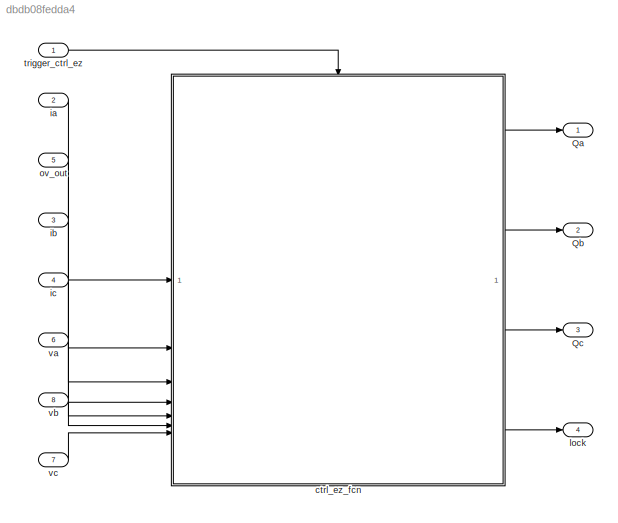
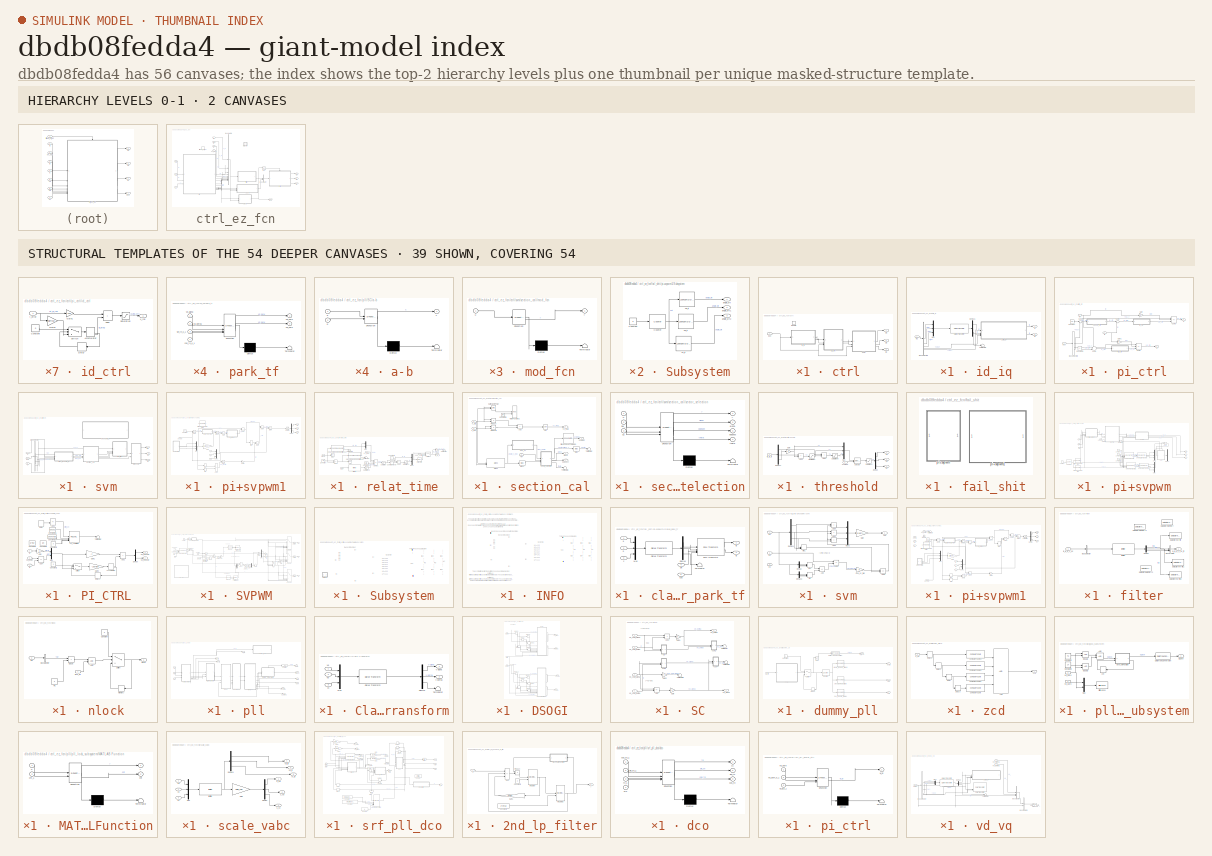
[diagram: thumbnail index - top-2 hierarchy levels (2 canvases) + 39 structural-template representatives of the remaining 54 canvases]
MODEL slx_dbdb08fedda4
KIND model
CONFIG AbsTol = auto
CONFIG EnableMultiTasking = on
CONFIG FixedStep = auto
CONFIG InitFcn = fidelity_pfc_vals;\nwl=2*pi*50*150e-6;\n\ngain_vac=1/(220*sqrt(2));\nkpd = 5;\nkpq = 5;\n\n\nkid   =  1e2;\nkiq   =  1e2;\n\nkpvdc = .3;\nkivdc =  .001;\n\n
CONFIG MaxStep = auto
CONFIG MinStep = auto
CONFIG RelTol = 1e-3
CONFIG SampleTimeConstraint = Unconstrained
CONFIG SolverName = FixedStepAuto
CONFIG StartTime = 0.0
CONFIG StopTime = 10.0
BLOCK [Outport] Qa
  PortDimensions = 1
BLOCK [Outport] Qb
  Port = 2
BLOCK [Outport] Qc
  Port = 3
BLOCK [SubSystem] ctrl_ez_fcn
  RTWFcnNameOpts = Use subsystem name
  RTWFileNameOpts = Use subsystem name
  RTWMemSecFuncExecute = Default
  RTWMemSecFuncInitTerm = Default
  RTWSystemCode = Inline
BLOCK [BusCreator] ctrl_ez_fcn/Bus Creator
  DisplayOption = bar
  InheritFromInputs = on
  Inputs = 2
BLOCK [BusCreator] ctrl_ez_fcn/Bus Creator1
  DisplayOption = bar
  InheritFromInputs = on
  Inputs = 10
BLOCK [Logic] ctrl_ez_fcn/NOT
  AllPortsSameDT = off
  IconShape = distinctive
  Operator = NOT
  OutDataTypeStr = boolean
BLOCK [Outport] ctrl_ez_fcn/Qa
  SignalType = real
  VarSizeSig = No
BLOCK [Outport] ctrl_ez_fcn/Qb
  Port = 2
  SignalType = real
  VarSizeSig = No
BLOCK [Outport] ctrl_ez_fcn/Qc
  Port = 3
  SignalType = real
  VarSizeSig = No
BLOCK [SubSystem] ctrl_ez_fcn/ctrl
  TreatAsAtomicUnit = on
BLOCK [EnablePort] ctrl_ez_fcn/ctrl/Enable
BLOCK [Outport] ctrl_ez_fcn/ctrl/Qa
BLOCK [Outport] ctrl_ez_fcn/ctrl/Qb
  Port = 2
BLOCK [Outport] ctrl_ez_fcn/ctrl/Qc
  Port = 3
BLOCK [Inport] ctrl_ez_fcn/ctrl/bus
BLOCK [SubSystem] ctrl_ez_fcn/ctrl/id_iq
BLOCK [BusSelector] ctrl_ez_fcn/ctrl/id_iq/Bus Selector1
  OutputSignals = signal1.flt_ia,signal1.flt_ib,signal1.flt_ic,signal2.signal2.cos,signal2.signal2.sine
BLOCK [Reference] ctrl_ez_fcn/ctrl/id_iq/Clarke Transform  REF=mcbcontrolslib/Clarke Transform
  LibrarySourceBlock = mcbhdllib/Controls/Math Transforms/Clarke Transform
  NameLocation = left
  SourceBlock = mcbcontrolslib/Clarke Transform
  SourceType = Clarke Transform
BLOCK [Demux] ctrl_ez_fcn/ctrl/id_iq/Demux1
  Outputs = 3
BLOCK [Inport] ctrl_ez_fcn/ctrl/id_iq/In3
BLOCK [Mux] ctrl_ez_fcn/ctrl/id_iq/Mux
  DisplayOption = bar
  Inputs = 3
BLOCK [Terminator] ctrl_ez_fcn/ctrl/id_iq/Terminator1
BLOCK [Outport] ctrl_ez_fcn/ctrl/id_iq/id
BLOCK [Outport] ctrl_ez_fcn/ctrl/id_iq/iq
  Port = 2
BLOCK [SubSystem] ctrl_ez_fcn/ctrl/id_iq/park_tf
  ErrorFcn = Stateflow.Translate.translate
  LibrarySourceBlock = simulink/User-Defined\nFunctions/MATLAB Function
  PermitHierarchicalResolution = ExplicitOnly
  SFBlockType = MATLAB Function
  TreatAsAtomicUnit = on
  VariantControl = false()
BLOCK [Demux] ctrl_ez_fcn/ctrl/id_iq/park_tf/ Demux 
  Outputs = 1
BLOCK [S-Function] ctrl_ez_fcn/ctrl/id_iq/park_tf/ SFunction 
  EnableBusSupport = on
  FunctionName = sf_sfun
  PortCounts = [4 3]
  SFcnIsStateOwnerBlock = off
  SFunctionDeploymentMode = off
  Tag = Stateflow S-Function 3
BLOCK [Terminator] ctrl_ez_fcn/ctrl/id_iq/park_tf/ Terminator 
BLOCK [Inport] ctrl_ez_fcn/ctrl/id_iq/park_tf/cos_th_k_1
  Port = 4
BLOCK [Inport] ctrl_ez_fcn/ctrl/id_iq/park_tf/sin_th_k_1
  Port = 3
BLOCK [Outport] ctrl_ez_fcn/ctrl/id_iq/park_tf/vd_park
BLOCK [Inport] ctrl_ez_fcn/ctrl/id_iq/park_tf/vp_alpha
BLOCK [Inport] ctrl_ez_fcn/ctrl/id_iq/park_tf/vp_betha
  Port = 2
BLOCK [Outport] ctrl_ez_fcn/ctrl/id_iq/park_tf/vq_park
  Port = 2
BLOCK [SubSystem] ctrl_ez_fcn/ctrl/pi_ctrl
BLOCK [BusSelector] ctrl_ez_fcn/ctrl/pi_ctrl/Bus Selector2
  OutputSignals = signal2.signal1.vd_,signal2.signal1.vq_,signal2.signal2.vdc
BLOCK [Constant] ctrl_ez_fcn/ctrl/pi_ctrl/Constant
  OutDataTypeStr = single
  SampleTime = -1
  Value = 650
BLOCK [Constant] ctrl_ez_fcn/ctrl/pi_ctrl/Constant1
  OutDataTypeStr = single
  SampleTime = -1
  Value = 0
BLOCK [Gain] ctrl_ez_fcn/ctrl/pi_ctrl/Gain
  Gain = wl
BLOCK [Gain] ctrl_ez_fcn/ctrl/pi_ctrl/Gain1
  Gain = wl
BLOCK [Sum] ctrl_ez_fcn/ctrl/pi_ctrl/Sum1
  Inputs = |+-
BLOCK [Sum] ctrl_ez_fcn/ctrl/pi_ctrl/Sum2
  Inputs = |+-
BLOCK [Sum] ctrl_ez_fcn/ctrl/pi_ctrl/Sum3
  IconShape = rectangular
  Inputs = ++-
BLOCK [Sum] ctrl_ez_fcn/ctrl/pi_ctrl/Sum4
  Inputs = -|+||
BLOCK [Sum] ctrl_ez_fcn/ctrl/pi_ctrl/Sum5
  IconShape = rectangular
  Inputs = +--
BLOCK [Inport] ctrl_ez_fcn/ctrl/pi_ctrl/bus
  Port = 3
BLOCK [Outport] ctrl_ez_fcn/ctrl/pi_ctrl/d
BLOCK [Inport] ctrl_ez_fcn/ctrl/pi_ctrl/id
BLOCK [SubSystem] ctrl_ez_fcn/ctrl/pi_ctrl/id_ctrl
  SystemSampleTime = tsw
BLOCK [DiscreteIntegrator] ctrl_ez_fcn/ctrl/pi_ctrl/id_ctrl/Accumulator
  ICPrevOutput = DiscIntNeverNeededParam
  ICPrevScaledInput = DiscIntNeverNeededParam
  InitialConditionSetting = Auto
  IntegratorMethod = Accumulation: Backward Euler
  LimitOutput = on
  LowerSaturationLimit = -100
  SampleTime = -1
  ShowSaturationPort = on
  UpperSaturationLimit = 100
  gainval = 1
BLOCK [Sum] ctrl_ez_fcn/ctrl/pi_ctrl/id_ctrl/Add2
  IconShape = rectangular
BLOCK [Constant] ctrl_ez_fcn/ctrl/pi_ctrl/id_ctrl/Constant
  OutDataTypeStr = single
  SampleTime = -1
  Value = 0
BLOCK [Delay] ctrl_ez_fcn/ctrl/pi_ctrl/id_ctrl/Delay
  InputPortMap = u0
  NameLocation = top
BLOCK [Gain] ctrl_ez_fcn/ctrl/pi_ctrl/id_ctrl/Gain1
  Gain = kpd
  OutDataTypeStr = single
BLOCK [Gain] ctrl_ez_fcn/ctrl/pi_ctrl/id_ctrl/Gain2
  Gain = kid*tsw
  OutDataTypeStr = single
BLOCK [Saturate] ctrl_ez_fcn/ctrl/pi_ctrl/id_ctrl/Saturation
  Commented = through
  LowerLimit = -500
  UpperLimit = 350
BLOCK [Switch] ctrl_ez_fcn/ctrl/pi_ctrl/id_ctrl/Switch
  Criteria = u2 > Threshold
  InputSameDT = off
  SaturateOnIntegerOverflow = off
BLOCK [Inport] ctrl_ez_fcn/ctrl/pi_ctrl/id_ctrl/i_error
  OutDataTypeStr = single
BLOCK [Outport] ctrl_ez_fcn/ctrl/pi_ctrl/id_ctrl/v_ind
BLOCK [Inport] ctrl_ez_fcn/ctrl/pi_ctrl/iq
  Port = 2
BLOCK [SubSystem] ctrl_ez_fcn/ctrl/pi_ctrl/iq_ctrl
  SystemSampleTime = tsw
BLOCK [DiscreteIntegrator] ctrl_ez_fcn/ctrl/pi_ctrl/iq_ctrl/Accumulator
  ExternalReset = rising
  ICPrevOutput = DiscIntNeverNeededParam
  ICPrevScaledInput = DiscIntNeverNeededParam
  InitialConditionSetting = Auto
  IntegratorMethod = Accumulation: Backward Euler
  LimitOutput = on
  LowerSaturationLimit = -500
  SampleTime = -1
  ShowSaturationPort = on
  UpperSaturationLimit = 500
BLOCK [Sum] ctrl_ez_fcn/ctrl/pi_ctrl/iq_ctrl/Add2
  IconShape = rectangular
BLOCK [Constant] ctrl_ez_fcn/ctrl/pi_ctrl/iq_ctrl/Constant1
  OutDataTypeStr = single
  SampleTime = -1
  Value = 0
BLOCK [Delay] ctrl_ez_fcn/ctrl/pi_ctrl/iq_ctrl/Delay1
  DelayLength = 1
  InputPortMap = u0
  InputProcessing = Columns as channels (frame based)
  NameLocation = top
BLOCK [Gain] ctrl_ez_fcn/ctrl/pi_ctrl/iq_ctrl/Gain1
  Gain = kpq
  OutDataTypeStr = single
BLOCK [Gain] ctrl_ez_fcn/ctrl/pi_ctrl/iq_ctrl/Gain2
  Gain = kiq*tsw
  OutDataTypeStr = single
BLOCK [Saturate] ctrl_ez_fcn/ctrl/pi_ctrl/iq_ctrl/Saturation
  Commented = through
  LowerLimit = -5
  UpperLimit = 5
BLOCK [Switch] ctrl_ez_fcn/ctrl/pi_ctrl/iq_ctrl/Switch
  Criteria = u2 > Threshold
  InputSameDT = off
  SaturateOnIntegerOverflow = off
BLOCK [Inport] ctrl_ez_fcn/ctrl/pi_ctrl/iq_ctrl/i_error
  OutDataTypeStr = single
BLOCK [Outport] ctrl_ez_fcn/ctrl/pi_ctrl/iq_ctrl/v_ind
BLOCK [Outport] ctrl_ez_fcn/ctrl/pi_ctrl/q
  Port = 2
BLOCK [SubSystem] ctrl_ez_fcn/ctrl/pi_ctrl/speed_ctrl
  SystemSampleTime = tsw
BLOCK [DiscreteIntegrator] ctrl_ez_fcn/ctrl/pi_ctrl/speed_ctrl/Accumulator
  ICPrevOutput = DiscIntNeverNeededParam
  ICPrevScaledInput = DiscIntNeverNeededParam
  InitialConditionSetting = Auto
  IntegratorMethod = Accumulation: Forward Euler
  LimitOutput = on
  LowerSaturationLimit = -50
  SampleTime = -1
  ShowSaturationPort = on
  UpperSaturationLimit = 50
BLOCK [Sum] ctrl_ez_fcn/ctrl/pi_ctrl/speed_ctrl/Add2
  IconShape = rectangular
BLOCK [Constant] ctrl_ez_fcn/ctrl/pi_ctrl/speed_ctrl/Constant1
  OutDataTypeStr = single
  SampleTime = -1
  Value = 0
BLOCK [Delay] ctrl_ez_fcn/ctrl/pi_ctrl/speed_ctrl/Delay1
  DelayLength = 1
  InputPortMap = u0
  InputProcessing = Columns as channels (frame based)
  NameLocation = top
BLOCK [Gain] ctrl_ez_fcn/ctrl/pi_ctrl/speed_ctrl/Gain1
  Gain = kpvdc
  OutDataTypeStr = single
BLOCK [Gain] ctrl_ez_fcn/ctrl/pi_ctrl/speed_ctrl/Gain2
  Gain = kivdc
  OutDataTypeStr = single
BLOCK [Outport] ctrl_ez_fcn/ctrl/pi_ctrl/speed_ctrl/I_D_CTRL_VDC
BLOCK [Saturate] ctrl_ez_fcn/ctrl/pi_ctrl/speed_ctrl/Saturation
  LowerLimit = -50
  UpperLimit = 50
BLOCK [Switch] ctrl_ez_fcn/ctrl/pi_ctrl/speed_ctrl/Switch
  Criteria = u2 > Threshold
  InputSameDT = off
  SaturateOnIntegerOverflow = off
BLOCK [Inport] ctrl_ez_fcn/ctrl/pi_ctrl/speed_ctrl/i_error
  OutDataTypeStr = single
BLOCK [SubSystem] ctrl_ez_fcn/ctrl/svm
BLOCK [BusSelector] ctrl_ez_fcn/ctrl/svm/Bus Selector
  OutputSignals = signal2.signal2.cos,signal2.signal2.sine,signal2.signal2.w,signal2.signal2.vdc
BLOCK [Outport] ctrl_ez_fcn/ctrl/svm/Qa
BLOCK [Outport] ctrl_ez_fcn/ctrl/svm/Qb
  Port = 2
BLOCK [Outport] ctrl_ez_fcn/ctrl/svm/Qc
  Port = 3
BLOCK [Inport] ctrl_ez_fcn/ctrl/svm/bus
  Port = 3
BLOCK [Inport] ctrl_ez_fcn/ctrl/svm/d
BLOCK [SubSystem] ctrl_ez_fcn/ctrl/svm/mine_invpark_tf
  ErrorFcn = Stateflow.Translate.translate
  LibrarySourceBlock = simulink/User-Defined\nFunctions/MATLAB Function
  PermitHierarchicalResolution = ExplicitOnly
  SFBlockType = MATLAB Function
  TreatAsAtomicUnit = on
  VariantControl = false()
BLOCK [Demux] ctrl_ez_fcn/ctrl/svm/mine_invpark_tf/ Demux 
  Outputs = 1
BLOCK [S-Function] ctrl_ez_fcn/ctrl/svm/mine_invpark_tf/ SFunction 
  EnableBusSupport = on
  FunctionName = sf_sfun
  PortCounts = [4 3]
  SFcnIsStateOwnerBlock = off
  SFunctionDeploymentMode = off
  Tag = Stateflow S-Function 4
BLOCK [Terminator] ctrl_ez_fcn/ctrl/svm/mine_invpark_tf/ Terminator 
BLOCK [Inport] ctrl_ez_fcn/ctrl/svm/mine_invpark_tf/cos_th_k_1
  Port = 4
BLOCK [Inport] ctrl_ez_fcn/ctrl/svm/mine_invpark_tf/sin_th_k_1
  Port = 3
BLOCK [Inport] ctrl_ez_fcn/ctrl/svm/mine_invpark_tf/vd_park
BLOCK [Outport] ctrl_ez_fcn/ctrl/svm/mine_invpark_tf/vp_alpha
BLOCK [Outport] ctrl_ez_fcn/ctrl/svm/mine_invpark_tf/vp_betha
  Port = 2
BLOCK [Inport] ctrl_ez_fcn/ctrl/svm/mine_invpark_tf/vq_park
  Port = 2
BLOCK [SubSystem] ctrl_ez_fcn/ctrl/svm/pi+svpwm1
  Commented = on
BLOCK [Sum] ctrl_ez_fcn/ctrl/svm/pi+svpwm1/Add
  IconShape = rectangular
  Inputs = +-
BLOCK [Sum] ctrl_ez_fcn/ctrl/svm/pi+svpwm1/Add1
  IconShape = rectangular
  Inputs = +-
BLOCK [Sum] ctrl_ez_fcn/ctrl/svm/pi+svpwm1/Add2
  IconShape = rectangular
  Inputs = +-
BLOCK [Sum] ctrl_ez_fcn/ctrl/svm/pi+svpwm1/Add3
  IconShape = rectangular
  Inputs = +-
BLOCK [Sum] ctrl_ez_fcn/ctrl/svm/pi+svpwm1/Add4
  IconShape = rectangular
  Inputs = +-
BLOCK [Sum] ctrl_ez_fcn/ctrl/svm/pi+svpwm1/Add5
  IconShape = rectangular
  Inputs = +-
BLOCK [Sum] ctrl_ez_fcn/ctrl/svm/pi+svpwm1/Add6
  IconShape = rectangular
  Inputs = +-
BLOCK [Constant] ctrl_ez_fcn/ctrl/svm/pi+svpwm1/Constant1
  OutDataTypeStr = single
  SampleTime = -1
  Value = 650
  VectorParams1D = off
BLOCK [Demux] ctrl_ez_fcn/ctrl/svm/pi+svpwm1/Demux
  Outputs = 3
BLOCK [LookupNDDirect] ctrl_ez_fcn/ctrl/svm/pi+svpwm1/Direct Lookup Table (n-D)2
  Commented = on
  NumberOfTableDimensions = 1
  RemoveProtectionInput = on
  Table = single(cos_th);
  TableDataTypeStr = single
BLOCK [Product] ctrl_ez_fcn/ctrl/svm/pi+svpwm1/Divide
  Inputs = */
BLOCK [Gain] ctrl_ez_fcn/ctrl/svm/pi+svpwm1/Gain
  Gain = 1/(230*sqrt(2))
BLOCK [Gain] ctrl_ez_fcn/ctrl/svm/pi+svpwm1/Gain1
  Gain = .5
BLOCK [SubSystem] ctrl_ez_fcn/ctrl/svm/pi+svpwm1/I_SET_PI_CTRL
  SystemSampleTime = tsw
BLOCK [DiscreteIntegrator] ctrl_ez_fcn/ctrl/svm/pi+svpwm1/I_SET_PI_CTRL/Accumulator
  ICPrevOutput = DiscIntNeverNeededParam
  ICPrevScaledInput = DiscIntNeverNeededParam
  InitialConditionSetting = Auto
  IntegratorMethod = Accumulation: Forward Euler
  LimitOutput = on
  LowerSaturationLimit = -50
  SampleTime = -1
  ShowSaturationPort = on
  UpperSaturationLimit = 50
BLOCK [Sum] ctrl_ez_fcn/ctrl/svm/pi+svpwm1/I_SET_PI_CTRL/Add2
  IconShape = rectangular
BLOCK [Constant] ctrl_ez_fcn/ctrl/svm/pi+svpwm1/I_SET_PI_CTRL/Constant1
  OutDataTypeStr = single
  SampleTime = -1
  Value = 0
BLOCK [Delay] ctrl_ez_fcn/ctrl/svm/pi+svpwm1/I_SET_PI_CTRL/Delay1
  DelayLength = 1
  InputPortMap = u0
  InputProcessing = Columns as channels (frame based)
  NameLocation = top
BLOCK [Gain] ctrl_ez_fcn/ctrl/svm/pi+svpwm1/I_SET_PI_CTRL/Gain1
  Gain = 1/30
  OutDataTypeStr = single
BLOCK [Gain] ctrl_ez_fcn/ctrl/svm/pi+svpwm1/I_SET_PI_CTRL/Gain2
  Gain = 0
  OutDataTypeStr = single
BLOCK [Saturate] ctrl_ez_fcn/ctrl/svm/pi+svpwm1/I_SET_PI_CTRL/Saturation
  LowerLimit = -30
  UpperLimit = 30
BLOCK [Switch] ctrl_ez_fcn/ctrl/svm/pi+svpwm1/I_SET_PI_CTRL/Switch
  Criteria = u2 > Threshold
  InputSameDT = off
  SaturateOnIntegerOverflow = off
BLOCK [Outport] ctrl_ez_fcn/ctrl/svm/pi+svpwm1/I_SET_PI_CTRL/i_set
BLOCK [Inport] ctrl_ez_fcn/ctrl/svm/pi+svpwm1/I_SET_PI_CTRL/v_dc_error
  OutDataTypeStr = single
BLOCK [MinMax] ctrl_ez_fcn/ctrl/svm/pi+svpwm1/Max
  Function = max
BLOCK [MinMax] ctrl_ez_fcn/ctrl/svm/pi+svpwm1/Min
BLOCK [MinMax] ctrl_ez_fcn/ctrl/svm/pi+svpwm1/Min1
BLOCK [Mux] ctrl_ez_fcn/ctrl/svm/pi+svpwm1/Mux
  DisplayOption = bar
  Inputs = 3
BLOCK [Mux] ctrl_ez_fcn/ctrl/svm/pi+svpwm1/Mux1
  DisplayOption = bar
  Inputs = 3
BLOCK [SubSystem] ctrl_ez_fcn/ctrl/svm/pi+svpwm1/PI_CTRL
  SystemSampleTime = tsw
BLOCK [DiscreteIntegrator] ctrl_ez_fcn/ctrl/svm/pi+svpwm1/PI_CTRL/Accumulator
  ICPrevOutput = DiscIntNeverNeededParam
  ICPrevScaledInput = DiscIntNeverNeededParam
  InitialConditionSetting = Auto
  IntegratorMethod = Accumulation: Forward Euler
  LimitOutput = on
  LowerSaturationLimit = -50
  SampleTime = -1
  ShowSaturationPort = on
  UpperSaturationLimit = 50
BLOCK [Sum] ctrl_ez_fcn/ctrl/svm/pi+svpwm1/PI_CTRL/Add2
  IconShape = rectangular
BLOCK [Constant] ctrl_ez_fcn/ctrl/svm/pi+svpwm1/PI_CTRL/Constant1
  OutDataTypeStr = single
  SampleTime = -1
  Value = 0
BLOCK [Delay] ctrl_ez_fcn/ctrl/svm/pi+svpwm1/PI_CTRL/Delay1
  DelayLength = 1
  InputPortMap = u0
  InputProcessing = Columns as channels (frame based)
  NameLocation = top
BLOCK [Gain] ctrl_ez_fcn/ctrl/svm/pi+svpwm1/PI_CTRL/Gain1
  Gain = 100
  OutDataTypeStr = single
BLOCK [Gain] ctrl_ez_fcn/ctrl/svm/pi+svpwm1/PI_CTRL/Gain2
  Gain = 0
  OutDataTypeStr = single
BLOCK [Saturate] ctrl_ez_fcn/ctrl/svm/pi+svpwm1/PI_CTRL/Saturation
  Commented = through
  LowerLimit = -300
  UpperLimit = 300
BLOCK [Switch] ctrl_ez_fcn/ctrl/svm/pi+svpwm1/PI_CTRL/Switch
  Criteria = u2 > Threshold
  InputSameDT = off
  SaturateOnIntegerOverflow = off
BLOCK [Inport] ctrl_ez_fcn/ctrl/svm/pi+svpwm1/PI_CTRL/i_error
  OutDataTypeStr = single
BLOCK [Outport] ctrl_ez_fcn/ctrl/svm/pi+svpwm1/PI_CTRL/v_ind
BLOCK [Product] ctrl_ez_fcn/ctrl/svm/pi+svpwm1/Product
BLOCK [Outport] ctrl_ez_fcn/ctrl/svm/pi+svpwm1/Qa
BLOCK [Outport] ctrl_ez_fcn/ctrl/svm/pi+svpwm1/Qb
  Port = 2
BLOCK [Outport] ctrl_ez_fcn/ctrl/svm/pi+svpwm1/Qc
  Port = 3
BLOCK [Saturate] ctrl_ez_fcn/ctrl/svm/pi+svpwm1/Saturation
  LowerLimit = .03
  UpperLimit = .97
BLOCK [SubSystem] ctrl_ez_fcn/ctrl/svm/pi+svpwm1/Subsystem
BLOCK [Constant] ctrl_ez_fcn/ctrl/svm/pi+svpwm1/Subsystem/Constant
  SampleTime = -1
  Value = 0
BLOCK [Reference] ctrl_ez_fcn/ctrl/svm/pi+svpwm1/Subsystem/Counter  REF=dspswit3/Counter
  SourceBlock = dspswit3/Counter
  SourceType = Counter
BLOCK [Outport] ctrl_ez_fcn/ctrl/svm/pi+svpwm1/Subsystem/angle_wt
BLOCK [Outport] ctrl_ez_fcn/ctrl/svm/pi+svpwm1/Subsystem/angle_wt1
  Port = 2
BLOCK [Outport] ctrl_ez_fcn/ctrl/svm/pi+svpwm1/Subsystem/angle_wt2
  Port = 3
BLOCK [LookupNDDirect] ctrl_ez_fcn/ctrl/svm/pi+svpwm1/Subsystem/va_lt
  NumberOfTableDimensions = 1
  RemoveProtectionInput = on
  Table = single(sin_th*230*sqrt(2));
  TableDataTypeStr = single
BLOCK [LookupNDDirect] ctrl_ez_fcn/ctrl/svm/pi+svpwm1/Subsystem/vb_lt
  NameLocation = right
  NumberOfTableDimensions = 1
  RemoveProtectionInput = on
  Table = single(sin_th_vb*230*sqrt(2));
  TableDataTypeStr = single
BLOCK [LookupNDDirect] ctrl_ez_fcn/ctrl/svm/pi+svpwm1/Subsystem/vc_lt
  NumberOfTableDimensions = 1
  RemoveProtectionInput = on
  Table = single(sin_th_vc*230*sqrt(2));
  TableDataTypeStr = single
BLOCK [Inport] ctrl_ez_fcn/ctrl/svm/pi+svpwm1/a
BLOCK [Inport] ctrl_ez_fcn/ctrl/svm/pi+svpwm1/b
  Port = 2
BLOCK [Inport] ctrl_ez_fcn/ctrl/svm/pi+svpwm1/c
  Port = 3
BLOCK [Inport] ctrl_ez_fcn/ctrl/svm/pi+svpwm1/ov_out
  Port = 4
BLOCK [Inport] ctrl_ez_fcn/ctrl/svm/q
  Port = 2
BLOCK [SubSystem] ctrl_ez_fcn/ctrl/svm/relat_time
BLOCK [Sum] ctrl_ez_fcn/ctrl/svm/relat_time/Add1
  IconShape = rectangular
  Inputs = +-
BLOCK [Sum] ctrl_ez_fcn/ctrl/svm/relat_time/Add2
  IconShape = rectangular
  Inputs = +-
BLOCK [Constant] ctrl_ez_fcn/ctrl/svm/relat_time/Constant
  OutDataTypeStr = single
  SampleTime = -1
  Value = pi/3
  VectorParams1D = off
BLOCK [Constant] ctrl_ez_fcn/ctrl/svm/relat_time/Constant1
  OutDataTypeStr = single
  SampleTime = -1
  Value = sqrt(3)
  VectorParams1D = off
BLOCK [Constant] ctrl_ez_fcn/ctrl/svm/relat_time/Constant2
  OutDataTypeStr = single
  SampleTime = -1
  VectorParams1D = off
BLOCK [Product] ctrl_ez_fcn/ctrl/svm/relat_time/Divide1
  Inputs = ***/
BLOCK [Gain] ctrl_ez_fcn/ctrl/svm/relat_time/Gain
  Gain = tsw
BLOCK [Reference] ctrl_ez_fcn/ctrl/svm/relat_time/IIR Filter  REF=mcbcontrolslib/IIR Filter
  LibrarySourceBlock = mcbhdllib/Signal Management/IIR Filter
  SourceBlock = mcbcontrolslib/IIR Filter
  SourceType = IIR Filter
BLOCK [Mux] ctrl_ez_fcn/ctrl/svm/relat_time/Mux
  DisplayOption = bar
  Inputs = 2
BLOCK [Mux] ctrl_ez_fcn/ctrl/svm/relat_time/Mux1
  DisplayOption = bar
  Inputs = 2
BLOCK [Saturate] ctrl_ez_fcn/ctrl/svm/relat_time/Saturation
  LowerLimit = 0
  UpperLimit = 1
BLOCK [Saturate] ctrl_ez_fcn/ctrl/svm/relat_time/Saturation2
  LowerLimit = 0
  UpperLimit = 1
BLOCK [Saturate] ctrl_ez_fcn/ctrl/svm/relat_time/Saturation3
  LowerLimit = 100
  UpperLimit = 2000
BLOCK [Selector] ctrl_ez_fcn/ctrl/svm/relat_time/Selector1
  IndexOptions = Index vector (dialog)
  Indices = [2 1 3]
  InputPortWidth = 3
  OutputSizes = 1
BLOCK [Trigonometry] ctrl_ez_fcn/ctrl/svm/relat_time/Sin
  Commented = on
BLOCK [Trigonometry] ctrl_ez_fcn/ctrl/svm/relat_time/Sin1
  Commented = on
BLOCK [Reference] ctrl_ez_fcn/ctrl/svm/relat_time/SinCos Embedded Optimized  REF=mcbcontrolslib/SinCos Embedded Optimized
  LibrarySourceBlock = mcblib/Controls/Math Transforms/SinCos Embedded Optimized
  SourceBlock = mcbcontrolslib/SinCos Embedded Optimized
  SourceType = SinCos Embedded Optimized
BLOCK [Reference] ctrl_ez_fcn/ctrl/svm/relat_time/SinCos Embedded Optimized1  REF=mcbcontrolslib/SinCos Embedded Optimized
  LibrarySourceBlock = mcblib/Controls/Math Transforms/SinCos Embedded Optimized
  SourceBlock = mcbcontrolslib/SinCos Embedded Optimized
  SourceType = SinCos Embedded Optimized
BLOCK [Sum] ctrl_ez_fcn/ctrl/svm/relat_time/Sum of Elements
  IconShape = rectangular
  Inputs = +
BLOCK [Switch] ctrl_ez_fcn/ctrl/svm/relat_time/Switch
  Criteria = u2 > Threshold
  InputSameDT = off
  SaturateOnIntegerOverflow = off
BLOCK [Terminator] ctrl_ez_fcn/ctrl/svm/relat_time/Terminator
BLOCK [Terminator] ctrl_ez_fcn/ctrl/svm/relat_time/Terminator1
BLOCK [Terminator] ctrl_ez_fcn/ctrl/svm/relat_time/Terminator2
BLOCK [Inport] ctrl_ez_fcn/ctrl/svm/relat_time/alpha
  Port = 2
BLOCK [Inport] ctrl_ez_fcn/ctrl/svm/relat_time/odd_section
  Port = 3
BLOCK [Outport] ctrl_ez_fcn/ctrl/svm/relat_time/ta_tb_t0
BLOCK [Inport] ctrl_ez_fcn/ctrl/svm/relat_time/vdc
BLOCK [Inport] ctrl_ez_fcn/ctrl/svm/relat_time/vs_mag
  Port = 4
BLOCK [SubSystem] ctrl_ez_fcn/ctrl/svm/section_cal
BLOCK [Inport] ctrl_ez_fcn/ctrl/svm/section_cal/<w>
BLOCK [Sum] ctrl_ez_fcn/ctrl/svm/section_cal/Add
  IconShape = rectangular
BLOCK [Bias] ctrl_ez_fcn/ctrl/svm/section_cal/Bias
  Bias = 1
  SaturateOnIntegerOverflow = off
BLOCK [Bias] ctrl_ez_fcn/ctrl/svm/section_cal/Bias1
  Bias = pi
  SaturateOnIntegerOverflow = off
BLOCK [Reference] ctrl_ez_fcn/ctrl/svm/section_cal/Cartesian to Polar  REF=simulink_extras/Transformations/Cartesian to
Polar
  Commented = on
  SourceBlock = simulink_extras/Transformations/Cartesian to\nPolar
  SourceType = Cart2Polar
BLOCK [Constant] ctrl_ez_fcn/ctrl/svm/section_cal/Constant3
  Commented = on
  NameLocation = top
  OutDataTypeStr = single
  SampleTime = -1
  Value = 2*pi
BLOCK [LookupNDDirect] ctrl_ez_fcn/ctrl/svm/section_cal/Direct Lookup Table (n-D)
  InputsSelectThisObjectFromTable = Vector
  RemoveProtectionInput = on
  Table = [3 2 1 1 2 3;2 3 3 2 1 1;1 1 2 3 3 2]
  TableDataTypeStr = single
BLOCK [Math] ctrl_ez_fcn/ctrl/svm/section_cal/Math Function2
  Commented = on
  Operator = mod
  OutputSignalType = real
  SignedPower = on
BLOCK [Product] ctrl_ez_fcn/ctrl/svm/section_cal/Product
BLOCK [Product] ctrl_ez_fcn/ctrl/svm/section_cal/Product1
BLOCK [Outport] ctrl_ez_fcn/ctrl/svm/section_cal/SA SB SC
  Port = 4
BLOCK [Sqrt] ctrl_ez_fcn/ctrl/svm/section_cal/Sqrt
  OutputSignalType = real
BLOCK [Terminator] ctrl_ez_fcn/ctrl/svm/section_cal/Terminator
BLOCK [Terminator] ctrl_ez_fcn/ctrl/svm/section_cal/Terminator1
BLOCK [Outport] ctrl_ez_fcn/ctrl/svm/section_cal/alpha
BLOCK [Reference] ctrl_ez_fcn/ctrl/svm/section_cal/atan2  REF=mcbcontrolslib/atan2
  LibrarySourceBlock = mcblib/Controls/Math Transforms/atan2
  SourceBlock = mcbcontrolslib/atan2
  SourceType = atan2
BLOCK [SubSystem] ctrl_ez_fcn/ctrl/svm/section_cal/mod_fcn
  ErrorFcn = Stateflow.Translate.translate
  PermitHierarchicalResolution = ExplicitOnly
  SFBlockType = MATLAB Function
  TreatAsAtomicUnit = on
BLOCK [Demux] ctrl_ez_fcn/ctrl/svm/section_cal/mod_fcn/ Demux 
  Outputs = 1
BLOCK [S-Function] ctrl_ez_fcn/ctrl/svm/section_cal/mod_fcn/ SFunction 
  EnableBusSupport = on
  FunctionName = sf_sfun
  PortCounts = [1 2]
  SFcnIsStateOwnerBlock = off
  SFunctionDeploymentMode = off
  Tag = Stateflow S-Function 5
BLOCK [Terminator] ctrl_ez_fcn/ctrl/svm/section_cal/mod_fcn/ Terminator 
BLOCK [Inport] ctrl_ez_fcn/ctrl/svm/section_cal/mod_fcn/u
BLOCK [Outport] ctrl_ez_fcn/ctrl/svm/section_cal/mod_fcn/y
BLOCK [Outport] ctrl_ez_fcn/ctrl/svm/section_cal/oddsect
  Port = 2
BLOCK [SubSystem] ctrl_ez_fcn/ctrl/svm/section_cal/sector_selection
  ErrorFcn = Stateflow.Translate.translate
  PermitHierarchicalResolution = ExplicitOnly
  SFBlockType = MATLAB Function
  TreatAsAtomicUnit = on
BLOCK [Demux] ctrl_ez_fcn/ctrl/svm/section_cal/sector_selection/ Demux 
  Outputs = 1
BLOCK [S-Function] ctrl_ez_fcn/ctrl/svm/section_cal/sector_selection/ SFunction 
  EnableBusSupport = on
  FunctionName = sf_sfun
  PortCounts = [3 5]
  SFcnIsStateOwnerBlock = off
  SFunctionDeploymentMode = off
  Tag = Stateflow S-Function 1
BLOCK [Terminator] ctrl_ez_fcn/ctrl/svm/section_cal/sector_selection/ Terminator 
BLOCK [Outport] ctrl_ez_fcn/ctrl/svm/section_cal/sector_selection/alpha
  Port = 2
BLOCK [Inport] ctrl_ez_fcn/ctrl/svm/section_cal/sector_selection/aw_
  Port = 2
BLOCK [Outport] ctrl_ez_fcn/ctrl/svm/section_cal/sector_selection/oddsect
  Port = 3
BLOCK [Outport] ctrl_ez_fcn/ctrl/svm/section_cal/sector_selection/theta
  Port = 4
BLOCK [Inport] ctrl_ez_fcn/ctrl/svm/section_cal/sector_selection/u
BLOCK [Inport] ctrl_ez_fcn/ctrl/svm/section_cal/sector_selection/u2
  Port = 3
BLOCK [Outport] ctrl_ez_fcn/ctrl/svm/section_cal/sector_selection/y
BLOCK [Inport] ctrl_ez_fcn/ctrl/svm/section_cal/v_alp
  Port = 2
BLOCK [Inport] ctrl_ez_fcn/ctrl/svm/section_cal/v_bet
  Port = 3
BLOCK [Outport] ctrl_ez_fcn/ctrl/svm/section_cal/vs_mag
  Port = 3
BLOCK [SubSystem] ctrl_ez_fcn/ctrl/svm/threshold
BLOCK [Sum] ctrl_ez_fcn/ctrl/svm/threshold/Add3
  IconShape = rectangular
BLOCK [Sum] ctrl_ez_fcn/ctrl/svm/threshold/Add4
  IconShape = rectangular
BLOCK [Demux] ctrl_ez_fcn/ctrl/svm/threshold/Demux
  Outputs = 3
BLOCK [Demux] ctrl_ez_fcn/ctrl/svm/threshold/Demux1
  Outputs = 3
BLOCK [Gain] ctrl_ez_fcn/ctrl/svm/threshold/Gain
  Gain = .5
BLOCK [Mux] ctrl_ez_fcn/ctrl/svm/threshold/Mux
  DisplayOption = signals
  Inputs = 3
BLOCK [Inport] ctrl_ez_fcn/ctrl/svm/threshold/SA SB SC
  Port = 2
BLOCK [Saturate] ctrl_ez_fcn/ctrl/svm/threshold/Saturation1
  LowerLimit = .03
  UpperLimit = .97
BLOCK [Saturate] ctrl_ez_fcn/ctrl/svm/threshold/Saturation4
  LowerLimit = 0
  UpperLimit = 1
BLOCK [Saturate] ctrl_ez_fcn/ctrl/svm/threshold/Saturation5
  LowerLimit = 0
  UpperLimit = 1
BLOCK [Selector] ctrl_ez_fcn/ctrl/svm/threshold/Selector
  IndexOptions = Index vector (port)
  Indices = [1 3]
  InputPortWidth = 3
  OutputSizes = 1
BLOCK [Outport] ctrl_ez_fcn/ctrl/svm/threshold/qa
BLOCK [Outport] ctrl_ez_fcn/ctrl/svm/threshold/qb
  Port = 2
BLOCK [Outport] ctrl_ez_fcn/ctrl/svm/threshold/qc
  Port = 3
BLOCK [Inport] ctrl_ez_fcn/ctrl/svm/threshold/ta_tb_t0
BLOCK [SubSystem] ctrl_ez_fcn/fail_shit
BLOCK [SubSystem] ctrl_ez_fcn/fail_shit/pi+svpwm
  Commented = on
BLOCK [Sum] ctrl_ez_fcn/fail_shit/pi+svpwm/Add1
  IconShape = rectangular
  Inputs = +-
BLOCK [Constant] ctrl_ez_fcn/fail_shit/pi+svpwm/Constant
  SampleTime = -1
  Value = 0
BLOCK [Constant] ctrl_ez_fcn/fail_shit/pi+svpwm/Constant1
  Value = -10
BLOCK [Constant] ctrl_ez_fcn/fail_shit/pi+svpwm/Constant2
  Value = 0
BLOCK [Constant] ctrl_ez_fcn/fail_shit/pi+svpwm/Constant3
  Value = 70
BLOCK [Constant] ctrl_ez_fcn/fail_shit/pi+svpwm/Constant4
  Value = -30
BLOCK [Reference] ctrl_ez_fcn/fail_shit/pi+svpwm/Counter  REF=dspswit3/Counter
  SourceBlock = dspswit3/Counter
  SourceType = Counter
BLOCK [Demux] ctrl_ez_fcn/fail_shit/pi+svpwm/Demux1
  Outputs = 3
BLOCK [LookupNDDirect] ctrl_ez_fcn/fail_shit/pi+svpwm/Direct Lookup Table (n-D)1
  NumberOfTableDimensions = 1
  RemoveProtectionInput = on
  Table = single(sin_th);
  TableDataTypeStr = single
BLOCK [LookupNDDirect] ctrl_ez_fcn/fail_shit/pi+svpwm/Direct Lookup Table (n-D)2
  NumberOfTableDimensions = 1
  RemoveProtectionInput = on
  Table = single(cos_th);
  TableDataTypeStr = single
BLOCK [EnablePort] ctrl_ez_fcn/fail_shit/pi+svpwm/Enable
BLOCK [Reference] ctrl_ez_fcn/fail_shit/pi+svpwm/Inverse Clarke Transform  REF=mcbcontrolslib/Inverse Clarke Transform
  LibrarySourceBlock = mcbhdllib/Controls/Math Transforms/Inverse Clarke Transform
  SourceBlock = mcbcontrolslib/Inverse Clarke Transform
  SourceType = Inverse Clarke Transform
BLOCK [Reference] ctrl_ez_fcn/fail_shit/pi+svpwm/Inverse Clarke Transform1  REF=mcbcontrolslib/Inverse Clarke Transform
  LibrarySourceBlock = mcbhdllib/Controls/Math Transforms/Inverse Clarke Transform
  SourceBlock = mcbcontrolslib/Inverse Clarke Transform
  SourceType = Inverse Clarke Transform
BLOCK [Reference] ctrl_ez_fcn/fail_shit/pi+svpwm/Inverse Park Transform  REF=mcbcontrolslib/Inverse Park Transform
  LibrarySourceBlock = mcbhdllib/Controls/Math Transforms/Inverse Park Transform
  SourceBlock = mcbcontrolslib/Inverse Park Transform
  SourceType = Inverse Park Transform
BLOCK [Reference] ctrl_ez_fcn/fail_shit/pi+svpwm/Inverse Park Transform1  REF=mcbcontrolslib/Inverse Park Transform
  LibrarySourceBlock = mcbhdllib/Controls/Math Transforms/Inverse Park Transform
  SourceBlock = mcbcontrolslib/Inverse Park Transform
  SourceType = Inverse Park Transform
BLOCK [Mux] ctrl_ez_fcn/fail_shit/pi+svpwm/Mux1
  DisplayOption = bar
  Inputs = 3
BLOCK [Mux] ctrl_ez_fcn/fail_shit/pi+svpwm/Mux2
  DisplayOption = bar
  Inputs = 3
BLOCK [SubSystem] ctrl_ez_fcn/fail_shit/pi+svpwm/PI_CTRL
  SystemSampleTime = tsw
BLOCK [DiscreteIntegrator] ctrl_ez_fcn/fail_shit/pi+svpwm/PI_CTRL/Accumulator
  ICPrevOutput = DiscIntNeverNeededParam
  ICPrevScaledInput = DiscIntNeverNeededParam
  InitialConditionSetting = Auto
  IntegratorMethod = Accumulation: Forward Euler
  LimitOutput = on
  LowerSaturationLimit = -50
  SampleTime = -1
  ShowSaturationPort = on
  UpperSaturationLimit = 50
BLOCK [Sum] ctrl_ez_fcn/fail_shit/pi+svpwm/PI_CTRL/Add1
  Commented = on
  IconShape = rectangular
  Inputs = +-
BLOCK [Sum] ctrl_ez_fcn/fail_shit/pi+svpwm/PI_CTRL/Add2
  IconShape = rectangular
BLOCK [Sum] ctrl_ez_fcn/fail_shit/pi+svpwm/PI_CTRL/Add4
  IconShape = rectangular
  Inputs = +-
BLOCK [Constant] ctrl_ez_fcn/fail_shit/pi+svpwm/PI_CTRL/Constant1
  OutDataTypeStr = single
  SampleTime = -1
  Value = 0
BLOCK [Constant] ctrl_ez_fcn/fail_shit/pi+svpwm/PI_CTRL/Constant15
  Commented = on
  OutDataTypeStr = single
  SampleTime = -1
  Value = -0.06302
BLOCK [Constant] ctrl_ez_fcn/fail_shit/pi+svpwm/PI_CTRL/Constant16
  Commented = on
  OutDataTypeStr = single
  SampleTime = -1
  Value = -1.4546*tsw
BLOCK [Constant] ctrl_ez_fcn/fail_shit/pi+svpwm/PI_CTRL/Constant4
  OutDataTypeStr = single
  SampleTime = -1
  Value = 0
BLOCK [Constant] ctrl_ez_fcn/fail_shit/pi+svpwm/PI_CTRL/Constant8
  OutDataTypeStr = single
  SampleTime = -1
  Value = -.09
BLOCK [Constant] ctrl_ez_fcn/fail_shit/pi+svpwm/PI_CTRL/Constant9
  OutDataTypeStr = single
  SampleTime = -1
  Value = -5*tsw
BLOCK [Delay] ctrl_ez_fcn/fail_shit/pi+svpwm/PI_CTRL/Delay
  Commented = on
  DelayLength = 1
  InitialCondition = 580
  InputPortMap = u0
BLOCK [Delay] ctrl_ez_fcn/fail_shit/pi+svpwm/PI_CTRL/Delay1
  DelayLength = 1
  InputPortMap = u0
  InputProcessing = Columns as channels (frame based)
  NameLocation = top
BLOCK [Demux] ctrl_ez_fcn/fail_shit/pi+svpwm/PI_CTRL/Demux
  Outputs = 2
BLOCK [Gain] ctrl_ez_fcn/fail_shit/pi+svpwm/PI_CTRL/Gain
  Gain = -1
  OutDataTypeStr = single
BLOCK [Gain] ctrl_ez_fcn/fail_shit/pi+svpwm/PI_CTRL/Gain1
  Gain = -.7
  OutDataTypeStr = single
BLOCK [Gain] ctrl_ez_fcn/fail_shit/pi+svpwm/PI_CTRL/Gain2
  Gain = -150*tsw
  OutDataTypeStr = single
BLOCK [Mux] ctrl_ez_fcn/fail_shit/pi+svpwm/PI_CTRL/Mux
  DisplayOption = bar
  Inputs = 2
BLOCK [Switch] ctrl_ez_fcn/fail_shit/pi+svpwm/PI_CTRL/Switch
  Criteria = u2 > Threshold
  InputSameDT = off
  SaturateOnIntegerOverflow = off
BLOCK [Terminator] ctrl_ez_fcn/fail_shit/pi+svpwm/PI_CTRL/Terminator
BLOCK [Outport] ctrl_ez_fcn/fail_shit/pi+svpwm/PI_CTRL/Vd_inductor
BLOCK [Outport] ctrl_ez_fcn/fail_shit/pi+svpwm/PI_CTRL/Vq_inductor
  Port = 2
BLOCK [Inport] ctrl_ez_fcn/fail_shit/pi+svpwm/PI_CTRL/id
BLOCK [Inport] ctrl_ez_fcn/fail_shit/pi+svpwm/PI_CTRL/iq
  OutDataTypeStr = single
  Port = 2
BLOCK [Inport] ctrl_ez_fcn/fail_shit/pi+svpwm/PI_CTRL/set_point
  Port = 3
BLOCK [Reference] ctrl_ez_fcn/fail_shit/pi+svpwm/PI_CTRL/vo_controller2  REF=slpidlib/PID Controller
  Commented = on
  NameLocation = right
  SourceBlock = slpidlib/PID Controller
  SourceType = PID 1dof
BLOCK [Outport] ctrl_ez_fcn/fail_shit/pi+svpwm/Qa
BLOCK [Outport] ctrl_ez_fcn/fail_shit/pi+svpwm/Qb
  Port = 2
BLOCK [Outport] ctrl_ez_fcn/fail_shit/pi+svpwm/Qc
  Port = 3
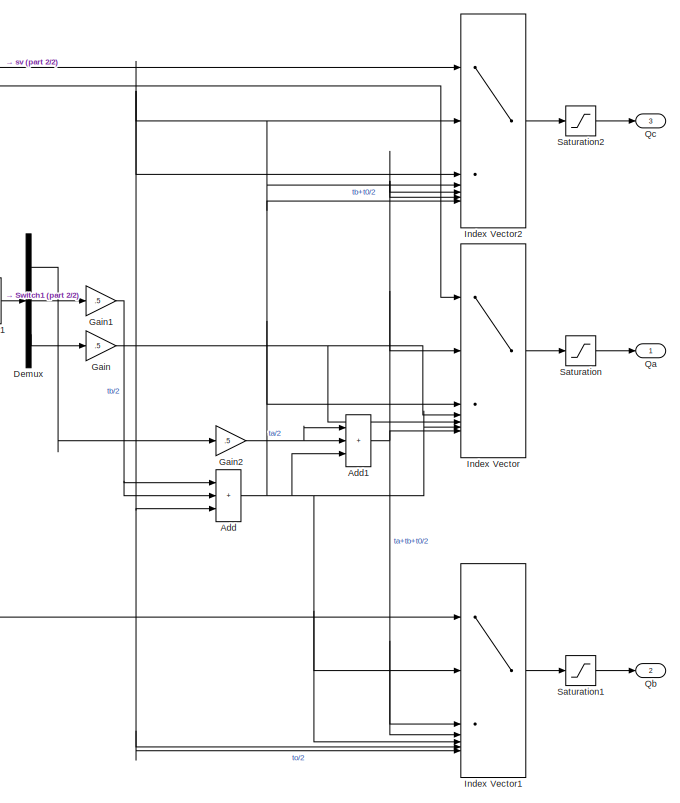
[diagram: ctrl_ez_fcn/fail_shit/pi+svpwm/SVPWM - part 1/2, right side, full height]
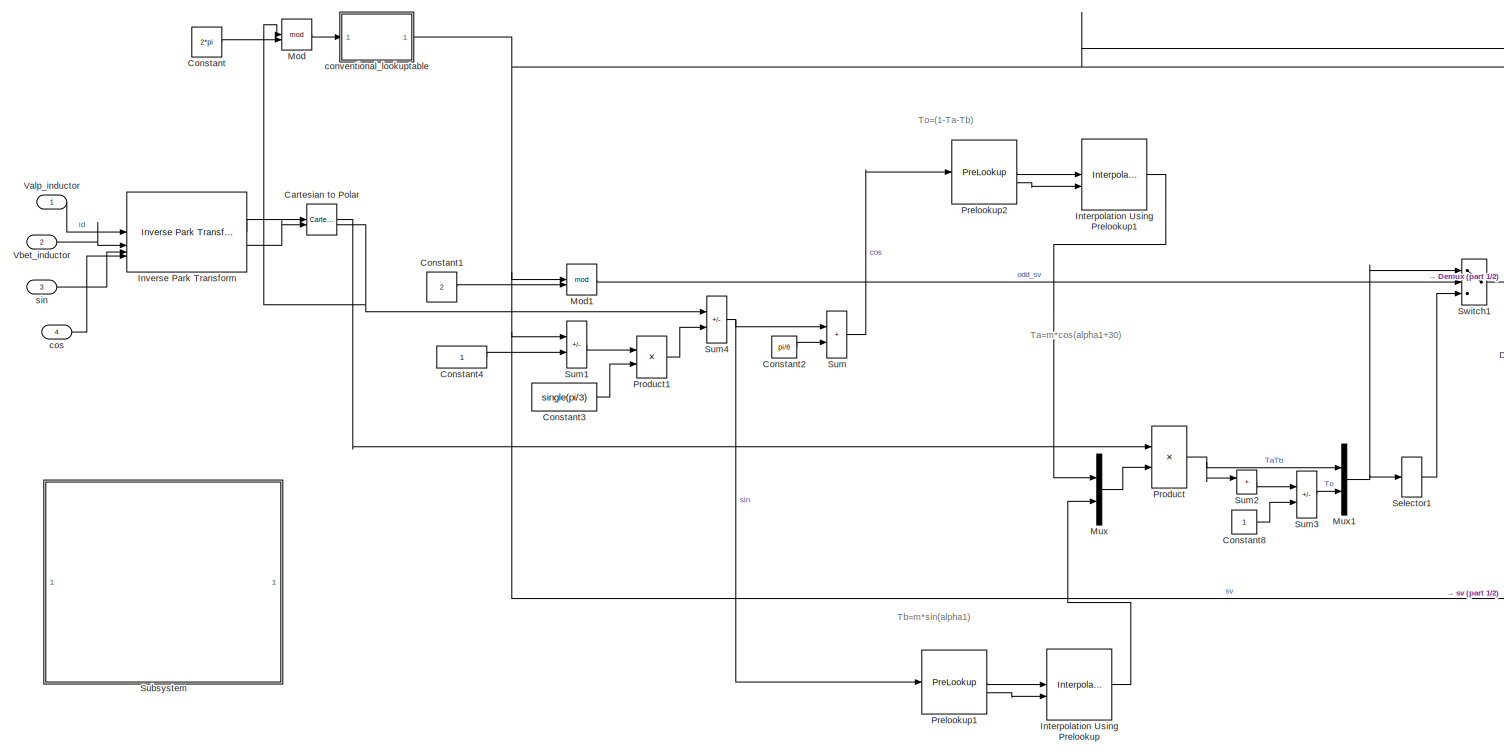
[diagram: ctrl_ez_fcn/fail_shit/pi+svpwm/SVPWM - part 2/2, center side, full height]
BLOCK [SubSystem] ctrl_ez_fcn/fail_shit/pi+svpwm/SVPWM
  SystemSampleTime = tsw
BLOCK [Sum] ctrl_ez_fcn/fail_shit/pi+svpwm/SVPWM/Add
  IconShape = rectangular
  Inputs = +++
BLOCK [Sum] ctrl_ez_fcn/fail_shit/pi+svpwm/SVPWM/Add1
  IconShape = rectangular
  Inputs = +++
BLOCK [Reference] ctrl_ez_fcn/fail_shit/pi+svpwm/SVPWM/Cartesian to Polar  REF=simulink_extras/Transformations/Cartesian to
Polar
  SourceBlock = simulink_extras/Transformations/Cartesian to\nPolar
  SourceType = Cart2Polar
BLOCK [Constant] ctrl_ez_fcn/fail_shit/pi+svpwm/SVPWM/Constant
  OutDataTypeStr = single
  SampleTime = -1
  Value = 2*pi
BLOCK [Constant] ctrl_ez_fcn/fail_shit/pi+svpwm/SVPWM/Constant1
  OutDataTypeStr = single
  SampleTime = -1
  Value = 2
BLOCK [Constant] ctrl_ez_fcn/fail_shit/pi+svpwm/SVPWM/Constant2
  OutDataTypeStr = single
  SampleTime = -1
  Value = pi/6
BLOCK [Constant] ctrl_ez_fcn/fail_shit/pi+svpwm/SVPWM/Constant3
  OutDataTypeStr = single
  SampleTime = -1
  Value = single(pi/3)
  VectorParams1D = off
BLOCK [Constant] ctrl_ez_fcn/fail_shit/pi+svpwm/SVPWM/Constant4
  OutDataTypeStr = single
  SampleTime = -1
  VectorParams1D = off
BLOCK [Constant] ctrl_ez_fcn/fail_shit/pi+svpwm/SVPWM/Constant8
  OutDataTypeStr = single
  SampleTime = -1
BLOCK [Demux] ctrl_ez_fcn/fail_shit/pi+svpwm/SVPWM/Demux
  Outputs = 3
BLOCK [Gain] ctrl_ez_fcn/fail_shit/pi+svpwm/SVPWM/Gain
  Gain = .5
  OutDataTypeStr = single
BLOCK [Gain] ctrl_ez_fcn/fail_shit/pi+svpwm/SVPWM/Gain1
  Gain = .5
  OutDataTypeStr = single
BLOCK [Gain] ctrl_ez_fcn/fail_shit/pi+svpwm/SVPWM/Gain2
  Gain = .5
  OutDataTypeStr = single
BLOCK [MultiPortSwitch] ctrl_ez_fcn/fail_shit/pi+svpwm/SVPWM/Index Vector
  DiagnosticForDefault = None
  InputSameDT = off
  Inputs = 6
  SaturateOnIntegerOverflow = off
BLOCK [MultiPortSwitch] ctrl_ez_fcn/fail_shit/pi+svpwm/SVPWM/Index Vector1
  DiagnosticForDefault = None
  InputSameDT = off
  Inputs = 6
  SaturateOnIntegerOverflow = off
BLOCK [MultiPortSwitch] ctrl_ez_fcn/fail_shit/pi+svpwm/SVPWM/Index Vector2
  DiagnosticForDefault = None
  InputSameDT = off
  Inputs = 6
  SaturateOnIntegerOverflow = off
BLOCK [Interpolation_n-D] ctrl_ez_fcn/fail_shit/pi+svpwm/SVPWM/Interpolation Using Prelookup
  InputPortMap = u0,u1
  IntermediateResultsDataTypeStr = Inherit: Inherit via internal rule
  InternalRulePriority = Speed
  InterpMethod = Flat
  NumberOfTableDimensions = 1
  RemoveProtectionIndex = on
  Table = single(sin(0:2*pi/1024:2*pi))
  ValidIndexMayReachLast = on
BLOCK [Interpolation_n-D] ctrl_ez_fcn/fail_shit/pi+svpwm/SVPWM/Interpolation Using Prelookup1
  InputPortMap = u0,u1
  IntermediateResultsDataTypeStr = Inherit: Inherit via internal rule
  InternalRulePriority = Speed
  InterpMethod = Flat
  NumberOfTableDimensions = 1
  RemoveProtectionIndex = on
  Table = single(cos(0:2*pi/1024:2*pi))
  ValidIndexMayReachLast = on
BLOCK [Reference] ctrl_ez_fcn/fail_shit/pi+svpwm/SVPWM/Inverse Park Transform  REF=mcbcontrolslib/Inverse Park Transform
  LibrarySourceBlock = mcbhdllib/Controls/Math Transforms/Inverse Park Transform
  SourceBlock = mcbcontrolslib/Inverse Park Transform
  SourceType = Inverse Park Transform
BLOCK [Math] ctrl_ez_fcn/fail_shit/pi+svpwm/SVPWM/Mod
  Operator = mod
BLOCK [Math] ctrl_ez_fcn/fail_shit/pi+svpwm/SVPWM/Mod1
  Operator = mod
BLOCK [Mux] ctrl_ez_fcn/fail_shit/pi+svpwm/SVPWM/Mux
  DisplayOption = bar
  Inputs = 2
BLOCK [Mux] ctrl_ez_fcn/fail_shit/pi+svpwm/SVPWM/Mux1
  DisplayOption = bar
  Inputs = 2
BLOCK [PreLookup] ctrl_ez_fcn/fail_shit/pi+svpwm/SVPWM/Prelookup1
  BeginIndexSearchUsingPreviousIndexResult = on
  BreakpointsData = single((0:2*pi/1024:2*pi))
  IndexSearchMethod = Evenly spaced points
  InputPortMap = u0
  UseLastBreakpoint = on
BLOCK [PreLookup] ctrl_ez_fcn/fail_shit/pi+svpwm/SVPWM/Prelookup2
  BeginIndexSearchUsingPreviousIndexResult = on
  BreakpointsData = single((0:2*pi/1024:2*pi))
  IndexSearchMethod = Evenly spaced points
  InputPortMap = u0
  UseLastBreakpoint = on
BLOCK [Product] ctrl_ez_fcn/fail_shit/pi+svpwm/SVPWM/Product
  OutDataTypeStr = Inherit: Same as first input
  SaturateOnIntegerOverflow = on
BLOCK [Product] ctrl_ez_fcn/fail_shit/pi+svpwm/SVPWM/Product1
  OutDataTypeStr = single
BLOCK [Outport] ctrl_ez_fcn/fail_shit/pi+svpwm/SVPWM/Qa
BLOCK [Outport] ctrl_ez_fcn/fail_shit/pi+svpwm/SVPWM/Qb
  Port = 2
BLOCK [Outport] ctrl_ez_fcn/fail_shit/pi+svpwm/SVPWM/Qc
  Port = 3
BLOCK [Saturate] ctrl_ez_fcn/fail_shit/pi+svpwm/SVPWM/Saturation
  LowerLimit = .03
  UpperLimit = .98
BLOCK [Saturate] ctrl_ez_fcn/fail_shit/pi+svpwm/SVPWM/Saturation1
  LowerLimit = .03
  UpperLimit = .98
BLOCK [Saturate] ctrl_ez_fcn/fail_shit/pi+svpwm/SVPWM/Saturation2
  LowerLimit = .03
  UpperLimit = .98
BLOCK [Selector] ctrl_ez_fcn/fail_shit/pi+svpwm/SVPWM/Selector1
  IndexOptions = Index vector (dialog)
  Indices = [2 1 3]
  InputPortWidth = 3
  OutputSizes = 1
BLOCK [SubSystem] ctrl_ez_fcn/fail_shit/pi+svpwm/SVPWM/Subsystem
BLOCK [SubSystem] ctrl_ez_fcn/fail_shit/pi+svpwm/SVPWM/Subsystem/INFO
BLOCK [Sum] ctrl_ez_fcn/fail_shit/pi+svpwm/SVPWM/Sum
  IconShape = rectangular
  SaturateOnIntegerOverflow = on
BLOCK [Sum] ctrl_ez_fcn/fail_shit/pi+svpwm/SVPWM/Sum1
  AccumDataTypeStr = single
  IconShape = rectangular
  Inputs = +-
  OutDataTypeStr = single
BLOCK [Sum] ctrl_ez_fcn/fail_shit/pi+svpwm/SVPWM/Sum2
  IconShape = rectangular
  Inputs = 1
  SaturateOnIntegerOverflow = on
BLOCK [Sum] ctrl_ez_fcn/fail_shit/pi+svpwm/SVPWM/Sum3
  IconShape = rectangular
  Inputs = -+
  SaturateOnIntegerOverflow = on
BLOCK [Sum] ctrl_ez_fcn/fail_shit/pi+svpwm/SVPWM/Sum4
  IconShape = rectangular
  Inputs = +-
  SaturateOnIntegerOverflow = on
BLOCK [Switch] ctrl_ez_fcn/fail_shit/pi+svpwm/SVPWM/Switch1
  InputSameDT = off
  Threshold = 0.5
BLOCK [Inport] ctrl_ez_fcn/fail_shit/pi+svpwm/SVPWM/Valp_inductor
BLOCK [Inport] ctrl_ez_fcn/fail_shit/pi+svpwm/SVPWM/Vbet_inductor
  Port = 2
BLOCK [SubSystem] ctrl_ez_fcn/fail_shit/pi+svpwm/SVPWM/conventional_lookuptable
  ErrorFcn = Stateflow.Translate.translate
  PermitHierarchicalResolution = ExplicitOnly
  SFBlockType = MATLAB Function
  TreatAsAtomicUnit = on
BLOCK [Demux] ctrl_ez_fcn/fail_shit/pi+svpwm/SVPWM/conventional_lookuptable/ Demux 
  Outputs = 1
BLOCK [S-Function] ctrl_ez_fcn/fail_shit/pi+svpwm/SVPWM/conventional_lookuptable/ SFunction 
  EnableBusSupport = on
  FunctionName = sf_sfun
  PortCounts = [1 2]
  SFcnIsStateOwnerBlock = off
  SFunctionDeploymentMode = off
  Tag = Stateflow S-Function 2
BLOCK [Terminator] ctrl_ez_fcn/fail_shit/pi+svpwm/SVPWM/conventional_lookuptable/ Terminator 
BLOCK [Inport] ctrl_ez_fcn/fail_shit/pi+svpwm/SVPWM/conventional_lookuptable/u
BLOCK [Outport] ctrl_ez_fcn/fail_shit/pi+svpwm/SVPWM/conventional_lookuptable/y
BLOCK [Inport] ctrl_ez_fcn/fail_shit/pi+svpwm/SVPWM/cos
  Port = 4
BLOCK [Inport] ctrl_ez_fcn/fail_shit/pi+svpwm/SVPWM/sin
  Port = 3
BLOCK [Inport] ctrl_ez_fcn/fail_shit/pi+svpwm/a
  Port = 2
BLOCK [Inport] ctrl_ez_fcn/fail_shit/pi+svpwm/b
  Port = 3
BLOCK [Inport] ctrl_ez_fcn/fail_shit/pi+svpwm/c
  Port = 4
BLOCK [SubSystem] ctrl_ez_fcn/fail_shit/pi+svpwm/clarke_park_tf
BLOCK [Reference] ctrl_ez_fcn/fail_shit/pi+svpwm/clarke_park_tf/Clarke Transform  REF=mcbcontrolslib/Clarke Transform
  LibrarySourceBlock = mcbhdllib/Controls/Math Transforms/Clarke Transform
  SourceBlock = mcbcontrolslib/Clarke Transform
  SourceType = Clarke Transform
BLOCK [Demux] ctrl_ez_fcn/fail_shit/pi+svpwm/clarke_park_tf/Demux
  Outputs = 3
BLOCK [Mux] ctrl_ez_fcn/fail_shit/pi+svpwm/clarke_park_tf/Mux
  DisplayOption = bar
  Inputs = 3
BLOCK [Reference] ctrl_ez_fcn/fail_shit/pi+svpwm/clarke_park_tf/Park Transform  REF=mcbcontrolslib/Park Transform
  LibrarySourceBlock = mcbhdllib/Controls/Math Transforms/Park Transform
  SourceBlock = mcbcontrolslib/Park Transform
  SourceType = Park Transform
BLOCK [Terminator] ctrl_ez_fcn/fail_shit/pi+svpwm/clarke_park_tf/Terminator
BLOCK [Inport] ctrl_ez_fcn/fail_shit/pi+svpwm/clarke_park_tf/a
BLOCK [Inport] ctrl_ez_fcn/fail_shit/pi+svpwm/clarke_park_tf/b
  Port = 2
BLOCK [Inport] ctrl_ez_fcn/fail_shit/pi+svpwm/clarke_park_tf/c
  Port = 3
BLOCK [Inport] ctrl_ez_fcn/fail_shit/pi+svpwm/clarke_park_tf/cos
  Port = 5
BLOCK [Outport] ctrl_ez_fcn/fail_shit/pi+svpwm/clarke_park_tf/id
BLOCK [Outport] ctrl_ez_fcn/fail_shit/pi+svpwm/clarke_park_tf/iq
  Port = 2
BLOCK [Inport] ctrl_ez_fcn/fail_shit/pi+svpwm/clarke_park_tf/sin
  Port = 4
BLOCK [Inport] ctrl_ez_fcn/fail_shit/pi+svpwm/set_point
BLOCK [SubSystem] ctrl_ez_fcn/fail_shit/pi+svpwm/svm
  PortSchema = {"entries":[{"content":{"sides":[{"content":{"connectorIds":["In1"]},"type":"ConnectorPlacement.EquallySpacedRectSide","uuid":"3e008ee5-59f8-4da6-a2e7-d375939bf865"},{"content":{"connectorIds":["Out1"],"side":"RIGHT"},"type":"ConnectorPlacement.EquallySpacedRectSide","uuid":"8b37db03-1d3b-40e7-b6c7-a20c319c3381"},{"content":{"connectorIds":["In2","In3"],"side":"TOP"},"type":"ConnectorPlacement.Equ...<+251ch>
BLOCK [Sum] ctrl_ez_fcn/fail_shit/pi+svpwm/svm/Add
  AccumDataTypeStr = Inherit: Same as first input
  IconShape = rectangular
  Inputs = +-
  OutDataTypeStr = Inherit: Same as first input
  RndMeth = Simplest
BLOCK [Sum] ctrl_ez_fcn/fail_shit/pi+svpwm/svm/Add1
  AccumDataTypeStr = Inherit: Same as first input
  IconShape = rectangular
  Inputs = +-
  OutDataTypeStr = Inherit: Same as first input
  RndMeth = Simplest
BLOCK [Sum] ctrl_ez_fcn/fail_shit/pi+svpwm/svm/Add2
  AccumDataTypeStr = Inherit: Same as first input
  IconShape = rectangular
  OutDataTypeStr = Inherit: Same as first input
  RndMeth = Simplest
BLOCK [Sum] ctrl_ez_fcn/fail_shit/pi+svpwm/svm/Add3
  AccumDataTypeStr = Inherit: Same as first input
  IconShape = rectangular
  OutDataTypeStr = Inherit: Same as first input
  RndMeth = Simplest
BLOCK [Sum] ctrl_ez_fcn/fail_shit/pi+svpwm/svm/Add4
  AccumDataTypeStr = Inherit: Same as first input
  IconShape = rectangular
  OutDataTypeStr = Inherit: Same as first input
  RndMeth = Simplest
BLOCK [Sum] ctrl_ez_fcn/fail_shit/pi+svpwm/svm/Add5
  AccumDataTypeStr = Inherit: Same as first input
  IconShape = rectangular
  Inputs = +-
  OutDataTypeStr = Inherit: Same as first input
  RndMeth = Simplest
BLOCK [Demux] ctrl_ez_fcn/fail_shit/pi+svpwm/svm/Demux
  Outputs = 3
BLOCK [Demux] ctrl_ez_fcn/fail_shit/pi+svpwm/svm/Demux1
  Outputs = 3
BLOCK [Demux] ctrl_ez_fcn/fail_shit/pi+svpwm/svm/Demux2
  Outputs = 3
BLOCK [Gain] ctrl_ez_fcn/fail_shit/pi+svpwm/svm/Gain
  Gain = 2/sqrt(3)
  OutDataTypeStr = Inherit: Same as input
  ParamDataTypeStr = Inherit: Same as input
  RndMeth = Simplest
BLOCK [Inport] ctrl_ez_fcn/fail_shit/pi+svpwm/svm/In1
BLOCK [Inport] ctrl_ez_fcn/fail_shit/pi+svpwm/svm/In2
  Port = 2
BLOCK [Inport] ctrl_ez_fcn/fail_shit/pi+svpwm/svm/In3
  Port = 3
BLOCK [MinMax] ctrl_ez_fcn/fail_shit/pi+svpwm/svm/Max
  Function = max
  Inputs = 3
  OutDataTypeStr = Inherit: Same as first input
  RndMeth = Simplest
BLOCK [MinMax] ctrl_ez_fcn/fail_shit/pi+svpwm/svm/Min
  Inputs = 3
  OutDataTypeStr = Inherit: Same as first input
  RndMeth = Simplest
BLOCK [MinMax] ctrl_ez_fcn/fail_shit/pi+svpwm/svm/Min1
  Inputs = 3
  OutDataTypeStr = Inherit: Same as first input
  RndMeth = Simplest
BLOCK [Mux] ctrl_ez_fcn/fail_shit/pi+svpwm/svm/Mux2
  DisplayOption = bar
  Inputs = 3
BLOCK [Outport] ctrl_ez_fcn/fail_shit/pi+svpwm/svm/Out1
BLOCK [Gain] ctrl_ez_fcn/fail_shit/pi+svpwm/svm/one_by_two
  Gain = .5
  NameLocation = top
  OutDataTypeStr = Inherit: Same as input
  ParamDataTypeStr = Inherit: Same as input
  RndMeth = Simplest
BLOCK [SubSystem] ctrl_ez_fcn/fail_shit/pi+svpwm1
  Commented = on
BLOCK [Sum] ctrl_ez_fcn/fail_shit/pi+svpwm1/Add
  IconShape = rectangular
  Inputs = +-
BLOCK [Sum] ctrl_ez_fcn/fail_shit/pi+svpwm1/Add1
  IconShape = rectangular
  Inputs = +-
BLOCK [Sum] ctrl_ez_fcn/fail_shit/pi+svpwm1/Add2
  IconShape = rectangular
  Inputs = +-
BLOCK [Sum] ctrl_ez_fcn/fail_shit/pi+svpwm1/Add3
  IconShape = rectangular
  Inputs = +-
BLOCK [Sum] ctrl_ez_fcn/fail_shit/pi+svpwm1/Add4
  IconShape = rectangular
  Inputs = +-
BLOCK [Sum] ctrl_ez_fcn/fail_shit/pi+svpwm1/Add5
  IconShape = rectangular
  Inputs = +-
BLOCK [Sum] ctrl_ez_fcn/fail_shit/pi+svpwm1/Add6
  IconShape = rectangular
  Inputs = +-
BLOCK [Constant] ctrl_ez_fcn/fail_shit/pi+svpwm1/Constant1
  OutDataTypeStr = single
  SampleTime = -1
  Value = 650
  VectorParams1D = off
BLOCK [Demux] ctrl_ez_fcn/fail_shit/pi+svpwm1/Demux
  Outputs = 3
BLOCK [LookupNDDirect] ctrl_ez_fcn/fail_shit/pi+svpwm1/Direct Lookup Table (n-D)2
  Commented = on
  NumberOfTableDimensions = 1
  RemoveProtectionInput = on
  Table = single(cos_th);
  TableDataTypeStr = single
BLOCK [Product] ctrl_ez_fcn/fail_shit/pi+svpwm1/Divide
  Inputs = */
BLOCK [EnablePort] ctrl_ez_fcn/fail_shit/pi+svpwm1/Enable
BLOCK [Gain] ctrl_ez_fcn/fail_shit/pi+svpwm1/Gain
  Gain = 1/(230*sqrt(2))
BLOCK [Gain] ctrl_ez_fcn/fail_shit/pi+svpwm1/Gain1
  Gain = .5
BLOCK [SubSystem] ctrl_ez_fcn/fail_shit/pi+svpwm1/I_SET_PI_CTRL
  SystemSampleTime = tsw
BLOCK [DiscreteIntegrator] ctrl_ez_fcn/fail_shit/pi+svpwm1/I_SET_PI_CTRL/Accumulator
  ICPrevOutput = DiscIntNeverNeededParam
  ICPrevScaledInput = DiscIntNeverNeededParam
  InitialConditionSetting = Auto
  IntegratorMethod = Accumulation: Forward Euler
  LimitOutput = on
  LowerSaturationLimit = -50
  SampleTime = -1
  ShowSaturationPort = on
  UpperSaturationLimit = 50
BLOCK [Sum] ctrl_ez_fcn/fail_shit/pi+svpwm1/I_SET_PI_CTRL/Add2
  IconShape = rectangular
BLOCK [Constant] ctrl_ez_fcn/fail_shit/pi+svpwm1/I_SET_PI_CTRL/Constant1
  OutDataTypeStr = single
  SampleTime = -1
  Value = 0
BLOCK [Delay] ctrl_ez_fcn/fail_shit/pi+svpwm1/I_SET_PI_CTRL/Delay1
  DelayLength = 1
  InputPortMap = u0
  InputProcessing = Columns as channels (frame based)
  NameLocation = top
BLOCK [Gain] ctrl_ez_fcn/fail_shit/pi+svpwm1/I_SET_PI_CTRL/Gain1
  Gain = 1/30
  OutDataTypeStr = single
BLOCK [Gain] ctrl_ez_fcn/fail_shit/pi+svpwm1/I_SET_PI_CTRL/Gain2
  Gain = 0
  OutDataTypeStr = single
BLOCK [Saturate] ctrl_ez_fcn/fail_shit/pi+svpwm1/I_SET_PI_CTRL/Saturation
  LowerLimit = -30
  UpperLimit = 30
BLOCK [Switch] ctrl_ez_fcn/fail_shit/pi+svpwm1/I_SET_PI_CTRL/Switch
  Criteria = u2 > Threshold
  InputSameDT = off
  SaturateOnIntegerOverflow = off
BLOCK [Outport] ctrl_ez_fcn/fail_shit/pi+svpwm1/I_SET_PI_CTRL/i_set
BLOCK [Inport] ctrl_ez_fcn/fail_shit/pi+svpwm1/I_SET_PI_CTRL/v_dc_error
  OutDataTypeStr = single
BLOCK [MinMax] ctrl_ez_fcn/fail_shit/pi+svpwm1/Max
  Function = max
BLOCK [MinMax] ctrl_ez_fcn/fail_shit/pi+svpwm1/Min
BLOCK [MinMax] ctrl_ez_fcn/fail_shit/pi+svpwm1/Min1
BLOCK [Mux] ctrl_ez_fcn/fail_shit/pi+svpwm1/Mux
  DisplayOption = bar
  Inputs = 3
BLOCK [Mux] ctrl_ez_fcn/fail_shit/pi+svpwm1/Mux1
  DisplayOption = bar
  Inputs = 3
BLOCK [SubSystem] ctrl_ez_fcn/fail_shit/pi+svpwm1/PI_CTRL
  SystemSampleTime = tsw
BLOCK [DiscreteIntegrator] ctrl_ez_fcn/fail_shit/pi+svpwm1/PI_CTRL/Accumulator
  ICPrevOutput = DiscIntNeverNeededParam
  ICPrevScaledInput = DiscIntNeverNeededParam
  InitialConditionSetting = Auto
  IntegratorMethod = Accumulation: Forward Euler
  LimitOutput = on
  LowerSaturationLimit = -50
  SampleTime = -1
  ShowSaturationPort = on
  UpperSaturationLimit = 50
BLOCK [Sum] ctrl_ez_fcn/fail_shit/pi+svpwm1/PI_CTRL/Add2
  IconShape = rectangular
BLOCK [Constant] ctrl_ez_fcn/fail_shit/pi+svpwm1/PI_CTRL/Constant1
  OutDataTypeStr = single
  SampleTime = -1
  Value = 0
BLOCK [Delay] ctrl_ez_fcn/fail_shit/pi+svpwm1/PI_CTRL/Delay1
  DelayLength = 1
  InputPortMap = u0
  InputProcessing = Columns as channels (frame based)
  NameLocation = top
BLOCK [Gain] ctrl_ez_fcn/fail_shit/pi+svpwm1/PI_CTRL/Gain1
  Gain = 100
  OutDataTypeStr = single
BLOCK [Gain] ctrl_ez_fcn/fail_shit/pi+svpwm1/PI_CTRL/Gain2
  Gain = 0
  OutDataTypeStr = single
BLOCK [Saturate] ctrl_ez_fcn/fail_shit/pi+svpwm1/PI_CTRL/Saturation
  Commented = through
  LowerLimit = -300
  UpperLimit = 300
BLOCK [Switch] ctrl_ez_fcn/fail_shit/pi+svpwm1/PI_CTRL/Switch
  Criteria = u2 > Threshold
  InputSameDT = off
  SaturateOnIntegerOverflow = off
BLOCK [Inport] ctrl_ez_fcn/fail_shit/pi+svpwm1/PI_CTRL/i_error
  OutDataTypeStr = single
BLOCK [Outport] ctrl_ez_fcn/fail_shit/pi+svpwm1/PI_CTRL/v_ind
BLOCK [Product] ctrl_ez_fcn/fail_shit/pi+svpwm1/Product
BLOCK [Outport] ctrl_ez_fcn/fail_shit/pi+svpwm1/Qa
BLOCK [Outport] ctrl_ez_fcn/fail_shit/pi+svpwm1/Qb
  Port = 2
BLOCK [Outport] ctrl_ez_fcn/fail_shit/pi+svpwm1/Qc
  Port = 3
BLOCK [Saturate] ctrl_ez_fcn/fail_shit/pi+svpwm1/Saturation
  LowerLimit = .03
  UpperLimit = .97
BLOCK [SubSystem] ctrl_ez_fcn/fail_shit/pi+svpwm1/Subsystem
BLOCK [Constant] ctrl_ez_fcn/fail_shit/pi+svpwm1/Subsystem/Constant
  SampleTime = -1
  Value = 0
BLOCK [Reference] ctrl_ez_fcn/fail_shit/pi+svpwm1/Subsystem/Counter  REF=dspswit3/Counter
  SourceBlock = dspswit3/Counter
  SourceType = Counter
BLOCK [Outport] ctrl_ez_fcn/fail_shit/pi+svpwm1/Subsystem/angle_wt
BLOCK [Outport] ctrl_ez_fcn/fail_shit/pi+svpwm1/Subsystem/angle_wt1
  Port = 2
BLOCK [Outport] ctrl_ez_fcn/fail_shit/pi+svpwm1/Subsystem/angle_wt2
  Port = 3
BLOCK [LookupNDDirect] ctrl_ez_fcn/fail_shit/pi+svpwm1/Subsystem/va_lt
  NumberOfTableDimensions = 1
  RemoveProtectionInput = on
  Table = single(sin_th*230*sqrt(2));
  TableDataTypeStr = single
BLOCK [LookupNDDirect] ctrl_ez_fcn/fail_shit/pi+svpwm1/Subsystem/vb_lt
  NameLocation = right
  NumberOfTableDimensions = 1
  RemoveProtectionInput = on
  Table = single(sin_th_vb*230*sqrt(2));
  TableDataTypeStr = single
BLOCK [LookupNDDirect] ctrl_ez_fcn/fail_shit/pi+svpwm1/Subsystem/vc_lt
  NumberOfTableDimensions = 1
  RemoveProtectionInput = on
  Table = single(sin_th_vc*230*sqrt(2));
  TableDataTypeStr = single
BLOCK [Terminator] ctrl_ez_fcn/fail_shit/pi+svpwm1/Terminator
BLOCK [Inport] ctrl_ez_fcn/fail_shit/pi+svpwm1/a
  Port = 2
BLOCK [Inport] ctrl_ez_fcn/fail_shit/pi+svpwm1/b
  Port = 3
BLOCK [Inport] ctrl_ez_fcn/fail_shit/pi+svpwm1/c
  Port = 4
BLOCK [Inport] ctrl_ez_fcn/fail_shit/pi+svpwm1/o_va
  Port = 6
BLOCK [Inport] ctrl_ez_fcn/fail_shit/pi+svpwm1/ov_out
  Port = 5
BLOCK [Inport] ctrl_ez_fcn/fail_shit/pi+svpwm1/set_point
BLOCK [Inport] ctrl_ez_fcn/fail_shit/pi+svpwm1/vb
  Port = 7
BLOCK [Inport] ctrl_ez_fcn/fail_shit/pi+svpwm1/vc
  Port = 8
BLOCK [SubSystem] ctrl_ez_fcn/filter
BLOCK [BusCreator] ctrl_ez_fcn/filter/Bus Creator
  DisplayOption = bar
  InheritFromInputs = on
  Inputs = 3
BLOCK [BusSelector] ctrl_ez_fcn/filter/Bus Selector
  OutputAsBus = on
  OutputSignals = o_ia,o_ib,o_ic
BLOCK [DataStoreMemory] ctrl_ez_fcn/filter/Data Store Memory
  DataStoreName = filter_IA
  ShowAdditionalParam = off
  StateMustResolveToSignalObject = on
  WriteAfterWriteMsg = warning
BLOCK [DataStoreMemory] ctrl_ez_fcn/filter/Data Store Memory1
  DataStoreName = filter_IB
  ShowAdditionalParam = off
  StateMustResolveToSignalObject = on
  WriteAfterWriteMsg = warning
BLOCK [DataStoreMemory] ctrl_ez_fcn/filter/Data Store Memory2
  DataStoreName = filter_IC
  ShowAdditionalParam = off
  StateMustResolveToSignalObject = on
  WriteAfterWriteMsg = warning
BLOCK [DataStoreWrite] ctrl_ez_fcn/filter/Data Store Write
  DataStoreName = filter_IA
  IndexOptions = Index vector (dialog)
  Indices = 1
  OutputSizes = 1
BLOCK [DataStoreWrite] ctrl_ez_fcn/filter/Data Store Write1
  DataStoreName = filter_IB
  IndexOptions = Index vector (dialog)
  Indices = 1
  OutputSizes = 1
BLOCK [DataStoreWrite] ctrl_ez_fcn/filter/Data Store Write2
  DataStoreName = filter_IC
  IndexOptions = Index vector (dialog)
  Indices = 1
  OutputSizes = 1
BLOCK [Demux] ctrl_ez_fcn/filter/Demux
  Outputs = 3
BLOCK [Reference] ctrl_ez_fcn/filter/IIR Filter  REF=mcbcontrolslib/IIR Filter
  SourceBlock = mcbcontrolslib/IIR Filter
  SourceType = IIR Filter
BLOCK [Inport] ctrl_ez_fcn/filter/ia_ib_ic_v_dc
BLOCK [Outport] ctrl_ez_fcn/filter/ia_ib_ic_v_dc_flt
BLOCK [Inport] ctrl_ez_fcn/ia
  OutDataTypeStr = single
BLOCK [Inport] ctrl_ez_fcn/ib
  OutDataTypeStr = single
  Port = 3
BLOCK [Inport] ctrl_ez_fcn/ic
  Port = 4
BLOCK [Outport] ctrl_ez_fcn/lock
  Port = 4
BLOCK [SubSystem] ctrl_ez_fcn/nlock
BLOCK [Logic] ctrl_ez_fcn/nlock/AND
  AllPortsSameDT = off
  IconShape = distinctive
  OutDataTypeStr = boolean
BLOCK [BusSelector] ctrl_ez_fcn/nlock/Bus Selector
  OutputSignals = w
BLOCK [Constant] ctrl_ez_fcn/nlock/Constant
  OutDataTypeStr = boolean
  SampleTime = -1
  Value = 0
BLOCK [RelationalOperator] ctrl_ez_fcn/nlock/Equal
  InputSameDT = off
  Operator = >
  OutDataTypeStr = boolean
  RndMeth = Simplest
BLOCK [Inport] ctrl_ez_fcn/nlock/In2
  Port = 2
BLOCK [Memory] ctrl_ez_fcn/nlock/Memory
  InheritSampleTime = on
  InitialCondition = 1
  NameLocation = top
BLOCK [Constant] ctrl_ez_fcn/nlock/Pi1
  OutDataTypeStr = single
  SampleTime = -1
  Value = 0
BLOCK [Switch] ctrl_ez_fcn/nlock/Switch
  Criteria = u2 > Threshold
  InputSameDT = off
  SaturateOnIntegerOverflow = off
BLOCK [Outport] ctrl_ez_fcn/nlock/lock1
BLOCK [Inport] ctrl_ez_fcn/nlock/lock_pll
BLOCK [Inport] ctrl_ez_fcn/ov_out
  Port = 2
BLOCK [SubSystem] ctrl_ez_fcn/pll
  RTWFcnNameOpts = Use subsystem name
  RTWFileNameOpts = Use subsystem name
  RTWMemSecFuncExecute = Default
  RTWMemSecFuncInitTerm = Default
  RTWSystemCode = Inline
BLOCK [SubSystem] ctrl_ez_fcn/pll/Clark Transform
  SystemSampleTime = ts
BLOCK [Reference] ctrl_ez_fcn/pll/Clark Transform/Clarke Transform  REF=mcbcontrolslib/Clarke Transform
  LibrarySourceBlock = mcbhdllib/Controls/Math Transforms/Clarke Transform
  NameLocation = left
  SourceBlock = mcbcontrolslib/Clarke Transform
  SourceType = Clarke Transform
BLOCK [Demux] ctrl_ez_fcn/pll/Clark Transform/Demux
  Outputs = 3
BLOCK [Mux] ctrl_ez_fcn/pll/Clark Transform/Mux
  DisplayOption = bar
  Inputs = 3
BLOCK [Terminator] ctrl_ez_fcn/pll/Clark Transform/Terminator
BLOCK [Outport] ctrl_ez_fcn/pll/Clark Transform/V alpha
BLOCK [Outport] ctrl_ez_fcn/pll/Clark Transform/V betha
  Port = 2
BLOCK [Inport] ctrl_ez_fcn/pll/Clark Transform/va
  OutDataTypeStr = single
BLOCK [Inport] ctrl_ez_fcn/pll/Clark Transform/vb
  OutDataTypeStr = single
  Port = 2
BLOCK [Inport] ctrl_ez_fcn/pll/Clark Transform/vc
  OutDataTypeStr = single
  Port = 3
BLOCK [SubSystem] ctrl_ez_fcn/pll/DSOGI
  SystemSampleTime = ts
BLOCK [Memory] ctrl_ez_fcn/pll/DSOGI/Memory1
  InheritSampleTime = on
BLOCK [Memory] ctrl_ez_fcn/pll/DSOGI/Memory10
  InheritSampleTime = on
BLOCK [Memory] ctrl_ez_fcn/pll/DSOGI/Memory11
  InheritSampleTime = on
BLOCK [Memory] ctrl_ez_fcn/pll/DSOGI/Memory12
  InheritSampleTime = on
BLOCK [Memory] ctrl_ez_fcn/pll/DSOGI/Memory2
  InheritSampleTime = on
BLOCK [Memory] ctrl_ez_fcn/pll/DSOGI/Memory3
  InheritSampleTime = on
BLOCK [Memory] ctrl_ez_fcn/pll/DSOGI/Memory4
  InheritSampleTime = on
BLOCK [Memory] ctrl_ez_fcn/pll/DSOGI/Memory5
  InheritSampleTime = on
BLOCK [Memory] ctrl_ez_fcn/pll/DSOGI/Memory6
  InheritSampleTime = on
BLOCK [Memory] ctrl_ez_fcn/pll/DSOGI/Memory7
  InheritSampleTime = on
BLOCK [Memory] ctrl_ez_fcn/pll/DSOGI/Memory8
  InheritSampleTime = on
BLOCK [Memory] ctrl_ez_fcn/pll/DSOGI/Memory9
  InheritSampleTime = on
BLOCK [SubSystem] ctrl_ez_fcn/pll/DSOGI/Subsystem Reference
  ReferencedSubsystem = dsogi
BLOCK [Inport] ctrl_ez_fcn/pll/DSOGI/V alpha
  OutDataTypeStr = single
BLOCK [Inport] ctrl_ez_fcn/pll/DSOGI/V betha
  OutDataTypeStr = single
  Port = 2
BLOCK [SubSystem] ctrl_ez_fcn/pll/DSOGI/dsogi
  ReferencedSubsystem = dsogi
BLOCK [Outport] ctrl_ez_fcn/pll/DSOGI/vd_alpha
BLOCK [Outport] ctrl_ez_fcn/pll/DSOGI/vd_betha
  Port = 3
BLOCK [Outport] ctrl_ez_fcn/pll/DSOGI/vq_aplha
  Port = 2
BLOCK [Outport] ctrl_ez_fcn/pll/DSOGI/vq_betha
  Port = 4
BLOCK [Inport] ctrl_ez_fcn/pll/DSOGI/wolp
  OutDataTypeStr = single
  Port = 3
BLOCK [SubSystem] ctrl_ez_fcn/pll/SC
  SystemSampleTime = ts
BLOCK [Sum] ctrl_ez_fcn/pll/SC/Add
  IconShape = rectangular
  Inputs = +-
BLOCK [Sum] ctrl_ez_fcn/pll/SC/Add1
  IconShape = rectangular
BLOCK [Gain] ctrl_ez_fcn/pll/SC/Gain
  Gain = .5
  OutDataTypeStr = single
BLOCK [Gain] ctrl_ez_fcn/pll/SC/Gain1
  Gain = .5
  OutDataTypeStr = single
BLOCK [Gain] ctrl_ez_fcn/pll/SC/Gain2
  Commented = on
  Gain = -1
BLOCK [Terminator] ctrl_ez_fcn/pll/SC/Terminator
  Commented = on
BLOCK [Terminator] ctrl_ez_fcn/pll/SC/Terminator1
  Commented = on
BLOCK [Terminator] ctrl_ez_fcn/pll/SC/Terminator2
  Commented = on
BLOCK [SubSystem] ctrl_ez_fcn/pll/SC/a-b
  Commented = on
  ErrorFcn = Stateflow.Translate.translate
  LibrarySourceBlock = simulink/User-Defined\nFunctions/MATLAB Function
  PermitHierarchicalResolution = ExplicitOnly
  RTWSystemCode = Inline
  SFBlockType = MATLAB Function
  TreatAsAtomicUnit = on
  VariantControl = false()
BLOCK [Demux] ctrl_ez_fcn/pll/SC/a-b/ Demux 
  Outputs = 1
BLOCK [S-Function] ctrl_ez_fcn/pll/SC/a-b/ SFunction 
  EnableBusSupport = on
  FunctionName = sf_sfun
  PortCounts = [2 2]
  SFcnIsStateOwnerBlock = off
  SFunctionDeploymentMode = off
  Tag = Stateflow S-Function 17
BLOCK [Terminator] ctrl_ez_fcn/pll/SC/a-b/ Terminator 
BLOCK [Inport] ctrl_ez_fcn/pll/SC/a-b/a
BLOCK [Inport] ctrl_ez_fcn/pll/SC/a-b/b
  Port = 2
BLOCK [Outport] ctrl_ez_fcn/pll/SC/a-b/c
BLOCK [SubSystem] ctrl_ez_fcn/pll/SC/sum
  Commented = on
  ErrorFcn = Stateflow.Translate.translate
  LibrarySourceBlock = simulink/User-Defined\nFunctions/MATLAB Function
  PermitHierarchicalResolution = ExplicitOnly
  SFBlockType = MATLAB Function
  TreatAsAtomicUnit = on
  VariantControl = false()
BLOCK [Demux] ctrl_ez_fcn/pll/SC/sum/ Demux 
  Outputs = 1
BLOCK [S-Function] ctrl_ez_fcn/pll/SC/sum/ SFunction 
  EnableBusSupport = on
  FunctionName = sf_sfun
  PortCounts = [2 2]
  SFcnIsStateOwnerBlock = off
  SFunctionDeploymentMode = off
  Tag = Stateflow S-Function 21
BLOCK [Terminator] ctrl_ez_fcn/pll/SC/sum/ Terminator 
BLOCK [Inport] ctrl_ez_fcn/pll/SC/sum/a
BLOCK [Inport] ctrl_ez_fcn/pll/SC/sum/b
  Port = 2
BLOCK [Outport] ctrl_ez_fcn/pll/SC/sum/c
BLOCK [SubSystem] ctrl_ez_fcn/pll/SC/sum1
  Commented = on
  ErrorFcn = Stateflow.Translate.translate
  LibrarySourceBlock = simulink/User-Defined\nFunctions/MATLAB Function
  PermitHierarchicalResolution = ExplicitOnly
  SFBlockType = MATLAB Function
  TreatAsAtomicUnit = on
  VariantControl = false()
BLOCK [Demux] ctrl_ez_fcn/pll/SC/sum1/ Demux 
  Outputs = 1
BLOCK [S-Function] ctrl_ez_fcn/pll/SC/sum1/ SFunction 
  EnableBusSupport = on
  FunctionName = sf_sfun
  PortCounts = [2 2]
  SFcnIsStateOwnerBlock = off
  SFunctionDeploymentMode = off
  Tag = Stateflow S-Function 22
BLOCK [Terminator] ctrl_ez_fcn/pll/SC/sum1/ Terminator 
BLOCK [Inport] ctrl_ez_fcn/pll/SC/sum1/a
BLOCK [Inport] ctrl_ez_fcn/pll/SC/sum1/b
  Port = 2
BLOCK [Outport] ctrl_ez_fcn/pll/SC/sum1/c
BLOCK [SubSystem] ctrl_ez_fcn/pll/SC/sum2
  Commented = on
  ErrorFcn = Stateflow.Translate.translate
  LibrarySourceBlock = simulink/User-Defined\nFunctions/MATLAB Function
  PermitHierarchicalResolution = ExplicitOnly
  RTWSystemCode = Inline
  SFBlockType = MATLAB Function
  TreatAsAtomicUnit = on
  VariantControl = false()
BLOCK [Demux] ctrl_ez_fcn/pll/SC/sum2/ Demux 
  Outputs = 1
BLOCK [S-Function] ctrl_ez_fcn/pll/SC/sum2/ SFunction 
  EnableBusSupport = on
  FunctionName = sf_sfun
  PortCounts = [2 2]
  SFcnIsStateOwnerBlock = off
  SFunctionDeploymentMode = off
  Tag = Stateflow S-Function 18
BLOCK [Terminator] ctrl_ez_fcn/pll/SC/sum2/ Terminator 
BLOCK [Inport] ctrl_ez_fcn/pll/SC/sum2/a
BLOCK [Inport] ctrl_ez_fcn/pll/SC/sum2/b
  Port = 2
BLOCK [Outport] ctrl_ez_fcn/pll/SC/sum2/c
BLOCK [Inport] ctrl_ez_fcn/pll/SC/vd_sogi_alpha
  OutDataTypeStr = single
BLOCK [Inport] ctrl_ez_fcn/pll/SC/vd_sogi_betha
  OutDataTypeStr = single
  Port = 3
BLOCK [Outport] ctrl_ez_fcn/pll/SC/vp_alpha
BLOCK [Outport] ctrl_ez_fcn/pll/SC/vp_betha
  Port = 2
BLOCK [Inport] ctrl_ez_fcn/pll/SC/vq_sogi_alpha
  OutDataTypeStr = single
  Port = 2
BLOCK [Inport] ctrl_ez_fcn/pll/SC/vq_sogi_betha
  OutDataTypeStr = single
  Port = 4
BLOCK [Saturate] ctrl_ez_fcn/pll/Saturation
  LowerLimit = 0
  UpperLimit = 2*pi
BLOCK [Outport] ctrl_ez_fcn/pll/angle
  Port = 4
BLOCK [Outport] ctrl_ez_fcn/pll/cos
  Port = 5
BLOCK [SubSystem] ctrl_ez_fcn/pll/dummy_pll
  Commented = on
BLOCK [Constant] ctrl_ez_fcn/pll/dummy_pll/Constant
  OutDataTypeStr = boolean
  SampleTime = -1
  Value = 0
BLOCK [Reference] ctrl_ez_fcn/pll/dummy_pll/Counter  REF=dspswit3/Counter
  SourceBlock = dspswit3/Counter
  SourceType = Counter
BLOCK [DataTypeConversion] ctrl_ez_fcn/pll/dummy_pll/Data Type Conversion
  OutDataTypeStr = single
  RndMeth = Floor
  SaturateOnIntegerOverflow = off
BLOCK [Memory] ctrl_ez_fcn/pll/dummy_pll/Memory
  InheritSampleTime = on
  InitialCondition = 1
  NameLocation = top
BLOCK [Logic] ctrl_ez_fcn/pll/dummy_pll/NOT
  AllPortsSameDT = off
  IconShape = distinctive
  Operator = NOT
  OutDataTypeStr = boolean
BLOCK [Switch] ctrl_ez_fcn/pll/dummy_pll/Switch
  Criteria = u2 > Threshold
  InputSameDT = off
  SaturateOnIntegerOverflow = off
BLOCK [Outport] ctrl_ez_fcn/pll/dummy_pll/angle
BLOCK [LookupNDDirect] ctrl_ez_fcn/pll/dummy_pll/angle_lookup_table2
  NumberOfTableDimensions = 1
  RemoveProtectionInput = on
  Table = single(2*pi*50*t)
BLOCK [Outport] ctrl_ez_fcn/pll/dummy_pll/cos
  Port = 4
BLOCK [LookupNDDirect] ctrl_ez_fcn/pll/dummy_pll/cos_lookup_table1
  NumberOfTableDimensions = 1
  RemoveProtectionInput = on
  Table = single(cos_th)
BLOCK [Outport] ctrl_ez_fcn/pll/dummy_pll/pll_lock
  Port = 2
BLOCK [Outport] ctrl_ez_fcn/pll/dummy_pll/sine
  Port = 3
BLOCK [LookupNDDirect] ctrl_ez_fcn/pll/dummy_pll/sine_lookup_table
  NumberOfTableDimensions = 1
  RemoveProtectionInput = on
  Table = single(sin_th)
BLOCK [Inport] ctrl_ez_fcn/pll/dummy_pll/va_flt
BLOCK [SubSystem] ctrl_ez_fcn/pll/dummy_pll/zcd
  SystemSampleTime = tsw
BLOCK [Logic] ctrl_ez_fcn/pll/dummy_pll/zcd/AND
  AllPortsSameDT = off
  Inputs = 4
  OutDataTypeStr = boolean
BLOCK [Reference] ctrl_ez_fcn/pll/dummy_pll/zcd/Compare To Zero  REF=simulink/Logic and Bit
Operations/Compare
To Zero
  SourceBlock = simulink/Logic and Bit\nOperations/Compare\nTo Zero
  SourceType = Compare To Zero
BLOCK [Reference] ctrl_ez_fcn/pll/dummy_pll/zcd/Compare To Zero1  REF=simulink/Logic and Bit
Operations/Compare
To Zero
  SourceBlock = simulink/Logic and Bit\nOperations/Compare\nTo Zero
  SourceType = Compare To Zero
BLOCK [Reference] ctrl_ez_fcn/pll/dummy_pll/zcd/Compare To Zero2  REF=simulink/Logic and Bit
Operations/Compare
To Zero
  SourceBlock = simulink/Logic and Bit\nOperations/Compare\nTo Zero
  SourceType = Compare To Zero
BLOCK [Reference] ctrl_ez_fcn/pll/dummy_pll/zcd/Compare To Zero3  REF=simulink/Logic and Bit
Operations/Compare
To Zero
  SourceBlock = simulink/Logic and Bit\nOperations/Compare\nTo Zero
  SourceType = Compare To Zero
BLOCK [Delay] ctrl_ez_fcn/pll/dummy_pll/zcd/Delay
  DelayLength = 4
  InputPortMap = u0
BLOCK [Delay] ctrl_ez_fcn/pll/dummy_pll/zcd/Delay1
  DelayLength = 1
  InputPortMap = u0
BLOCK [Delay] ctrl_ez_fcn/pll/dummy_pll/zcd/Delay2
  DelayLength = 0
  InputPortMap = u0
BLOCK [Delay] ctrl_ez_fcn/pll/dummy_pll/zcd/Delay3
  DelayLength = 5
  InputPortMap = u0
BLOCK [Inport] ctrl_ez_fcn/pll/dummy_pll/zcd/v_ac
  OutDataTypeStr = single
BLOCK [Outport] ctrl_ez_fcn/pll/dummy_pll/zcd/zcd
BLOCK [Outport] ctrl_ez_fcn/pll/pll_lock
  Port = 7
BLOCK [SubSystem] ctrl_ez_fcn/pll/pll_lock_subsystem
BLOCK [Logic] ctrl_ez_fcn/pll/pll_lock_subsystem/AND
  AllPortsSameDT = off
  IconShape = distinctive
  OutDataTypeStr = boolean
BLOCK [Constant] ctrl_ez_fcn/pll/pll_lock_subsystem/Constant2
  OutDataTypeStr = single
  SampleTime = -1
  Value = .75
BLOCK [Constant] ctrl_ez_fcn/pll/pll_lock_subsystem/Constant3
  OutDataTypeStr = single
  SampleTime = -1
  Value = 1.4
BLOCK [DataTypeConversion] ctrl_ez_fcn/pll/pll_lock_subsystem/Data Type Conversion
  OutDataTypeStr = single
  RndMeth = Floor
  SaturateOnIntegerOverflow = off
BLOCK [Reference] ctrl_ez_fcn/pll/pll_lock_subsystem/Difference  REF=simulink/Discrete/Difference
  Commented = on
  SourceBlock = simulink/Discrete/Difference
  SourceType = Difference
BLOCK [RelationalOperator] ctrl_ez_fcn/pll/pll_lock_subsystem/Equal2
  InputSameDT = off
  OutDataTypeStr = boolean
  RndMeth = Simplest
BLOCK [RelationalOperator] ctrl_ez_fcn/pll/pll_lock_subsystem/Equal3
  InputSameDT = off
  OutDataTypeStr = boolean
  RndMeth = Simplest
BLOCK [SubSystem] ctrl_ez_fcn/pll/pll_lock_subsystem/MATLAB Function
  ErrorFcn = Stateflow.Translate.translate
  PermitHierarchicalResolution = ExplicitOnly
  SFBlockType = MATLAB Function
  TreatAsAtomicUnit = on
BLOCK [Demux] ctrl_ez_fcn/pll/pll_lock_subsystem/MATLAB Function/ Demux 
  Outputs = 1
BLOCK [S-Function] ctrl_ez_fcn/pll/pll_lock_subsystem/MATLAB Function/ SFunction 
  EnableBusSupport = on
  FunctionName = sf_sfun
  PortCounts = [2 3]
  SFcnIsStateOwnerBlock = off
  SFunctionDeploymentMode = off
  Tag = Stateflow S-Function 8
BLOCK [Terminator] ctrl_ez_fcn/pll/pll_lock_subsystem/MATLAB Function/ Terminator 
BLOCK [Outport] ctrl_ez_fcn/pll/pll_lock_subsystem/MATLAB Function/cnt
  Port = 2
BLOCK [Inport] ctrl_ez_fcn/pll/pll_lock_subsystem/MATLAB Function/cnt_1
  Port = 2
BLOCK [Inport] ctrl_ez_fcn/pll/pll_lock_subsystem/MATLAB Function/u
BLOCK [Outport] ctrl_ez_fcn/pll/pll_lock_subsystem/MATLAB Function/y
BLOCK [Mux] ctrl_ez_fcn/pll/pll_lock_subsystem/Mux
  Commented = on
  DisplayOption = bar
  Inputs = 2
BLOCK [Memory] ctrl_ez_fcn/pll/pll_lock_subsystem/cnt
  InheritSampleTime = on
  NameLocation = top
BLOCK [Outport] ctrl_ez_fcn/pll/pll_lock_subsystem/pll_lock
BLOCK [Inport] ctrl_ez_fcn/pll/pll_lock_subsystem/vd_park
  Port = 2
BLOCK [Inport] ctrl_ez_fcn/pll/pll_lock_subsystem/vq_park
BLOCK [SubSystem] ctrl_ez_fcn/pll/scale_vabc
BLOCK [Demux] ctrl_ez_fcn/pll/scale_vabc/Demux
  Outputs = 3
BLOCK [Demux] ctrl_ez_fcn/pll/scale_vabc/Demux1
  Outputs = 3
BLOCK [Gain] ctrl_ez_fcn/pll/scale_vabc/Gain
  Gain = gain_vac
  OutDataTypeStr = single
BLOCK [Reference] ctrl_ez_fcn/pll/scale_vabc/IIR Filter  REF=mcbcontrolslib/IIR Filter
  Commented = through
  SourceBlock = mcbcontrolslib/IIR Filter
  SourceType = IIR Filter
BLOCK [Mux] ctrl_ez_fcn/pll/scale_vabc/Mux
  DisplayOption = bar
  Inputs = 3
BLOCK [Outport] ctrl_ez_fcn/pll/scale_vabc/s_va
BLOCK [Outport] ctrl_ez_fcn/pll/scale_vabc/s_vb
  Port = 2
BLOCK [Outport] ctrl_ez_fcn/pll/scale_vabc/s_vc
  Port = 3
BLOCK [Inport] ctrl_ez_fcn/pll/scale_vabc/va
BLOCK [Outport] ctrl_ez_fcn/pll/scale_vabc/va_flt
  Port = 4
BLOCK [Inport] ctrl_ez_fcn/pll/scale_vabc/vb
  Port = 2
BLOCK [Outport] ctrl_ez_fcn/pll/scale_vabc/vb_flt
  Port = 5
BLOCK [Inport] ctrl_ez_fcn/pll/scale_vabc/vc
  Port = 3
BLOCK [Outport] ctrl_ez_fcn/pll/scale_vabc/vc_flt
  Port = 6
BLOCK [Outport] ctrl_ez_fcn/pll/sine
  Port = 6
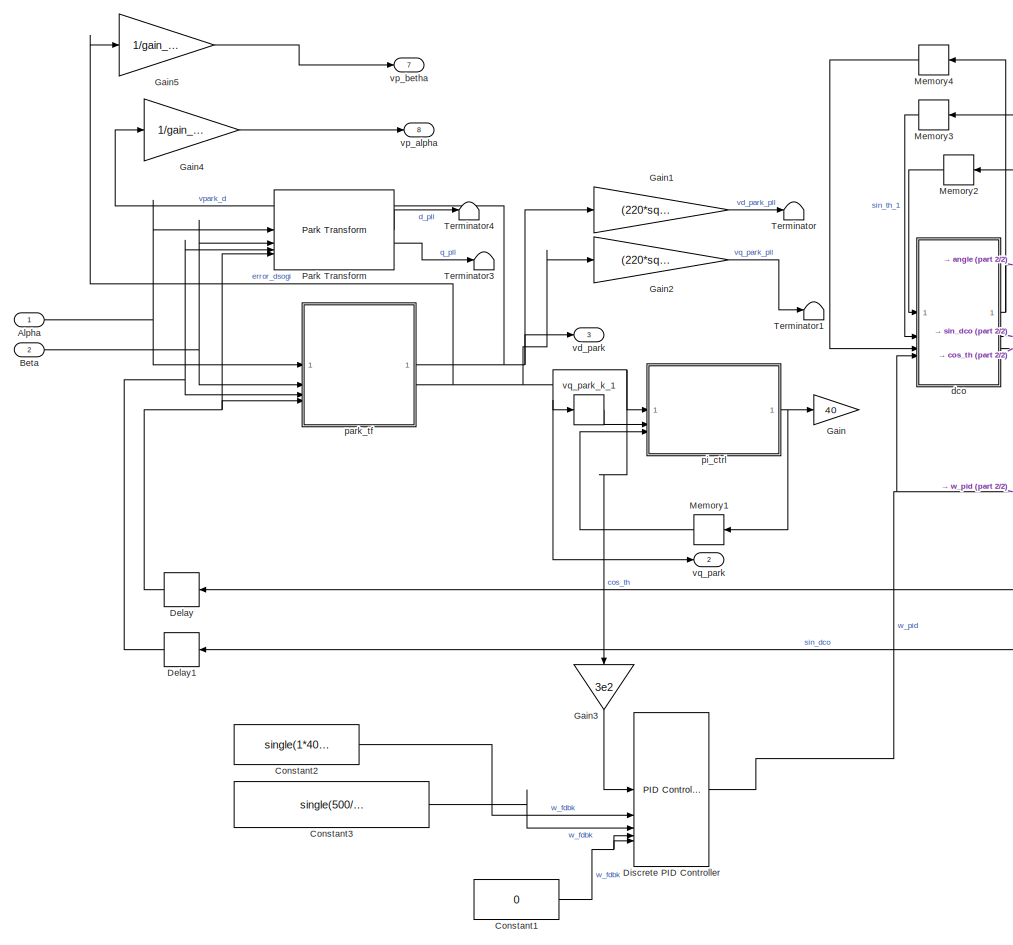
[diagram: ctrl_ez_fcn/pll/srf_pll_dco - part 1/2, center side, full height]
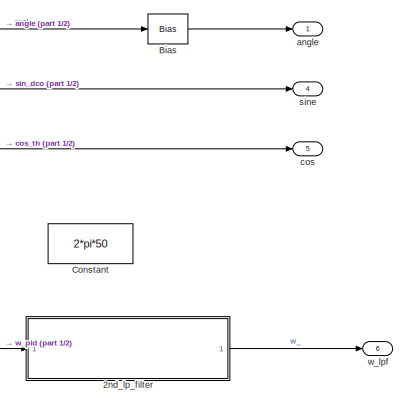
[diagram: ctrl_ez_fcn/pll/srf_pll_dco - part 2/2, middle right region]
BLOCK [SubSystem] ctrl_ez_fcn/pll/srf_pll_dco
BLOCK [SubSystem] ctrl_ez_fcn/pll/srf_pll_dco/2nd_lp_filter
BLOCK [Constant] ctrl_ez_fcn/pll/srf_pll_dco/2nd_lp_filter/Constant1
  OutDataTypeStr = single
  SampleTime = -1
  Value = 0
BLOCK [Constant] ctrl_ez_fcn/pll/srf_pll_dco/2nd_lp_filter/Constant2
  OutDataTypeStr = single
  SampleTime = -1
  Value = 2*pi*50
BLOCK [Gain] ctrl_ez_fcn/pll/srf_pll_dco/2nd_lp_filter/Gain1
  Gain = single(2*1/100)
BLOCK [DiscreteIntegrator] ctrl_ez_fcn/pll/srf_pll_dco/2nd_lp_filter/Integrator
  ICPrevOutput = DiscIntNeverNeededParam
  ICPrevScaledInput = DiscIntNeverNeededParam
  InitialConditionSetting = Auto
  InitialConditionSource = external
  IntegratorMethod = Accumulation: Forward Euler
  SampleTime = -1
  gainval = 1/8e3
BLOCK [DiscreteIntegrator] ctrl_ez_fcn/pll/srf_pll_dco/2nd_lp_filter/Integrator1
  ICPrevOutput = DiscIntNeverNeededParam
  ICPrevScaledInput = DiscIntNeverNeededParam
  InitialConditionSetting = Auto
  InitialConditionSource = external
  IntegratorMethod = Accumulation: Forward Euler
  SampleTime = -1
  gainval = 1/8e3
BLOCK [SubSystem] ctrl_ez_fcn/pll/srf_pll_dco/2nd_lp_filter/MATLAB Function
  ErrorFcn = Stateflow.Translate.translate
  NameLocation = top
  PermitHierarchicalResolution = ExplicitOnly
  SFBlockType = MATLAB Function
  TreatAsAtomicUnit = on
BLOCK [Demux] ctrl_ez_fcn/pll/srf_pll_dco/2nd_lp_filter/MATLAB Function/ Demux 
  Outputs = 1
BLOCK [S-Function] ctrl_ez_fcn/pll/srf_pll_dco/2nd_lp_filter/MATLAB Function/ SFunction 
  EnableBusSupport = on
  FunctionName = sf_sfun
  PortCounts = [1 2]
  SFcnIsStateOwnerBlock = off
  SFunctionDeploymentMode = off
  Tag = Stateflow S-Function 9
BLOCK [Terminator] ctrl_ez_fcn/pll/srf_pll_dco/2nd_lp_filter/MATLAB Function/ Terminator 
BLOCK [Inport] ctrl_ez_fcn/pll/srf_pll_dco/2nd_lp_filter/MATLAB Function/Ts
BLOCK [Outport] ctrl_ez_fcn/pll/srf_pll_dco/2nd_lp_filter/MATLAB Function/forward_gain
  VectorParamsAs1DForOutWhenUnconnected = off
BLOCK [Product] ctrl_ez_fcn/pll/srf_pll_dco/2nd_lp_filter/Product
BLOCK [Sum] ctrl_ez_fcn/pll/srf_pll_dco/2nd_lp_filter/Sum
  IconShape = rectangular
  Inputs = +--
BLOCK [Inport] ctrl_ez_fcn/pll/srf_pll_dco/2nd_lp_filter/u
BLOCK [Outport] ctrl_ez_fcn/pll/srf_pll_dco/2nd_lp_filter/y
  VectorParamsAs1DForOutWhenUnconnected = off
BLOCK [Inport] ctrl_ez_fcn/pll/srf_pll_dco/Alpha
  OutDataTypeStr = single
BLOCK [Inport] ctrl_ez_fcn/pll/srf_pll_dco/Beta
  OutDataTypeStr = single
  Port = 2
BLOCK [Bias] ctrl_ez_fcn/pll/srf_pll_dco/Bias
  Bias = pi
  Commented = through
  SaturateOnIntegerOverflow = off
BLOCK [Constant] ctrl_ez_fcn/pll/srf_pll_dco/Constant
  Commented = on
  OutDataTypeStr = single
  SampleTime = -1
  Value = 2*pi*50
BLOCK [Constant] ctrl_ez_fcn/pll/srf_pll_dco/Constant1
  OutDataTypeStr = single
  SampleTime = -1
  Value = 0
BLOCK [Constant] ctrl_ez_fcn/pll/srf_pll_dco/Constant2
  OutDataTypeStr = single
  SampleTime = -1
  Value = single(1*40);
BLOCK [Constant] ctrl_ez_fcn/pll/srf_pll_dco/Constant3
  OutDataTypeStr = single
  SampleTime = -1
  Value = single(500/8e3)
BLOCK [Delay] ctrl_ez_fcn/pll/srf_pll_dco/Delay
  DelayLength = 1
  InputPortMap = u0
  NameLocation = top
BLOCK [Delay] ctrl_ez_fcn/pll/srf_pll_dco/Delay1
  DelayLength = 1
  InputPortMap = u0
  NameLocation = top
BLOCK [Reference] ctrl_ez_fcn/pll/srf_pll_dco/Discrete PID Controller  REF=slpidlib/PID Controller
  LibrarySourceBlock = simulink/Discrete/Discrete PID Controller
  SourceBlock = slpidlib/PID Controller
  SourceType = PID 1dof
BLOCK [Gain] ctrl_ez_fcn/pll/srf_pll_dco/Gain
  Commented = on
  Gain = 40
  OutDataTypeStr = single
BLOCK [Gain] ctrl_ez_fcn/pll/srf_pll_dco/Gain1
  Gain = (220*sqrt(2))
BLOCK [Gain] ctrl_ez_fcn/pll/srf_pll_dco/Gain2
  Gain = (220*sqrt(2))
BLOCK [Gain] ctrl_ez_fcn/pll/srf_pll_dco/Gain3
  Gain = 3e2
  NameLocation = left
BLOCK [Gain] ctrl_ez_fcn/pll/srf_pll_dco/Gain4
  Gain = 1/gain_vac
  OutDataTypeStr = single
BLOCK [Gain] ctrl_ez_fcn/pll/srf_pll_dco/Gain5
  Gain = 1/gain_vac
  OutDataTypeStr = single
BLOCK [Memory] ctrl_ez_fcn/pll/srf_pll_dco/Memory1
  Commented = on
  InheritSampleTime = on
  NameLocation = top
BLOCK [Memory] ctrl_ez_fcn/pll/srf_pll_dco/Memory2
  InheritSampleTime = on
  InitialCondition = .99
  NameLocation = top
BLOCK [Memory] ctrl_ez_fcn/pll/srf_pll_dco/Memory3
  InheritSampleTime = on
  NameLocation = top
BLOCK [Memory] ctrl_ez_fcn/pll/srf_pll_dco/Memory4
  InheritSampleTime = on
  NameLocation = top
BLOCK [Reference] ctrl_ez_fcn/pll/srf_pll_dco/Park Transform  REF=mcbcontrolslib/Park Transform
  Commented = on
  LibrarySourceBlock = mcbhdllib/Controls/Math Transforms/Park Transform
  SourceBlock = mcbcontrolslib/Park Transform
  SourceType = Park Transform
BLOCK [Terminator] ctrl_ez_fcn/pll/srf_pll_dco/Terminator
BLOCK [Terminator] ctrl_ez_fcn/pll/srf_pll_dco/Terminator1
BLOCK [Terminator] ctrl_ez_fcn/pll/srf_pll_dco/Terminator3
BLOCK [Terminator] ctrl_ez_fcn/pll/srf_pll_dco/Terminator4
BLOCK [Outport] ctrl_ez_fcn/pll/srf_pll_dco/angle
BLOCK [Outport] ctrl_ez_fcn/pll/srf_pll_dco/cos
  Port = 5
BLOCK [SubSystem] ctrl_ez_fcn/pll/srf_pll_dco/dco
  ErrorFcn = Stateflow.Translate.translate
  LibrarySourceBlock = simulink/User-Defined\nFunctions/MATLAB Function
  PermitHierarchicalResolution = ExplicitOnly
  SFBlockType = MATLAB Function
  TreatAsAtomicUnit = on
  VariantControl = false()
BLOCK [Demux] ctrl_ez_fcn/pll/srf_pll_dco/dco/ Demux 
  Outputs = 1
BLOCK [S-Function] ctrl_ez_fcn/pll/srf_pll_dco/dco/ SFunction 
  EnableBusSupport = on
  FunctionName = sf_sfun
  PortCounts = [4 4]
  SFcnIsStateOwnerBlock = off
  SFunctionDeploymentMode = off
  Tag = Stateflow S-Function 23
BLOCK [Terminator] ctrl_ez_fcn/pll/srf_pll_dco/dco/ Terminator 
BLOCK [Outport] ctrl_ez_fcn/pll/srf_pll_dco/dco/cos_th
  Port = 3
BLOCK [Inport] ctrl_ez_fcn/pll/srf_pll_dco/dco/cos_th_1
BLOCK [Outport] ctrl_ez_fcn/pll/srf_pll_dco/dco/sin_th
  Port = 2
BLOCK [Inport] ctrl_ez_fcn/pll/srf_pll_dco/dco/sin_th_1
  Port = 2
BLOCK [Outport] ctrl_ez_fcn/pll/srf_pll_dco/dco/th
BLOCK [Inport] ctrl_ez_fcn/pll/srf_pll_dco/dco/th_1
  Port = 3
BLOCK [Inport] ctrl_ez_fcn/pll/srf_pll_dco/dco/wo
  Port = 4
BLOCK [SubSystem] ctrl_ez_fcn/pll/srf_pll_dco/park_tf
  ErrorFcn = Stateflow.Translate.translate
  LibrarySourceBlock = simulink/User-Defined\nFunctions/MATLAB Function
  PermitHierarchicalResolution = ExplicitOnly
  SFBlockType = MATLAB Function
  TreatAsAtomicUnit = on
  VariantControl = false()
BLOCK [Demux] ctrl_ez_fcn/pll/srf_pll_dco/park_tf/ Demux 
  Outputs = 1
BLOCK [S-Function] ctrl_ez_fcn/pll/srf_pll_dco/park_tf/ SFunction 
  EnableBusSupport = on
  FunctionName = sf_sfun
  PortCounts = [4 3]
  SFcnIsStateOwnerBlock = off
  SFunctionDeploymentMode = off
  Tag = Stateflow S-Function 11
BLOCK [Terminator] ctrl_ez_fcn/pll/srf_pll_dco/park_tf/ Terminator 
BLOCK [Inport] ctrl_ez_fcn/pll/srf_pll_dco/park_tf/cos_th_k_1
  Port = 4
BLOCK [Inport] ctrl_ez_fcn/pll/srf_pll_dco/park_tf/sin_th_k_1
  Port = 3
BLOCK [Outport] ctrl_ez_fcn/pll/srf_pll_dco/park_tf/vd_park
BLOCK [Inport] ctrl_ez_fcn/pll/srf_pll_dco/park_tf/vp_alpha
BLOCK [Inport] ctrl_ez_fcn/pll/srf_pll_dco/park_tf/vp_betha
  Port = 2
BLOCK [Outport] ctrl_ez_fcn/pll/srf_pll_dco/park_tf/vq_park
  Port = 2
BLOCK [SubSystem] ctrl_ez_fcn/pll/srf_pll_dco/pi_ctrl
  Commented = on
  ErrorFcn = Stateflow.Translate.translate
  LibrarySourceBlock = simulink/User-Defined\nFunctions/MATLAB Function
  PermitHierarchicalResolution = ExplicitOnly
  SFBlockType = MATLAB Function
  TreatAsAtomicUnit = on
  VariantControl = false()
BLOCK [Demux] ctrl_ez_fcn/pll/srf_pll_dco/pi_ctrl/ Demux 
  Outputs = 1
BLOCK [S-Function] ctrl_ez_fcn/pll/srf_pll_dco/pi_ctrl/ SFunction 
  EnableBusSupport = on
  FunctionName = sf_sfun
  PortCounts = [3 2]
  SFcnIsStateOwnerBlock = off
  SFunctionDeploymentMode = off
  Tag = Stateflow S-Function 25
BLOCK [Terminator] ctrl_ez_fcn/pll/srf_pll_dco/pi_ctrl/ Terminator 
BLOCK [Inport] ctrl_ez_fcn/pll/srf_pll_dco/pi_ctrl/vq_park
BLOCK [Inport] ctrl_ez_fcn/pll/srf_pll_dco/pi_ctrl/vq_park_k_1
  Port = 2
BLOCK [Outport] ctrl_ez_fcn/pll/srf_pll_dco/pi_ctrl/w_pi
BLOCK [Inport] ctrl_ez_fcn/pll/srf_pll_dco/pi_ctrl/w_pi_k_1
  Port = 3
BLOCK [Outport] ctrl_ez_fcn/pll/srf_pll_dco/sine
  Port = 4
BLOCK [Outport] ctrl_ez_fcn/pll/srf_pll_dco/vd_park
  Port = 3
BLOCK [Outport] ctrl_ez_fcn/pll/srf_pll_dco/vp_alpha
  Port = 8
BLOCK [Outport] ctrl_ez_fcn/pll/srf_pll_dco/vp_betha
  Port = 7
BLOCK [Outport] ctrl_ez_fcn/pll/srf_pll_dco/vq_park
  Port = 2
BLOCK [Memory] ctrl_ez_fcn/pll/srf_pll_dco/vq_park_k_1
  Commented = on
  InheritSampleTime = on
BLOCK [Outport] ctrl_ez_fcn/pll/srf_pll_dco/w_lpf
  Port = 6
BLOCK [Inport] ctrl_ez_fcn/pll/va
  OutDataTypeStr = single
BLOCK [Outport] ctrl_ez_fcn/pll/va_flt
BLOCK [Inport] ctrl_ez_fcn/pll/vb
  OutDataTypeStr = single
  Port = 2
BLOCK [Outport] ctrl_ez_fcn/pll/vb_flt
  Port = 2
BLOCK [Inport] ctrl_ez_fcn/pll/vc
  OutDataTypeStr = single
  Port = 3
BLOCK [Outport] ctrl_ez_fcn/pll/vc_flt
  Port = 3
BLOCK [Outport] ctrl_ez_fcn/pll/vp_alpha
  Port = 9
BLOCK [Outport] ctrl_ez_fcn/pll/vp_betha
  Port = 8
BLOCK [TriggerPort] ctrl_ez_fcn/trigger_ctrl_ez
  PortDimensions = 1
  StatesWhenEnabling = held
  TriggerType = function-call
  VariantControl = (inherit)
BLOCK [Inport] ctrl_ez_fcn/va
  Port = 5
BLOCK [Inport] ctrl_ez_fcn/vb
  Port = 6
BLOCK [Inport] ctrl_ez_fcn/vc
  Port = 7
BLOCK [SubSystem] ctrl_ez_fcn/vd_vq
BLOCK [BusCreator] ctrl_ez_fcn/vd_vq/Bus Creator
  DisplayOption = bar
  InheritFromInputs = on
  Inputs = 3
BLOCK [BusCreator] ctrl_ez_fcn/vd_vq/Bus Creator1
  DisplayOption = bar
  InheritFromInputs = on
  Inputs = 2
BLOCK [BusSelector] ctrl_ez_fcn/vd_vq/Bus Selector
  OutputSignals = w,vc,vb,va,cos,sine
BLOCK [Reference] ctrl_ez_fcn/vd_vq/Clarke Transform  REF=mcbcontrolslib/Clarke Transform
  Commented = on
  LibrarySourceBlock = mcbhdllib/Controls/Math Transforms/Clarke Transform
  NameLocation = left
  SourceBlock = mcbcontrolslib/Clarke Transform
  SourceType = Clarke Transform
BLOCK [Demux] ctrl_ez_fcn/vd_vq/Demux
  Commented = on
  Outputs = 3
BLOCK [Mux] ctrl_ez_fcn/vd_vq/Mux
  Commented = on
  DisplayOption = bar
  Inputs = 3
BLOCK [Reference] ctrl_ez_fcn/vd_vq/Park Transform  REF=mcbcontrolslib/Park Transform
  Commented = on
  SourceBlock = mcbcontrolslib/Park Transform
  SourceType = Park Transform
BLOCK [Terminator] ctrl_ez_fcn/vd_vq/Terminator
  Commented = on
BLOCK [SubSystem] ctrl_ez_fcn/vd_vq/park_tf
  Commented = on
  ErrorFcn = Stateflow.Translate.translate
  LibrarySourceBlock = simulink/User-Defined\nFunctions/MATLAB Function
  PermitHierarchicalResolution = ExplicitOnly
  SFBlockType = MATLAB Function
  TreatAsAtomicUnit = on
  VariantControl = false()
BLOCK [Demux] ctrl_ez_fcn/vd_vq/park_tf/ Demux 
  Outputs = 1
BLOCK [S-Function] ctrl_ez_fcn/vd_vq/park_tf/ SFunction 
  EnableBusSupport = on
  FunctionName = sf_sfun
  PortCounts = [4 3]
  SFcnIsStateOwnerBlock = off
  SFunctionDeploymentMode = off
  Tag = Stateflow S-Function 24
BLOCK [Terminator] ctrl_ez_fcn/vd_vq/park_tf/ Terminator 
BLOCK [Inport] ctrl_ez_fcn/vd_vq/park_tf/cos_th_k_1
  Port = 4
BLOCK [Inport] ctrl_ez_fcn/vd_vq/park_tf/sin_th_k_1
  Port = 3
BLOCK [Outport] ctrl_ez_fcn/vd_vq/park_tf/vd_park
BLOCK [Inport] ctrl_ez_fcn/vd_vq/park_tf/vp_alpha
BLOCK [Inport] ctrl_ez_fcn/vd_vq/park_tf/vp_betha
  Port = 2
BLOCK [Outport] ctrl_ez_fcn/vd_vq/park_tf/vq_park
  Port = 2
BLOCK [Inport] ctrl_ez_fcn/vd_vq/vabc
  Port = 3
BLOCK [Outport] ctrl_ez_fcn/vd_vq/valp_v_beth_sinecos
BLOCK [Inport] ctrl_ez_fcn/vd_vq/vp_alpha
  Port = 2
BLOCK [Inport] ctrl_ez_fcn/vd_vq/vp_betha
BLOCK [Inport] ia
  Port = 2
BLOCK [Inport] ib
  Port = 3
BLOCK [Inport] ic
  Port = 4
BLOCK [Outport] lock
  Port = 4
BLOCK [Inport] ov_out
  Port = 5
BLOCK [Inport] trigger_ctrl_ez
  OutputFunctionCall = on
BLOCK [Inport] va
  Port = 6
BLOCK [Inport] vb
  Port = 8
BLOCK [Inport] vc
  Port = 7
ANNOTATION ctrl_ez_fcn/fail_shit/pi+svpwm/SVPWM: Ta=m*cos(alpha1+30)
ANNOTATION ctrl_ez_fcn/fail_shit/pi+svpwm/SVPWM: Tb=m*sin(alpha1)
ANNOTATION ctrl_ez_fcn/fail_shit/pi+svpwm/SVPWM: To=(1-Ta-Tb)
ANNOTATION ctrl_ez_fcn/fail_shit/pi+svpwm/SVPWM/Subsystem: 3 2 3 2 3 2 3 2 3 2 3 2 4 4 4 4 4 4 4 4 0 1 1 1 1 1 1 1 1 5 6 5 6 5 6 5 6 5 6 5 6
ANNOTATION ctrl_ez_fcn/fail_shit/pi+svpwm/SVPWM/Subsystem: +
ANNOTATION ctrl_ez_fcn/fail_shit/pi+svpwm/SVPWM/Subsystem: -
ANNOTATION ctrl_ez_fcn/fail_shit/pi+svpwm/SVPWM/Subsystem: --------------------------------------------------------
ANNOTATION ctrl_ez_fcn/fail_shit/pi+svpwm/SVPWM/Subsystem: ---Va
ANNOTATION ctrl_ez_fcn/fail_shit/pi+svpwm/SVPWM/Subsystem: ---Vb
ANNOTATION ctrl_ez_fcn/fail_shit/pi+svpwm/SVPWM/Subsystem: ---Vc
ANNOTATION ctrl_ez_fcn/fail_shit/pi+svpwm/SVPWM/Subsystem: Q1 Q3 Q5
ANNOTATION ctrl_ez_fcn/fail_shit/pi+svpwm/SVPWM/Subsystem: Three-Phase VSC Diagram
ANNOTATION ctrl_ez_fcn/fail_shit/pi+svpwm/SVPWM/Subsystem: U0 = 0 0 0
ANNOTATION ctrl_ez_fcn/fail_shit/pi+svpwm/SVPWM/Subsystem: U1 = 1 0 0
ANNOTATION ctrl_ez_fcn/fail_shit/pi+svpwm/SVPWM/Subsystem: U2 = 1 1 0
ANNOTATION ctrl_ez_fcn/fail_shit/pi+svpwm/SVPWM/Subsystem: U3 = 0 1 0
ANNOTATION ctrl_ez_fcn/fail_shit/pi+svpwm/SVPWM/Subsystem: U4 = 0 1 1
ANNOTATION ctrl_ez_fcn/fail_shit/pi+svpwm/SVPWM/Subsystem: U5 = 0 0 1
ANNOTATION ctrl_ez_fcn/fail_shit/pi+svpwm/SVPWM/Subsystem: U6 = 1 0 1
ANNOTATION ctrl_ez_fcn/fail_shit/pi+svpwm/SVPWM/Subsystem: U7 = 1 1 1
ANNOTATION ctrl_ez_fcn/fail_shit/pi+svpwm/SVPWM/Subsystem: Vdc
ANNOTATION ctrl_ez_fcn/fail_shit/pi+svpwm/SVPWM/Subsystem: [1]
ANNOTATION ctrl_ez_fcn/fail_shit/pi+svpwm/SVPWM/Subsystem: [2]
ANNOTATION ctrl_ez_fcn/fail_shit/pi+svpwm/SVPWM/Subsystem: [3]
ANNOTATION ctrl_ez_fcn/fail_shit/pi+svpwm/SVPWM/Subsystem: [4]
ANNOTATION ctrl_ez_fcn/fail_shit/pi+svpwm/SVPWM/Subsystem: [5]
ANNOTATION ctrl_ez_fcn/fail_shit/pi+svpwm/SVPWM/Subsystem: [6]
ANNOTATION ctrl_ez_fcn/fail_shit/pi+svpwm/SVPWM/Subsystem: [Q1]
ANNOTATION ctrl_ez_fcn/fail_shit/pi+svpwm/SVPWM/Subsystem: [Q2]
ANNOTATION ctrl_ez_fcn/fail_shit/pi+svpwm/SVPWM/Subsystem: [Q3]
ANNOTATION ctrl_ez_fcn/fail_shit/pi+svpwm/SVPWM/Subsystem: [Q4]
ANNOTATION ctrl_ez_fcn/fail_shit/pi+svpwm/SVPWM/Subsystem: [Q5]
ANNOTATION ctrl_ez_fcn/fail_shit/pi+svpwm/SVPWM/Subsystem: [Q6]
ANNOTATION ctrl_ez_fcn/fail_shit/pi+svpwm/SVPWM/Subsystem: [n] = Sector number
ANNOTATION ctrl_ez_fcn/fail_shit/pi+svpwm/SVPWM/Subsystem: | | |
ANNOTATION ctrl_ez_fcn/fail_shit/pi+svpwm/SVPWM/Subsystem: | | | | | |
ANNOTATION ctrl_ez_fcn/fail_shit/pi+svpwm/SVPWM/Subsystem/INFO: 3 2 3 2 3 2 3 2 3 2 3 2 4 4 4 4 4 4 4 4 0 1 1 1 1 1 1 1 1 5 6 5 6 5 6 5 6 5 6 5 6
ANNOTATION ctrl_ez_fcn/fail_shit/pi+svpwm/SVPWM/Subsystem/INFO: +
ANNOTATION ctrl_ez_fcn/fail_shit/pi+svpwm/SVPWM/Subsystem/INFO: -
ANNOTATION ctrl_ez_fcn/fail_shit/pi+svpwm/SVPWM/Subsystem/INFO: --------------------------------------------------------
ANNOTATION ctrl_ez_fcn/fail_shit/pi+svpwm/SVPWM/Subsystem/INFO: --------------------------------------------------------------------------------------------------------------------------------------------------------------------
ANNOTATION ctrl_ez_fcn/fail_shit/pi+svpwm/SVPWM/Subsystem/INFO: ---Va
ANNOTATION ctrl_ez_fcn/fail_shit/pi+svpwm/SVPWM/Subsystem/INFO: ---Vb
ANNOTATION ctrl_ez_fcn/fail_shit/pi+svpwm/SVPWM/Subsystem/INFO: ---Vc
ANNOTATION ctrl_ez_fcn/fail_shit/pi+svpwm/SVPWM/Subsystem/INFO: Basic Space Vectors and Switching States
ANNOTATION ctrl_ez_fcn/fail_shit/pi+svpwm/SVPWM/Subsystem/INFO: Pattern #1: With this pattern, identified as "Software-Determined" by Texas Instruments, each PWM channel switches twice per every PWM period.
ANNOTATION ctrl_ez_fcn/fail_shit/pi+svpwm/SVPWM/Subsystem/INFO: Pattern #2: With this pattern, identified as "Hardware-Determined" by Texas Instruments, there is always one PWM channel staying constant for the entire PWM period. So the number of switching times for this pattern is less than pattern #1. As a result, switching losses will be reduced with Pattern #2.
ANNOTATION ctrl_ez_fcn/fail_shit/pi+svpwm/SVPWM/Subsystem/INFO: Q1 Q3 Q5
ANNOTATION ctrl_ez_fcn/fail_shit/pi+svpwm/SVPWM/Subsystem/INFO: Reference: Application Report SPRA524 Space-Vector PWM with TMS320C24x Using H/W & S/W Determined Switching Patterns Zhenyu Yu, Texas Instruments
ANNOTATION ctrl_ez_fcn/fail_shit/pi+svpwm/SVPWM/Subsystem/INFO: The objective of the SV PWM technique is to approximate the reference voltage vector (U*) instantaneously by combination of the switching states corresponding to the basic space vectors.
ANNOTATION ctrl_ez_fcn/fail_shit/pi+svpwm/SVPWM/Subsystem/INFO: Three-Phase VSC Diagram
ANNOTATION ctrl_ez_fcn/fail_shit/pi+svpwm/SVPWM/Subsystem/INFO: Two symmetrical switching patterns have been implemented:
ANNOTATION ctrl_ez_fcn/fail_shit/pi+svpwm/SVPWM/Subsystem/INFO: U0 = 0 0 0
ANNOTATION ctrl_ez_fcn/fail_shit/pi+svpwm/SVPWM/Subsystem/INFO: U1 = 1 0 0
ANNOTATION ctrl_ez_fcn/fail_shit/pi+svpwm/SVPWM/Subsystem/INFO: U2 = 1 1 0
ANNOTATION ctrl_ez_fcn/fail_shit/pi+svpwm/SVPWM/Subsystem/INFO: U3 = 0 1 0
ANNOTATION ctrl_ez_fcn/fail_shit/pi+svpwm/SVPWM/Subsystem/INFO: U4 = 0 1 1
ANNOTATION ctrl_ez_fcn/fail_shit/pi+svpwm/SVPWM/Subsystem/INFO: U5 = 0 0 1
ANNOTATION ctrl_ez_fcn/fail_shit/pi+svpwm/SVPWM/Subsystem/INFO: U6 = 1 0 1
ANNOTATION ctrl_ez_fcn/fail_shit/pi+svpwm/SVPWM/Subsystem/INFO: U7 = 1 1 1
ANNOTATION ctrl_ez_fcn/fail_shit/pi+svpwm/SVPWM/Subsystem/INFO: Vdc
ANNOTATION ctrl_ez_fcn/fail_shit/pi+svpwm/SVPWM/Subsystem/INFO: [1]
ANNOTATION ctrl_ez_fcn/fail_shit/pi+svpwm/SVPWM/Subsystem/INFO: [2]
ANNOTATION ctrl_ez_fcn/fail_shit/pi+svpwm/SVPWM/Subsystem/INFO: [3]
ANNOTATION ctrl_ez_fcn/fail_shit/pi+svpwm/SVPWM/Subsystem/INFO: [4]
ANNOTATION ctrl_ez_fcn/fail_shit/pi+svpwm/SVPWM/Subsystem/INFO: [5]
ANNOTATION ctrl_ez_fcn/fail_shit/pi+svpwm/SVPWM/Subsystem/INFO: [6]
ANNOTATION ctrl_ez_fcn/fail_shit/pi+svpwm/SVPWM/Subsystem/INFO: [Q1]
ANNOTATION ctrl_ez_fcn/fail_shit/pi+svpwm/SVPWM/Subsystem/INFO: [Q2]
ANNOTATION ctrl_ez_fcn/fail_shit/pi+svpwm/SVPWM/Subsystem/INFO: [Q3]
ANNOTATION ctrl_ez_fcn/fail_shit/pi+svpwm/SVPWM/Subsystem/INFO: [Q4]
ANNOTATION ctrl_ez_fcn/fail_shit/pi+svpwm/SVPWM/Subsystem/INFO: [Q5]
ANNOTATION ctrl_ez_fcn/fail_shit/pi+svpwm/SVPWM/Subsystem/INFO: [Q6]
ANNOTATION ctrl_ez_fcn/fail_shit/pi+svpwm/SVPWM/Subsystem/INFO: [n] = Sector number
ANNOTATION ctrl_ez_fcn/fail_shit/pi+svpwm/SVPWM/Subsystem/INFO: | | |
ANNOTATION ctrl_ez_fcn/fail_shit/pi+svpwm/SVPWM/Subsystem/INFO: | | | | | |
ANNOTATION ctrl_ez_fcn/fail_shit/pi+svpwm/svm: (Vmin+Vmax)/2
ANNOTATION ctrl_ez_fcn/pll/DSOGI: Dsogi alpha
ANNOTATION ctrl_ez_fcn/pll/DSOGI: Dsogi alpha1
ANNOTATION ctrl_ez_fcn/pll/SC: c=0.5*(a-b);
ANNOTATION ctrl_ez_fcn/pll/SC: c=0.5*(a+b);
ANNOTATION ctrl_ez_fcn/pll/SC: NSC
NET ctrl_ez_fcn/Bus Creator1:1 -> ctrl_ez_fcn/filter:1, ctrl_ez_fcn/nlock:2, ctrl_ez_fcn/vd_vq:3
LINE ctrl_ez_fcn/Bus Creator:1 -> ctrl_ez_fcn/ctrl:1
LINE ctrl_ez_fcn/NOT:1 -> ctrl_ez_fcn/ctrl:enable
NET ctrl_ez_fcn/ctrl/bus:1 -> ctrl_ez_fcn/ctrl/id_iq:1, ctrl_ez_fcn/ctrl/pi_ctrl:3, ctrl_ez_fcn/ctrl/svm:3
LINE ctrl_ez_fcn/ctrl/id_iq/Bus Selector1:1 -> ctrl_ez_fcn/ctrl/id_iq/Mux:1
LINE ctrl_ez_fcn/ctrl/id_iq/Bus Selector1:2 -> ctrl_ez_fcn/ctrl/id_iq/Mux:2
LINE ctrl_ez_fcn/ctrl/id_iq/Bus Selector1:3 -> ctrl_ez_fcn/ctrl/id_iq/Mux:3
LINE ctrl_ez_fcn/ctrl/id_iq/Bus Selector1:4 -> ctrl_ez_fcn/ctrl/id_iq/park_tf:4
LINE ctrl_ez_fcn/ctrl/id_iq/Bus Selector1:5 -> ctrl_ez_fcn/ctrl/id_iq/park_tf:3
LINE ctrl_ez_fcn/ctrl/id_iq/Clarke Transform:1 -> ctrl_ez_fcn/ctrl/id_iq/Demux1:1
LINE ctrl_ez_fcn/ctrl/id_iq/Demux1:1 -> ctrl_ez_fcn/ctrl/id_iq/park_tf:1
LINE ctrl_ez_fcn/ctrl/id_iq/Demux1:2 -> ctrl_ez_fcn/ctrl/id_iq/park_tf:2
LINE ctrl_ez_fcn/ctrl/id_iq/Demux1:3 -> ctrl_ez_fcn/ctrl/id_iq/Terminator1:1
LINE ctrl_ez_fcn/ctrl/id_iq/In3:1 -> ctrl_ez_fcn/ctrl/id_iq/Bus Selector1:1
LINE ctrl_ez_fcn/ctrl/id_iq/Mux:1 -> ctrl_ez_fcn/ctrl/id_iq/Clarke Transform:1
LINE ctrl_ez_fcn/ctrl/id_iq/park_tf:1 -> ctrl_ez_fcn/ctrl/id_iq/id:1
LINE ctrl_ez_fcn/ctrl/id_iq/park_tf:2 -> ctrl_ez_fcn/ctrl/id_iq/iq:1
LINE ctrl_ez_fcn/ctrl/id_iq:1 -> ctrl_ez_fcn/ctrl/pi_ctrl:1
LINE ctrl_ez_fcn/ctrl/id_iq:2 -> ctrl_ez_fcn/ctrl/pi_ctrl:2
LINE ctrl_ez_fcn/ctrl/pi_ctrl/Bus Selector2:1 -> ctrl_ez_fcn/ctrl/pi_ctrl/Sum3:1
LINE ctrl_ez_fcn/ctrl/pi_ctrl/Bus Selector2:2 -> ctrl_ez_fcn/ctrl/pi_ctrl/Sum5:1
LINE ctrl_ez_fcn/ctrl/pi_ctrl/Bus Selector2:3 -> ctrl_ez_fcn/ctrl/pi_ctrl/Sum1:2
LINE ctrl_ez_fcn/ctrl/pi_ctrl/Constant1:1 -> ctrl_ez_fcn/ctrl/pi_ctrl/Sum4:2
LINE ctrl_ez_fcn/ctrl/pi_ctrl/Constant:1 -> ctrl_ez_fcn/ctrl/pi_ctrl/Sum1:1
LINE ctrl_ez_fcn/ctrl/pi_ctrl/Gain1:1 -> ctrl_ez_fcn/ctrl/pi_ctrl/Sum5:2
LINE ctrl_ez_fcn/ctrl/pi_ctrl/Gain:1 -> ctrl_ez_fcn/ctrl/pi_ctrl/Sum3:2
LINE ctrl_ez_fcn/ctrl/pi_ctrl/Sum1:1 -> ctrl_ez_fcn/ctrl/pi_ctrl/speed_ctrl:1
LINE ctrl_ez_fcn/ctrl/pi_ctrl/Sum2:1 -> ctrl_ez_fcn/ctrl/pi_ctrl/id_ctrl:1
LINE ctrl_ez_fcn/ctrl/pi_ctrl/Sum3:1 -> ctrl_ez_fcn/ctrl/pi_ctrl/d:1
LINE ctrl_ez_fcn/ctrl/pi_ctrl/Sum4:1 -> ctrl_ez_fcn/ctrl/pi_ctrl/iq_ctrl:1
LINE ctrl_ez_fcn/ctrl/pi_ctrl/Sum5:1 -> ctrl_ez_fcn/ctrl/pi_ctrl/q:1
LINE ctrl_ez_fcn/ctrl/pi_ctrl/bus:1 -> ctrl_ez_fcn/ctrl/pi_ctrl/Bus Selector2:1
NET ctrl_ez_fcn/ctrl/pi_ctrl/id:1 -> ctrl_ez_fcn/ctrl/pi_ctrl/Gain1:1, ctrl_ez_fcn/ctrl/pi_ctrl/Sum2:2
LINE ctrl_ez_fcn/ctrl/pi_ctrl/id_ctrl/Accumulator:1 -> ctrl_ez_fcn/ctrl/pi_ctrl/id_ctrl/Add2:2
LINE ctrl_ez_fcn/ctrl/pi_ctrl/id_ctrl/Accumulator:2 -> ctrl_ez_fcn/ctrl/pi_ctrl/id_ctrl/Delay:1
LINE ctrl_ez_fcn/ctrl/pi_ctrl/id_ctrl/Add2:1 -> ctrl_ez_fcn/ctrl/pi_ctrl/id_ctrl/Saturation:1
LINE ctrl_ez_fcn/ctrl/pi_ctrl/id_ctrl/Constant:1 -> ctrl_ez_fcn/ctrl/pi_ctrl/id_ctrl/Switch:1
LINE ctrl_ez_fcn/ctrl/pi_ctrl/id_ctrl/Delay:1 -> ctrl_ez_fcn/ctrl/pi_ctrl/id_ctrl/Switch:2
LINE ctrl_ez_fcn/ctrl/pi_ctrl/id_ctrl/Gain1:1 -> ctrl_ez_fcn/ctrl/pi_ctrl/id_ctrl/Add2:1
LINE ctrl_ez_fcn/ctrl/pi_ctrl/id_ctrl/Gain2:1 -> ctrl_ez_fcn/ctrl/pi_ctrl/id_ctrl/Switch:3
LINE ctrl_ez_fcn/ctrl/pi_ctrl/id_ctrl/Saturation:1 -> ctrl_ez_fcn/ctrl/pi_ctrl/id_ctrl/v_ind:1
LINE ctrl_ez_fcn/ctrl/pi_ctrl/id_ctrl/Switch:1 -> ctrl_ez_fcn/ctrl/pi_ctrl/id_ctrl/Accumulator:1
NET ctrl_ez_fcn/ctrl/pi_ctrl/id_ctrl/i_error:1 -> ctrl_ez_fcn/ctrl/pi_ctrl/id_ctrl/Gain1:1, ctrl_ez_fcn/ctrl/pi_ctrl/id_ctrl/Gain2:1
LINE ctrl_ez_fcn/ctrl/pi_ctrl/id_ctrl:1 -> ctrl_ez_fcn/ctrl/pi_ctrl/Sum3:3
NET ctrl_ez_fcn/ctrl/pi_ctrl/iq:1 -> ctrl_ez_fcn/ctrl/pi_ctrl/Gain:1, ctrl_ez_fcn/ctrl/pi_ctrl/Sum4:1
LINE ctrl_ez_fcn/ctrl/pi_ctrl/iq_ctrl/Accumulator:1 -> ctrl_ez_fcn/ctrl/pi_ctrl/iq_ctrl/Add2:2
LINE ctrl_ez_fcn/ctrl/pi_ctrl/iq_ctrl/Accumulator:2 -> ctrl_ez_fcn/ctrl/pi_ctrl/iq_ctrl/Delay1:1
LINE ctrl_ez_fcn/ctrl/pi_ctrl/iq_ctrl/Add2:1 -> ctrl_ez_fcn/ctrl/pi_ctrl/iq_ctrl/Saturation:1
LINE ctrl_ez_fcn/ctrl/pi_ctrl/iq_ctrl/Constant1:1 -> ctrl_ez_fcn/ctrl/pi_ctrl/iq_ctrl/Switch:1
NET ctrl_ez_fcn/ctrl/pi_ctrl/iq_ctrl/Delay1:1 -> ctrl_ez_fcn/ctrl/pi_ctrl/iq_ctrl/Accumulator:2, ctrl_ez_fcn/ctrl/pi_ctrl/iq_ctrl/Switch:2
LINE ctrl_ez_fcn/ctrl/pi_ctrl/iq_ctrl/Gain1:1 -> ctrl_ez_fcn/ctrl/pi_ctrl/iq_ctrl/Add2:1
LINE ctrl_ez_fcn/ctrl/pi_ctrl/iq_ctrl/Gain2:1 -> ctrl_ez_fcn/ctrl/pi_ctrl/iq_ctrl/Accumulator:1
LINE ctrl_ez_fcn/ctrl/pi_ctrl/iq_ctrl/Saturation:1 -> ctrl_ez_fcn/ctrl/pi_ctrl/iq_ctrl/v_ind:1
LINE ctrl_ez_fcn/ctrl/pi_ctrl/iq_ctrl/Switch:1 -> ctrl_ez_fcn/ctrl/pi_ctrl/iq_ctrl/Gain2:1
NET ctrl_ez_fcn/ctrl/pi_ctrl/iq_ctrl/i_error:1 -> ctrl_ez_fcn/ctrl/pi_ctrl/iq_ctrl/Gain1:1, ctrl_ez_fcn/ctrl/pi_ctrl/iq_ctrl/Switch:3
LINE ctrl_ez_fcn/ctrl/pi_ctrl/iq_ctrl:1 -> ctrl_ez_fcn/ctrl/pi_ctrl/Sum5:3
LINE ctrl_ez_fcn/ctrl/pi_ctrl/speed_ctrl/Accumulator:1 -> ctrl_ez_fcn/ctrl/pi_ctrl/speed_ctrl/Add2:2
LINE ctrl_ez_fcn/ctrl/pi_ctrl/speed_ctrl/Accumulator:2 -> ctrl_ez_fcn/ctrl/pi_ctrl/speed_ctrl/Delay1:1
LINE ctrl_ez_fcn/ctrl/pi_ctrl/speed_ctrl/Add2:1 -> ctrl_ez_fcn/ctrl/pi_ctrl/speed_ctrl/Saturation:1
LINE ctrl_ez_fcn/ctrl/pi_ctrl/speed_ctrl/Constant1:1 -> ctrl_ez_fcn/ctrl/pi_ctrl/speed_ctrl/Switch:1
LINE ctrl_ez_fcn/ctrl/pi_ctrl/speed_ctrl/Delay1:1 -> ctrl_ez_fcn/ctrl/pi_ctrl/speed_ctrl/Switch:2
LINE ctrl_ez_fcn/ctrl/pi_ctrl/speed_ctrl/Gain1:1 -> ctrl_ez_fcn/ctrl/pi_ctrl/speed_ctrl/Add2:1
LINE ctrl_ez_fcn/ctrl/pi_ctrl/speed_ctrl/Gain2:1 -> ctrl_ez_fcn/ctrl/pi_ctrl/speed_ctrl/Accumulator:1
LINE ctrl_ez_fcn/ctrl/pi_ctrl/speed_ctrl/Saturation:1 -> ctrl_ez_fcn/ctrl/pi_ctrl/speed_ctrl/I_D_CTRL_VDC:1
LINE ctrl_ez_fcn/ctrl/pi_ctrl/speed_ctrl/Switch:1 -> ctrl_ez_fcn/ctrl/pi_ctrl/speed_ctrl/Gain2:1
NET ctrl_ez_fcn/ctrl/pi_ctrl/speed_ctrl/i_error:1 -> ctrl_ez_fcn/ctrl/pi_ctrl/speed_ctrl/Gain1:1, ctrl_ez_fcn/ctrl/pi_ctrl/speed_ctrl/Switch:3
LINE ctrl_ez_fcn/ctrl/pi_ctrl/speed_ctrl:1 -> ctrl_ez_fcn/ctrl/pi_ctrl/Sum2:1
LINE ctrl_ez_fcn/ctrl/pi_ctrl:1 -> ctrl_ez_fcn/ctrl/svm:1
LINE ctrl_ez_fcn/ctrl/pi_ctrl:2 -> ctrl_ez_fcn/ctrl/svm:2
LINE ctrl_ez_fcn/ctrl/svm/Bus Selector:1 -> ctrl_ez_fcn/ctrl/svm/mine_invpark_tf:4
LINE ctrl_ez_fcn/ctrl/svm/Bus Selector:2 -> ctrl_ez_fcn/ctrl/svm/mine_invpark_tf:3
LINE ctrl_ez_fcn/ctrl/svm/Bus Selector:3 -> ctrl_ez_fcn/ctrl/svm/section_cal:1
LINE ctrl_ez_fcn/ctrl/svm/Bus Selector:4 -> ctrl_ez_fcn/ctrl/svm/relat_time:1
LINE ctrl_ez_fcn/ctrl/svm/bus:1 -> ctrl_ez_fcn/ctrl/svm/Bus Selector:1
LINE ctrl_ez_fcn/ctrl/svm/d:1 -> ctrl_ez_fcn/ctrl/svm/mine_invpark_tf:1
LINE ctrl_ez_fcn/ctrl/svm/mine_invpark_tf:1 -> ctrl_ez_fcn/ctrl/svm/section_cal:2
LINE ctrl_ez_fcn/ctrl/svm/mine_invpark_tf:2 -> ctrl_ez_fcn/ctrl/svm/section_cal:3
NET ctrl_ez_fcn/ctrl/svm/pi+svpwm1/Add1:1 -> ctrl_ez_fcn/ctrl/svm/pi+svpwm1/Add5:1, ctrl_ez_fcn/ctrl/svm/pi+svpwm1/Min1:1
LINE ctrl_ez_fcn/ctrl/svm/pi+svpwm1/Add2:1 -> ctrl_ez_fcn/ctrl/svm/pi+svpwm1/Add3:2
LINE ctrl_ez_fcn/ctrl/svm/pi+svpwm1/Add3:1 -> ctrl_ez_fcn/ctrl/svm/pi+svpwm1/Gain1:1
LINE ctrl_ez_fcn/ctrl/svm/pi+svpwm1/Add4:1 -> ctrl_ez_fcn/ctrl/svm/pi+svpwm1/Add5:2
LINE ctrl_ez_fcn/ctrl/svm/pi+svpwm1/Add5:1 -> ctrl_ez_fcn/ctrl/svm/pi+svpwm1/Divide:1
LINE ctrl_ez_fcn/ctrl/svm/pi+svpwm1/Add6:1 -> ctrl_ez_fcn/ctrl/svm/pi+svpwm1/I_SET_PI_CTRL:1
LINE ctrl_ez_fcn/ctrl/svm/pi+svpwm1/Add:1 -> ctrl_ez_fcn/ctrl/svm/pi+svpwm1/PI_CTRL:1
LINE ctrl_ez_fcn/ctrl/svm/pi+svpwm1/Constant1:1 -> ctrl_ez_fcn/ctrl/svm/pi+svpwm1/Add6:1
LINE ctrl_ez_fcn/ctrl/svm/pi+svpwm1/Demux:1 -> ctrl_ez_fcn/ctrl/svm/pi+svpwm1/Qa:1
LINE ctrl_ez_fcn/ctrl/svm/pi+svpwm1/Demux:2 -> ctrl_ez_fcn/ctrl/svm/pi+svpwm1/Qb:1
LINE ctrl_ez_fcn/ctrl/svm/pi+svpwm1/Demux:3 -> ctrl_ez_fcn/ctrl/svm/pi+svpwm1/Qc:1
LINE ctrl_ez_fcn/ctrl/svm/pi+svpwm1/Divide:1 -> ctrl_ez_fcn/ctrl/svm/pi+svpwm1/Saturation:1
LINE ctrl_ez_fcn/ctrl/svm/pi+svpwm1/Gain1:1 -> ctrl_ez_fcn/ctrl/svm/pi+svpwm1/Add4:2
LINE ctrl_ez_fcn/ctrl/svm/pi+svpwm1/Gain:1 -> ctrl_ez_fcn/ctrl/svm/pi+svpwm1/Product:2
LINE ctrl_ez_fcn/ctrl/svm/pi+svpwm1/I_SET_PI_CTRL/Accumulator:1 -> ctrl_ez_fcn/ctrl/svm/pi+svpwm1/I_SET_PI_CTRL/Add2:2
LINE ctrl_ez_fcn/ctrl/svm/pi+svpwm1/I_SET_PI_CTRL/Accumulator:2 -> ctrl_ez_fcn/ctrl/svm/pi+svpwm1/I_SET_PI_CTRL/Delay1:1
LINE ctrl_ez_fcn/ctrl/svm/pi+svpwm1/I_SET_PI_CTRL/Add2:1 -> ctrl_ez_fcn/ctrl/svm/pi+svpwm1/I_SET_PI_CTRL/Saturation:1
LINE ctrl_ez_fcn/ctrl/svm/pi+svpwm1/I_SET_PI_CTRL/Constant1:1 -> ctrl_ez_fcn/ctrl/svm/pi+svpwm1/I_SET_PI_CTRL/Switch:1
LINE ctrl_ez_fcn/ctrl/svm/pi+svpwm1/I_SET_PI_CTRL/Delay1:1 -> ctrl_ez_fcn/ctrl/svm/pi+svpwm1/I_SET_PI_CTRL/Switch:2
LINE ctrl_ez_fcn/ctrl/svm/pi+svpwm1/I_SET_PI_CTRL/Gain1:1 -> ctrl_ez_fcn/ctrl/svm/pi+svpwm1/I_SET_PI_CTRL/Add2:1
LINE ctrl_ez_fcn/ctrl/svm/pi+svpwm1/I_SET_PI_CTRL/Gain2:1 -> ctrl_ez_fcn/ctrl/svm/pi+svpwm1/I_SET_PI_CTRL/Accumulator:1
LINE ctrl_ez_fcn/ctrl/svm/pi+svpwm1/I_SET_PI_CTRL/Saturation:1 -> ctrl_ez_fcn/ctrl/svm/pi+svpwm1/I_SET_PI_CTRL/i_set:1
LINE ctrl_ez_fcn/ctrl/svm/pi+svpwm1/I_SET_PI_CTRL/Switch:1 -> ctrl_ez_fcn/ctrl/svm/pi+svpwm1/I_SET_PI_CTRL/Gain2:1
NET ctrl_ez_fcn/ctrl/svm/pi+svpwm1/I_SET_PI_CTRL/v_dc_error:1 -> ctrl_ez_fcn/ctrl/svm/pi+svpwm1/I_SET_PI_CTRL/Gain1:1, ctrl_ez_fcn/ctrl/svm/pi+svpwm1/I_SET_PI_CTRL/Switch:3
LINE ctrl_ez_fcn/ctrl/svm/pi+svpwm1/I_SET_PI_CTRL:1 -> ctrl_ez_fcn/ctrl/svm/pi+svpwm1/Product:1
LINE ctrl_ez_fcn/ctrl/svm/pi+svpwm1/Max:1 -> ctrl_ez_fcn/ctrl/svm/pi+svpwm1/Add2:1
LINE ctrl_ez_fcn/ctrl/svm/pi+svpwm1/Min1:1 -> ctrl_ez_fcn/ctrl/svm/pi+svpwm1/Add4:1
LINE ctrl_ez_fcn/ctrl/svm/pi+svpwm1/Min:1 -> ctrl_ez_fcn/ctrl/svm/pi+svpwm1/Add2:2
LINE ctrl_ez_fcn/ctrl/svm/pi+svpwm1/Mux1:1 -> ctrl_ez_fcn/ctrl/svm/pi+svpwm1/Add:2
NET ctrl_ez_fcn/ctrl/svm/pi+svpwm1/Mux:1 -> ctrl_ez_fcn/ctrl/svm/pi+svpwm1/Add1:1, ctrl_ez_fcn/ctrl/svm/pi+svpwm1/Gain:1, ctrl_ez_fcn/ctrl/svm/pi+svpwm1/Max:1, ctrl_ez_fcn/ctrl/svm/pi+svpwm1/Min:1
LINE ctrl_ez_fcn/ctrl/svm/pi+svpwm1/PI_CTRL/Accumulator:1 -> ctrl_ez_fcn/ctrl/svm/pi+svpwm1/PI_CTRL/Add2:2
LINE ctrl_ez_fcn/ctrl/svm/pi+svpwm1/PI_CTRL/Accumulator:2 -> ctrl_ez_fcn/ctrl/svm/pi+svpwm1/PI_CTRL/Delay1:1
LINE ctrl_ez_fcn/ctrl/svm/pi+svpwm1/PI_CTRL/Add2:1 -> ctrl_ez_fcn/ctrl/svm/pi+svpwm1/PI_CTRL/Saturation:1
LINE ctrl_ez_fcn/ctrl/svm/pi+svpwm1/PI_CTRL/Constant1:1 -> ctrl_ez_fcn/ctrl/svm/pi+svpwm1/PI_CTRL/Switch:1
LINE ctrl_ez_fcn/ctrl/svm/pi+svpwm1/PI_CTRL/Delay1:1 -> ctrl_ez_fcn/ctrl/svm/pi+svpwm1/PI_CTRL/Switch:2
LINE ctrl_ez_fcn/ctrl/svm/pi+svpwm1/PI_CTRL/Gain1:1 -> ctrl_ez_fcn/ctrl/svm/pi+svpwm1/PI_CTRL/Add2:1
LINE ctrl_ez_fcn/ctrl/svm/pi+svpwm1/PI_CTRL/Gain2:1 -> ctrl_ez_fcn/ctrl/svm/pi+svpwm1/PI_CTRL/Accumulator:1
LINE ctrl_ez_fcn/ctrl/svm/pi+svpwm1/PI_CTRL/Saturation:1 -> ctrl_ez_fcn/ctrl/svm/pi+svpwm1/PI_CTRL/v_ind:1
LINE ctrl_ez_fcn/ctrl/svm/pi+svpwm1/PI_CTRL/Switch:1 -> ctrl_ez_fcn/ctrl/svm/pi+svpwm1/PI_CTRL/Gain2:1
NET ctrl_ez_fcn/ctrl/svm/pi+svpwm1/PI_CTRL/i_error:1 -> ctrl_ez_fcn/ctrl/svm/pi+svpwm1/PI_CTRL/Gain1:1, ctrl_ez_fcn/ctrl/svm/pi+svpwm1/PI_CTRL/Switch:3
LINE ctrl_ez_fcn/ctrl/svm/pi+svpwm1/PI_CTRL:1 -> ctrl_ez_fcn/ctrl/svm/pi+svpwm1/Add1:2
LINE ctrl_ez_fcn/ctrl/svm/pi+svpwm1/Product:1 -> ctrl_ez_fcn/ctrl/svm/pi+svpwm1/Add:1
LINE ctrl_ez_fcn/ctrl/svm/pi+svpwm1/Saturation:1 -> ctrl_ez_fcn/ctrl/svm/pi+svpwm1/Demux:1
LINE ctrl_ez_fcn/ctrl/svm/pi+svpwm1/Subsystem/Constant:1 -> ctrl_ez_fcn/ctrl/svm/pi+svpwm1/Subsystem/Counter:1
NET ctrl_ez_fcn/ctrl/svm/pi+svpwm1/Subsystem/Counter:1 -> ctrl_ez_fcn/ctrl/svm/pi+svpwm1/Subsystem/va_lt:1, ctrl_ez_fcn/ctrl/svm/pi+svpwm1/Subsystem/vb_lt:1, ctrl_ez_fcn/ctrl/svm/pi+svpwm1/Subsystem/vc_lt:1
LINE ctrl_ez_fcn/ctrl/svm/pi+svpwm1/Subsystem/va_lt:1 -> ctrl_ez_fcn/ctrl/svm/pi+svpwm1/Subsystem/angle_wt:1
LINE ctrl_ez_fcn/ctrl/svm/pi+svpwm1/Subsystem/vb_lt:1 -> ctrl_ez_fcn/ctrl/svm/pi+svpwm1/Subsystem/angle_wt1:1
LINE ctrl_ez_fcn/ctrl/svm/pi+svpwm1/Subsystem/vc_lt:1 -> ctrl_ez_fcn/ctrl/svm/pi+svpwm1/Subsystem/angle_wt2:1
LINE ctrl_ez_fcn/ctrl/svm/pi+svpwm1/Subsystem:1 -> ctrl_ez_fcn/ctrl/svm/pi+svpwm1/Mux:1
LINE ctrl_ez_fcn/ctrl/svm/pi+svpwm1/Subsystem:2 -> ctrl_ez_fcn/ctrl/svm/pi+svpwm1/Mux:2
LINE ctrl_ez_fcn/ctrl/svm/pi+svpwm1/Subsystem:3 -> ctrl_ez_fcn/ctrl/svm/pi+svpwm1/Mux:3
LINE ctrl_ez_fcn/ctrl/svm/pi+svpwm1/a:1 -> ctrl_ez_fcn/ctrl/svm/pi+svpwm1/Mux1:1
LINE ctrl_ez_fcn/ctrl/svm/pi+svpwm1/b:1 -> ctrl_ez_fcn/ctrl/svm/pi+svpwm1/Mux1:2
LINE ctrl_ez_fcn/ctrl/svm/pi+svpwm1/c:1 -> ctrl_ez_fcn/ctrl/svm/pi+svpwm1/Mux1:3
NET ctrl_ez_fcn/ctrl/svm/pi+svpwm1/ov_out:1 -> ctrl_ez_fcn/ctrl/svm/pi+svpwm1/Add3:1, ctrl_ez_fcn/ctrl/svm/pi+svpwm1/Add6:2, ctrl_ez_fcn/ctrl/svm/pi+svpwm1/Divide:2
LINE ctrl_ez_fcn/ctrl/svm/q:1 -> ctrl_ez_fcn/ctrl/svm/mine_invpark_tf:2
NET ctrl_ez_fcn/ctrl/svm/relat_time/Add1:1 -> ctrl_ez_fcn/ctrl/svm/relat_time/Sin:1, ctrl_ez_fcn/ctrl/svm/relat_time/SinCos Embedded Optimized:1
LINE ctrl_ez_fcn/ctrl/svm/relat_time/Add2:1 -> ctrl_ez_fcn/ctrl/svm/relat_time/Saturation2:1
LINE ctrl_ez_fcn/ctrl/svm/relat_time/Constant1:1 -> ctrl_ez_fcn/ctrl/svm/relat_time/Divide1:3
LINE ctrl_ez_fcn/ctrl/svm/relat_time/Constant2:1 -> ctrl_ez_fcn/ctrl/svm/relat_time/Add2:1
LINE ctrl_ez_fcn/ctrl/svm/relat_time/Constant:1 -> ctrl_ez_fcn/ctrl/svm/relat_time/Add1:1
LINE ctrl_ez_fcn/ctrl/svm/relat_time/Divide1:1 -> ctrl_ez_fcn/ctrl/svm/relat_time/Saturation:1
LINE ctrl_ez_fcn/ctrl/svm/relat_time/Gain:1 -> ctrl_ez_fcn/ctrl/svm/relat_time/Terminator:1
LINE ctrl_ez_fcn/ctrl/svm/relat_time/IIR Filter:1 -> ctrl_ez_fcn/ctrl/svm/relat_time/Saturation3:1
NET ctrl_ez_fcn/ctrl/svm/relat_time/Mux1:1 -> ctrl_ez_fcn/ctrl/svm/relat_time/Selector1:1, ctrl_ez_fcn/ctrl/svm/relat_time/Switch:1
LINE ctrl_ez_fcn/ctrl/svm/relat_time/Mux:1 -> ctrl_ez_fcn/ctrl/svm/relat_time/Divide1:1
LINE ctrl_ez_fcn/ctrl/svm/relat_time/Saturation2:1 -> ctrl_ez_fcn/ctrl/svm/relat_time/Mux1:2
LINE ctrl_ez_fcn/ctrl/svm/relat_time/Saturation3:1 -> ctrl_ez_fcn/ctrl/svm/relat_time/Divide1:4
NET ctrl_ez_fcn/ctrl/svm/relat_time/Saturation:1 -> ctrl_ez_fcn/ctrl/svm/relat_time/Mux1:1, ctrl_ez_fcn/ctrl/svm/relat_time/Sum of Elements:1
LINE ctrl_ez_fcn/ctrl/svm/relat_time/Selector1:1 -> ctrl_ez_fcn/ctrl/svm/relat_time/Switch:3
LINE ctrl_ez_fcn/ctrl/svm/relat_time/SinCos Embedded Optimized1:1 -> ctrl_ez_fcn/ctrl/svm/relat_time/Mux:2
LINE ctrl_ez_fcn/ctrl/svm/relat_time/SinCos Embedded Optimized1:2 -> ctrl_ez_fcn/ctrl/svm/relat_time/Terminator2:1
LINE ctrl_ez_fcn/ctrl/svm/relat_time/SinCos Embedded Optimized:1 -> ctrl_ez_fcn/ctrl/svm/relat_time/Mux:1
LINE ctrl_ez_fcn/ctrl/svm/relat_time/SinCos Embedded Optimized:2 -> ctrl_ez_fcn/ctrl/svm/relat_time/Terminator1:1
LINE ctrl_ez_fcn/ctrl/svm/relat_time/Sum of Elements:1 -> ctrl_ez_fcn/ctrl/svm/relat_time/Add2:2
NET ctrl_ez_fcn/ctrl/svm/relat_time/Switch:1 -> ctrl_ez_fcn/ctrl/svm/relat_time/Gain:1, ctrl_ez_fcn/ctrl/svm/relat_time/ta_tb_t0:1
NET ctrl_ez_fcn/ctrl/svm/relat_time/alpha:1 -> ctrl_ez_fcn/ctrl/svm/relat_time/Add1:2, ctrl_ez_fcn/ctrl/svm/relat_time/Sin1:1, ctrl_ez_fcn/ctrl/svm/relat_time/SinCos Embedded Optimized1:1
LINE ctrl_ez_fcn/ctrl/svm/relat_time/odd_section:1 -> ctrl_ez_fcn/ctrl/svm/relat_time/Switch:2
LINE ctrl_ez_fcn/ctrl/svm/relat_time/vdc:1 -> ctrl_ez_fcn/ctrl/svm/relat_time/IIR Filter:1
LINE ctrl_ez_fcn/ctrl/svm/relat_time/vs_mag:1 -> ctrl_ez_fcn/ctrl/svm/relat_time/Divide1:2
LINE ctrl_ez_fcn/ctrl/svm/relat_time:1 -> ctrl_ez_fcn/ctrl/svm/threshold:1
LINE ctrl_ez_fcn/ctrl/svm/section_cal/<w>:1 -> ctrl_ez_fcn/ctrl/svm/section_cal/sector_selection:2
LINE ctrl_ez_fcn/ctrl/svm/section_cal/Add:1 -> ctrl_ez_fcn/ctrl/svm/section_cal/Sqrt:1
LINE ctrl_ez_fcn/ctrl/svm/section_cal/Bias1:1 -> ctrl_ez_fcn/ctrl/svm/section_cal/sector_selection:3
LINE ctrl_ez_fcn/ctrl/svm/section_cal/Bias:1 -> ctrl_ez_fcn/ctrl/svm/section_cal/Terminator:1
LINE ctrl_ez_fcn/ctrl/svm/section_cal/Cartesian to Polar:2 -> ctrl_ez_fcn/ctrl/svm/section_cal/Math Function2:1
LINE ctrl_ez_fcn/ctrl/svm/section_cal/Constant3:1 -> ctrl_ez_fcn/ctrl/svm/section_cal/Math Function2:2
LINE ctrl_ez_fcn/ctrl/svm/section_cal/Direct Lookup Table (n-D):1 -> ctrl_ez_fcn/ctrl/svm/section_cal/SA SB SC:1
LINE ctrl_ez_fcn/ctrl/svm/section_cal/Product1:1 -> ctrl_ez_fcn/ctrl/svm/section_cal/Add:2
LINE ctrl_ez_fcn/ctrl/svm/section_cal/Product:1 -> ctrl_ez_fcn/ctrl/svm/section_cal/Add:1
LINE ctrl_ez_fcn/ctrl/svm/section_cal/Sqrt:1 -> ctrl_ez_fcn/ctrl/svm/section_cal/vs_mag:1
NET ctrl_ez_fcn/ctrl/svm/section_cal/atan2:1 -> ctrl_ez_fcn/ctrl/svm/section_cal/Bias1:1, ctrl_ez_fcn/ctrl/svm/section_cal/mod_fcn:1
LINE ctrl_ez_fcn/ctrl/svm/section_cal/mod_fcn:1 -> ctrl_ez_fcn/ctrl/svm/section_cal/sector_selection:1
NET ctrl_ez_fcn/ctrl/svm/section_cal/sector_selection:1 -> ctrl_ez_fcn/ctrl/svm/section_cal/Bias:1, ctrl_ez_fcn/ctrl/svm/section_cal/Direct Lookup Table (n-D):1
LINE ctrl_ez_fcn/ctrl/svm/section_cal/sector_selection:2 -> ctrl_ez_fcn/ctrl/svm/section_cal/alpha:1
LINE ctrl_ez_fcn/ctrl/svm/section_cal/sector_selection:3 -> ctrl_ez_fcn/ctrl/svm/section_cal/oddsect:1
LINE ctrl_ez_fcn/ctrl/svm/section_cal/sector_selection:4 -> ctrl_ez_fcn/ctrl/svm/section_cal/Terminator1:1
NET ctrl_ez_fcn/ctrl/svm/section_cal/v_alp:1 -> ctrl_ez_fcn/ctrl/svm/section_cal/Cartesian to Polar:1, ctrl_ez_fcn/ctrl/svm/section_cal/Product:1, ctrl_ez_fcn/ctrl/svm/section_cal/Product:2, ctrl_ez_fcn/ctrl/svm/section_cal/atan2:2
NET ctrl_ez_fcn/ctrl/svm/section_cal/v_bet:1 -> ctrl_ez_fcn/ctrl/svm/section_cal/Cartesian to Polar:2, ctrl_ez_fcn/ctrl/svm/section_cal/Product1:1, ctrl_ez_fcn/ctrl/svm/section_cal/Product1:2, ctrl_ez_fcn/ctrl/svm/section_cal/atan2:1
LINE ctrl_ez_fcn/ctrl/svm/section_cal:1 -> ctrl_ez_fcn/ctrl/svm/relat_time:2
LINE ctrl_ez_fcn/ctrl/svm/section_cal:2 -> ctrl_ez_fcn/ctrl/svm/relat_time:3
LINE ctrl_ez_fcn/ctrl/svm/section_cal:3 -> ctrl_ez_fcn/ctrl/svm/relat_time:4
LINE ctrl_ez_fcn/ctrl/svm/section_cal:4 -> ctrl_ez_fcn/ctrl/svm/threshold:2
LINE ctrl_ez_fcn/ctrl/svm/threshold/Add3:1 -> ctrl_ez_fcn/ctrl/svm/threshold/Saturation4:1
LINE ctrl_ez_fcn/ctrl/svm/threshold/Add4:1 -> ctrl_ez_fcn/ctrl/svm/threshold/Saturation5:1
LINE ctrl_ez_fcn/ctrl/svm/threshold/Demux1:1 -> ctrl_ez_fcn/ctrl/svm/threshold/Add4:1
LINE ctrl_ez_fcn/ctrl/svm/threshold/Demux1:2 -> ctrl_ez_fcn/ctrl/svm/threshold/Add3:1
LINE ctrl_ez_fcn/ctrl/svm/threshold/Demux1:3 -> ctrl_ez_fcn/ctrl/svm/threshold/Gain:1
LINE ctrl_ez_fcn/ctrl/svm/threshold/Demux:1 -> ctrl_ez_fcn/ctrl/svm/threshold/qa:1
LINE ctrl_ez_fcn/ctrl/svm/threshold/Demux:2 -> ctrl_ez_fcn/ctrl/svm/threshold/qb:1
LINE ctrl_ez_fcn/ctrl/svm/threshold/Demux:3 -> ctrl_ez_fcn/ctrl/svm/threshold/qc:1
NET ctrl_ez_fcn/ctrl/svm/threshold/Gain:1 -> ctrl_ez_fcn/ctrl/svm/threshold/Add3:2, ctrl_ez_fcn/ctrl/svm/threshold/Mux:1
LINE ctrl_ez_fcn/ctrl/svm/threshold/Mux:1 -> ctrl_ez_fcn/ctrl/svm/threshold/Selector:1
LINE ctrl_ez_fcn/ctrl/svm/threshold/SA SB SC:1 -> ctrl_ez_fcn/ctrl/svm/threshold/Selector:2
LINE ctrl_ez_fcn/ctrl/svm/threshold/Saturation1:1 -> ctrl_ez_fcn/ctrl/svm/threshold/Demux:1
NET ctrl_ez_fcn/ctrl/svm/threshold/Saturation4:1 -> ctrl_ez_fcn/ctrl/svm/threshold/Add4:2, ctrl_ez_fcn/ctrl/svm/threshold/Mux:2
LINE ctrl_ez_fcn/ctrl/svm/threshold/Saturation5:1 -> ctrl_ez_fcn/ctrl/svm/threshold/Mux:3
LINE ctrl_ez_fcn/ctrl/svm/threshold/Selector:1 -> ctrl_ez_fcn/ctrl/svm/threshold/Saturation1:1
LINE ctrl_ez_fcn/ctrl/svm/threshold/ta_tb_t0:1 -> ctrl_ez_fcn/ctrl/svm/threshold/Demux1:1
LINE ctrl_ez_fcn/ctrl/svm/threshold:1 -> ctrl_ez_fcn/ctrl/svm/Qa:1
LINE ctrl_ez_fcn/ctrl/svm/threshold:2 -> ctrl_ez_fcn/ctrl/svm/Qb:1
LINE ctrl_ez_fcn/ctrl/svm/threshold:3 -> ctrl_ez_fcn/ctrl/svm/Qc:1
LINE ctrl_ez_fcn/ctrl/svm:1 -> ctrl_ez_fcn/ctrl/Qa:1
LINE ctrl_ez_fcn/ctrl/svm:2 -> ctrl_ez_fcn/ctrl/Qb:1
LINE ctrl_ez_fcn/ctrl/svm:3 -> ctrl_ez_fcn/ctrl/Qc:1
LINE ctrl_ez_fcn/ctrl:1 -> ctrl_ez_fcn/Qa:1
LINE ctrl_ez_fcn/ctrl:2 -> ctrl_ez_fcn/Qb:1
LINE ctrl_ez_fcn/ctrl:3 -> ctrl_ez_fcn/Qc:1
LINE ctrl_ez_fcn/fail_shit/pi+svpwm/Add1:1 -> ctrl_ez_fcn/fail_shit/pi+svpwm/svm:1
LINE ctrl_ez_fcn/fail_shit/pi+svpwm/Constant1:1 -> ctrl_ez_fcn/fail_shit/pi+svpwm/Inverse Park Transform:1
NET ctrl_ez_fcn/fail_shit/pi+svpwm/Constant2:1 -> ctrl_ez_fcn/fail_shit/pi+svpwm/Inverse Park Transform1:2, ctrl_ez_fcn/fail_shit/pi+svpwm/Inverse Park Transform:2
LINE ctrl_ez_fcn/fail_shit/pi+svpwm/Constant3:1 -> ctrl_ez_fcn/fail_shit/pi+svpwm/svm:2
LINE ctrl_ez_fcn/fail_shit/pi+svpwm/Constant4:1 -> ctrl_ez_fcn/fail_shit/pi+svpwm/Inverse Park Transform1:1
LINE ctrl_ez_fcn/fail_shit/pi+svpwm/Constant:1 -> ctrl_ez_fcn/fail_shit/pi+svpwm/Counter:1
NET ctrl_ez_fcn/fail_shit/pi+svpwm/Counter:1 -> ctrl_ez_fcn/fail_shit/pi+svpwm/Direct Lookup Table (n-D)1:1, ctrl_ez_fcn/fail_shit/pi+svpwm/Direct Lookup Table (n-D)2:1
NET ctrl_ez_fcn/fail_shit/pi+svpwm/Direct Lookup Table (n-D)1:1 -> ctrl_ez_fcn/fail_shit/pi+svpwm/Inverse Park Transform1:3, ctrl_ez_fcn/fail_shit/pi+svpwm/Inverse Park Transform:3, ctrl_ez_fcn/fail_shit/pi+svpwm/SVPWM:3, ctrl_ez_fcn/fail_shit/pi+svpwm/clarke_park_tf:4
NET ctrl_ez_fcn/fail_shit/pi+svpwm/Direct Lookup Table (n-D)2:1 -> ctrl_ez_fcn/fail_shit/pi+svpwm/Inverse Park Transform1:4, ctrl_ez_fcn/fail_shit/pi+svpwm/Inverse Park Transform:4, ctrl_ez_fcn/fail_shit/pi+svpwm/SVPWM:4, ctrl_ez_fcn/fail_shit/pi+svpwm/clarke_park_tf:5
LINE ctrl_ez_fcn/fail_shit/pi+svpwm/Inverse Clarke Transform1:1 -> ctrl_ez_fcn/fail_shit/pi+svpwm/Mux1:1
LINE ctrl_ez_fcn/fail_shit/pi+svpwm/Inverse Clarke Transform1:2 -> ctrl_ez_fcn/fail_shit/pi+svpwm/Mux1:2
LINE ctrl_ez_fcn/fail_shit/pi+svpwm/Inverse Clarke Transform1:3 -> ctrl_ez_fcn/fail_shit/pi+svpwm/Mux1:3
LINE ctrl_ez_fcn/fail_shit/pi+svpwm/Inverse Clarke Transform:1 -> ctrl_ez_fcn/fail_shit/pi+svpwm/Mux2:1
LINE ctrl_ez_fcn/fail_shit/pi+svpwm/Inverse Clarke Transform:2 -> ctrl_ez_fcn/fail_shit/pi+svpwm/Mux2:2
LINE ctrl_ez_fcn/fail_shit/pi+svpwm/Inverse Clarke Transform:3 -> ctrl_ez_fcn/fail_shit/pi+svpwm/Mux2:3
LINE ctrl_ez_fcn/fail_shit/pi+svpwm/Inverse Park Transform1:1 -> ctrl_ez_fcn/fail_shit/pi+svpwm/Inverse Clarke Transform1:1
LINE ctrl_ez_fcn/fail_shit/pi+svpwm/Inverse Park Transform1:2 -> ctrl_ez_fcn/fail_shit/pi+svpwm/Inverse Clarke Transform1:2
LINE ctrl_ez_fcn/fail_shit/pi+svpwm/Inverse Park Transform:1 -> ctrl_ez_fcn/fail_shit/pi+svpwm/Inverse Clarke Transform:1
LINE ctrl_ez_fcn/fail_shit/pi+svpwm/Inverse Park Transform:2 -> ctrl_ez_fcn/fail_shit/pi+svpwm/Inverse Clarke Transform:2
NET ctrl_ez_fcn/fail_shit/pi+svpwm/Mux1:1 -> ctrl_ez_fcn/fail_shit/pi+svpwm/Add1:1, ctrl_ez_fcn/fail_shit/pi+svpwm/svm:3
LINE ctrl_ez_fcn/fail_shit/pi+svpwm/Mux2:1 -> ctrl_ez_fcn/fail_shit/pi+svpwm/Add1:2
LINE ctrl_ez_fcn/fail_shit/pi+svpwm/PI_CTRL/Accumulator:1 -> ctrl_ez_fcn/fail_shit/pi+svpwm/PI_CTRL/Add2:2
LINE ctrl_ez_fcn/fail_shit/pi+svpwm/PI_CTRL/Accumulator:2 -> ctrl_ez_fcn/fail_shit/pi+svpwm/PI_CTRL/Delay1:1
LINE ctrl_ez_fcn/fail_shit/pi+svpwm/PI_CTRL/Add1:1 -> ctrl_ez_fcn/fail_shit/pi+svpwm/PI_CTRL/vo_controller2:1
LINE ctrl_ez_fcn/fail_shit/pi+svpwm/PI_CTRL/Add2:1 -> ctrl_ez_fcn/fail_shit/pi+svpwm/PI_CTRL/Demux:1
LINE ctrl_ez_fcn/fail_shit/pi+svpwm/PI_CTRL/Add4:1 -> ctrl_ez_fcn/fail_shit/pi+svpwm/PI_CTRL/Mux:2
LINE ctrl_ez_fcn/fail_shit/pi+svpwm/PI_CTRL/Constant15:1 -> ctrl_ez_fcn/fail_shit/pi+svpwm/PI_CTRL/vo_controller2:2
LINE ctrl_ez_fcn/fail_shit/pi+svpwm/PI_CTRL/Constant16:1 -> ctrl_ez_fcn/fail_shit/pi+svpwm/PI_CTRL/vo_controller2:3
LINE ctrl_ez_fcn/fail_shit/pi+svpwm/PI_CTRL/Constant1:1 -> ctrl_ez_fcn/fail_shit/pi+svpwm/PI_CTRL/Switch:1
NET ctrl_ez_fcn/fail_shit/pi+svpwm/PI_CTRL/Constant4:1 -> ctrl_ez_fcn/fail_shit/pi+svpwm/PI_CTRL/vo_controller2:4, ctrl_ez_fcn/fail_shit/pi+svpwm/PI_CTRL/vo_controller2:5
LINE ctrl_ez_fcn/fail_shit/pi+svpwm/PI_CTRL/Delay1:1 -> ctrl_ez_fcn/fail_shit/pi+svpwm/PI_CTRL/Switch:2
LINE ctrl_ez_fcn/fail_shit/pi+svpwm/PI_CTRL/Delay:1 -> ctrl_ez_fcn/fail_shit/pi+svpwm/PI_CTRL/Add1:2
LINE ctrl_ez_fcn/fail_shit/pi+svpwm/PI_CTRL/Demux:1 -> ctrl_ez_fcn/fail_shit/pi+svpwm/PI_CTRL/Vd_inductor:1
LINE ctrl_ez_fcn/fail_shit/pi+svpwm/PI_CTRL/Demux:2 -> ctrl_ez_fcn/fail_shit/pi+svpwm/PI_CTRL/Vq_inductor:1
LINE ctrl_ez_fcn/fail_shit/pi+svpwm/PI_CTRL/Gain1:1 -> ctrl_ez_fcn/fail_shit/pi+svpwm/PI_CTRL/Add2:1
LINE ctrl_ez_fcn/fail_shit/pi+svpwm/PI_CTRL/Gain2:1 -> ctrl_ez_fcn/fail_shit/pi+svpwm/PI_CTRL/Accumulator:1
LINE ctrl_ez_fcn/fail_shit/pi+svpwm/PI_CTRL/Gain:1 -> ctrl_ez_fcn/fail_shit/pi+svpwm/PI_CTRL/Mux:1
NET ctrl_ez_fcn/fail_shit/pi+svpwm/PI_CTRL/Mux:1 -> ctrl_ez_fcn/fail_shit/pi+svpwm/PI_CTRL/Gain1:1, ctrl_ez_fcn/fail_shit/pi+svpwm/PI_CTRL/Switch:3
LINE ctrl_ez_fcn/fail_shit/pi+svpwm/PI_CTRL/Switch:1 -> ctrl_ez_fcn/fail_shit/pi+svpwm/PI_CTRL/Gain2:1
LINE ctrl_ez_fcn/fail_shit/pi+svpwm/PI_CTRL/id:1 -> ctrl_ez_fcn/fail_shit/pi+svpwm/PI_CTRL/Gain:1
LINE ctrl_ez_fcn/fail_shit/pi+svpwm/PI_CTRL/iq:1 -> ctrl_ez_fcn/fail_shit/pi+svpwm/PI_CTRL/Add4:2
LINE ctrl_ez_fcn/fail_shit/pi+svpwm/PI_CTRL/set_point:1 -> ctrl_ez_fcn/fail_shit/pi+svpwm/PI_CTRL/Add4:1
LINE ctrl_ez_fcn/fail_shit/pi+svpwm/PI_CTRL/vo_controller2:1 -> ctrl_ez_fcn/fail_shit/pi+svpwm/PI_CTRL/Terminator:1
LINE ctrl_ez_fcn/fail_shit/pi+svpwm/PI_CTRL:1 -> ctrl_ez_fcn/fail_shit/pi+svpwm/SVPWM:1
LINE ctrl_ez_fcn/fail_shit/pi+svpwm/PI_CTRL:2 -> ctrl_ez_fcn/fail_shit/pi+svpwm/SVPWM:2
NET ctrl_ez_fcn/fail_shit/pi+svpwm/SVPWM/Add1:1 -> ctrl_ez_fcn/fail_shit/pi+svpwm/SVPWM/Index Vector1:3, ctrl_ez_fcn/fail_shit/pi+svpwm/SVPWM/Index Vector1:4, ctrl_ez_fcn/fail_shit/pi+svpwm/SVPWM/Index Vector2:5, ctrl_ez_fcn/fail_shit/pi+svpwm/SVPWM/Index Vector2:6, ctrl_ez_fcn/fail_shit/pi+svpwm/SVPWM/Index Vector:2, ctrl_ez_fcn/fail_shit/pi+svpwm/SVPWM/Index Vector:7
NET ctrl_ez_fcn/fail_shit/pi+svpwm/SVPWM/Add:1 -> ctrl_ez_fcn/fail_shit/pi+svpwm/SVPWM/Add1:3, ctrl_ez_fcn/fail_shit/pi+svpwm/SVPWM/Index Vector1:2, ctrl_ez_fcn/fail_shit/pi+svpwm/SVPWM/Index Vector1:5, ctrl_ez_fcn/fail_shit/pi+svpwm/SVPWM/Index Vector2:4, ctrl_ez_fcn/fail_shit/pi+svpwm/SVPWM/Index Vector2:7, ctrl_ez_fcn/fail_shit/pi+svpwm/SVPWM/Index Vector:3, ctrl_ez_fcn/fail_shit/pi+svpwm/SVPWM/Index Vector:6
LINE ctrl_ez_fcn/fail_shit/pi+svpwm/SVPWM/Cartesian to Polar:1 -> ctrl_ez_fcn/fail_shit/pi+svpwm/SVPWM/Product:1
NET ctrl_ez_fcn/fail_shit/pi+svpwm/SVPWM/Cartesian to Polar:2 -> ctrl_ez_fcn/fail_shit/pi+svpwm/SVPWM/Mod:1, ctrl_ez_fcn/fail_shit/pi+svpwm/SVPWM/Sum4:1
LINE ctrl_ez_fcn/fail_shit/pi+svpwm/SVPWM/Constant1:1 -> ctrl_ez_fcn/fail_shit/pi+svpwm/SVPWM/Mod1:2
LINE ctrl_ez_fcn/fail_shit/pi+svpwm/SVPWM/Constant2:1 -> ctrl_ez_fcn/fail_shit/pi+svpwm/SVPWM/Sum:2
LINE ctrl_ez_fcn/fail_shit/pi+svpwm/SVPWM/Constant3:1 -> ctrl_ez_fcn/fail_shit/pi+svpwm/SVPWM/Product1:2
LINE ctrl_ez_fcn/fail_shit/pi+svpwm/SVPWM/Constant4:1 -> ctrl_ez_fcn/fail_shit/pi+svpwm/SVPWM/Sum1:2
LINE ctrl_ez_fcn/fail_shit/pi+svpwm/SVPWM/Constant8:1 -> ctrl_ez_fcn/fail_shit/pi+svpwm/SVPWM/Sum3:2
LINE ctrl_ez_fcn/fail_shit/pi+svpwm/SVPWM/Constant:1 -> ctrl_ez_fcn/fail_shit/pi+svpwm/SVPWM/Mod:2
LINE ctrl_ez_fcn/fail_shit/pi+svpwm/SVPWM/Demux:1 -> ctrl_ez_fcn/fail_shit/pi+svpwm/SVPWM/Gain2:1
LINE ctrl_ez_fcn/fail_shit/pi+svpwm/SVPWM/Demux:2 -> ctrl_ez_fcn/fail_shit/pi+svpwm/SVPWM/Gain1:1
LINE ctrl_ez_fcn/fail_shit/pi+svpwm/SVPWM/Demux:3 -> ctrl_ez_fcn/fail_shit/pi+svpwm/SVPWM/Gain:1
NET ctrl_ez_fcn/fail_shit/pi+svpwm/SVPWM/Gain1:1 -> ctrl_ez_fcn/fail_shit/pi+svpwm/SVPWM/Add:1, ctrl_ez_fcn/fail_shit/pi+svpwm/SVPWM/Add:2
NET ctrl_ez_fcn/fail_shit/pi+svpwm/SVPWM/Gain2:1 -> ctrl_ez_fcn/fail_shit/pi+svpwm/SVPWM/Add1:1, ctrl_ez_fcn/fail_shit/pi+svpwm/SVPWM/Add1:2
NET ctrl_ez_fcn/fail_shit/pi+svpwm/SVPWM/Gain:1 -> ctrl_ez_fcn/fail_shit/pi+svpwm/SVPWM/Add:3, ctrl_ez_fcn/fail_shit/pi+svpwm/SVPWM/Index Vector1:6, ctrl_ez_fcn/fail_shit/pi+svpwm/SVPWM/Index Vector1:7, ctrl_ez_fcn/fail_shit/pi+svpwm/SVPWM/Index Vector2:2, ctrl_ez_fcn/fail_shit/pi+svpwm/SVPWM/Index Vector2:3, ctrl_ez_fcn/fail_shit/pi+svpwm/SVPWM/Index Vector:4, ctrl_ez_fcn/fail_shit/pi+svpwm/SVPWM/Index Vector:5
LINE ctrl_ez_fcn/fail_shit/pi+svpwm/SVPWM/Index Vector1:1 -> ctrl_ez_fcn/fail_shit/pi+svpwm/SVPWM/Saturation1:1
LINE ctrl_ez_fcn/fail_shit/pi+svpwm/SVPWM/Index Vector2:1 -> ctrl_ez_fcn/fail_shit/pi+svpwm/SVPWM/Saturation2:1
LINE ctrl_ez_fcn/fail_shit/pi+svpwm/SVPWM/Index Vector:1 -> ctrl_ez_fcn/fail_shit/pi+svpwm/SVPWM/Saturation:1
LINE ctrl_ez_fcn/fail_shit/pi+svpwm/SVPWM/Interpolation Using Prelookup1:1 -> ctrl_ez_fcn/fail_shit/pi+svpwm/SVPWM/Mux:1
LINE ctrl_ez_fcn/fail_shit/pi+svpwm/SVPWM/Interpolation Using Prelookup:1 -> ctrl_ez_fcn/fail_shit/pi+svpwm/SVPWM/Mux:2
LINE ctrl_ez_fcn/fail_shit/pi+svpwm/SVPWM/Inverse Park Transform:1 -> ctrl_ez_fcn/fail_shit/pi+svpwm/SVPWM/Cartesian to Polar:1
LINE ctrl_ez_fcn/fail_shit/pi+svpwm/SVPWM/Inverse Park Transform:2 -> ctrl_ez_fcn/fail_shit/pi+svpwm/SVPWM/Cartesian to Polar:2
LINE ctrl_ez_fcn/fail_shit/pi+svpwm/SVPWM/Mod1:1 -> ctrl_ez_fcn/fail_shit/pi+svpwm/SVPWM/Switch1:2
LINE ctrl_ez_fcn/fail_shit/pi+svpwm/SVPWM/Mod:1 -> ctrl_ez_fcn/fail_shit/pi+svpwm/SVPWM/conventional_lookuptable:1
NET ctrl_ez_fcn/fail_shit/pi+svpwm/SVPWM/Mux1:1 -> ctrl_ez_fcn/fail_shit/pi+svpwm/SVPWM/Selector1:1, ctrl_ez_fcn/fail_shit/pi+svpwm/SVPWM/Switch1:1
LINE ctrl_ez_fcn/fail_shit/pi+svpwm/SVPWM/Mux:1 -> ctrl_ez_fcn/fail_shit/pi+svpwm/SVPWM/Product:2
LINE ctrl_ez_fcn/fail_shit/pi+svpwm/SVPWM/Prelookup1:1 -> ctrl_ez_fcn/fail_shit/pi+svpwm/SVPWM/Interpolation Using Prelookup:1
LINE ctrl_ez_fcn/fail_shit/pi+svpwm/SVPWM/Prelookup1:2 -> ctrl_ez_fcn/fail_shit/pi+svpwm/SVPWM/Interpolation Using Prelookup:2
LINE ctrl_ez_fcn/fail_shit/pi+svpwm/SVPWM/Prelookup2:1 -> ctrl_ez_fcn/fail_shit/pi+svpwm/SVPWM/Interpolation Using Prelookup1:1
LINE ctrl_ez_fcn/fail_shit/pi+svpwm/SVPWM/Prelookup2:2 -> ctrl_ez_fcn/fail_shit/pi+svpwm/SVPWM/Interpolation Using Prelookup1:2
LINE ctrl_ez_fcn/fail_shit/pi+svpwm/SVPWM/Product1:1 -> ctrl_ez_fcn/fail_shit/pi+svpwm/SVPWM/Sum4:2
NET ctrl_ez_fcn/fail_shit/pi+svpwm/SVPWM/Product:1 -> ctrl_ez_fcn/fail_shit/pi+svpwm/SVPWM/Mux1:1, ctrl_ez_fcn/fail_shit/pi+svpwm/SVPWM/Sum2:1
LINE ctrl_ez_fcn/fail_shit/pi+svpwm/SVPWM/Saturation1:1 -> ctrl_ez_fcn/fail_shit/pi+svpwm/SVPWM/Qb:1
LINE ctrl_ez_fcn/fail_shit/pi+svpwm/SVPWM/Saturation2:1 -> ctrl_ez_fcn/fail_shit/pi+svpwm/SVPWM/Qc:1
LINE ctrl_ez_fcn/fail_shit/pi+svpwm/SVPWM/Saturation:1 -> ctrl_ez_fcn/fail_shit/pi+svpwm/SVPWM/Qa:1
LINE ctrl_ez_fcn/fail_shit/pi+svpwm/SVPWM/Selector1:1 -> ctrl_ez_fcn/fail_shit/pi+svpwm/SVPWM/Switch1:3
LINE ctrl_ez_fcn/fail_shit/pi+svpwm/SVPWM/Sum1:1 -> ctrl_ez_fcn/fail_shit/pi+svpwm/SVPWM/Product1:1
LINE ctrl_ez_fcn/fail_shit/pi+svpwm/SVPWM/Sum2:1 -> ctrl_ez_fcn/fail_shit/pi+svpwm/SVPWM/Sum3:1
LINE ctrl_ez_fcn/fail_shit/pi+svpwm/SVPWM/Sum3:1 -> ctrl_ez_fcn/fail_shit/pi+svpwm/SVPWM/Mux1:2
NET ctrl_ez_fcn/fail_shit/pi+svpwm/SVPWM/Sum4:1 -> ctrl_ez_fcn/fail_shit/pi+svpwm/SVPWM/Prelookup1:1, ctrl_ez_fcn/fail_shit/pi+svpwm/SVPWM/Sum:1
LINE ctrl_ez_fcn/fail_shit/pi+svpwm/SVPWM/Sum:1 -> ctrl_ez_fcn/fail_shit/pi+svpwm/SVPWM/Prelookup2:1
LINE ctrl_ez_fcn/fail_shit/pi+svpwm/SVPWM/Switch1:1 -> ctrl_ez_fcn/fail_shit/pi+svpwm/SVPWM/Demux:1
LINE ctrl_ez_fcn/fail_shit/pi+svpwm/SVPWM/Valp_inductor:1 -> ctrl_ez_fcn/fail_shit/pi+svpwm/SVPWM/Inverse Park Transform:1
LINE ctrl_ez_fcn/fail_shit/pi+svpwm/SVPWM/Vbet_inductor:1 -> ctrl_ez_fcn/fail_shit/pi+svpwm/SVPWM/Inverse Park Transform:2
NET ctrl_ez_fcn/fail_shit/pi+svpwm/SVPWM/conventional_lookuptable:1 -> ctrl_ez_fcn/fail_shit/pi+svpwm/SVPWM/Index Vector1:1, ctrl_ez_fcn/fail_shit/pi+svpwm/SVPWM/Index Vector2:1, ctrl_ez_fcn/fail_shit/pi+svpwm/SVPWM/Index Vector:1, ctrl_ez_fcn/fail_shit/pi+svpwm/SVPWM/Mod1:1, ctrl_ez_fcn/fail_shit/pi+svpwm/SVPWM/Sum1:1
LINE ctrl_ez_fcn/fail_shit/pi+svpwm/SVPWM/cos:1 -> ctrl_ez_fcn/fail_shit/pi+svpwm/SVPWM/Inverse Park Transform:4
LINE ctrl_ez_fcn/fail_shit/pi+svpwm/SVPWM/sin:1 -> ctrl_ez_fcn/fail_shit/pi+svpwm/SVPWM/Inverse Park Transform:3
LINE ctrl_ez_fcn/fail_shit/pi+svpwm/SVPWM:1 -> ctrl_ez_fcn/fail_shit/pi+svpwm/Qa:1
LINE ctrl_ez_fcn/fail_shit/pi+svpwm/SVPWM:2 -> ctrl_ez_fcn/fail_shit/pi+svpwm/Qb:1
LINE ctrl_ez_fcn/fail_shit/pi+svpwm/SVPWM:3 -> ctrl_ez_fcn/fail_shit/pi+svpwm/Qc:1
LINE ctrl_ez_fcn/fail_shit/pi+svpwm/a:1 -> ctrl_ez_fcn/fail_shit/pi+svpwm/clarke_park_tf:1
LINE ctrl_ez_fcn/fail_shit/pi+svpwm/b:1 -> ctrl_ez_fcn/fail_shit/pi+svpwm/clarke_park_tf:2
LINE ctrl_ez_fcn/fail_shit/pi+svpwm/c:1 -> ctrl_ez_fcn/fail_shit/pi+svpwm/clarke_park_tf:3
LINE ctrl_ez_fcn/fail_shit/pi+svpwm/clarke_park_tf/Clarke Transform:1 -> ctrl_ez_fcn/fail_shit/pi+svpwm/clarke_park_tf/Demux:1
LINE ctrl_ez_fcn/fail_shit/pi+svpwm/clarke_park_tf/Demux:1 -> ctrl_ez_fcn/fail_shit/pi+svpwm/clarke_park_tf/Park Transform:1
LINE ctrl_ez_fcn/fail_shit/pi+svpwm/clarke_park_tf/Demux:2 -> ctrl_ez_fcn/fail_shit/pi+svpwm/clarke_park_tf/Park Transform:2
LINE ctrl_ez_fcn/fail_shit/pi+svpwm/clarke_park_tf/Demux:3 -> ctrl_ez_fcn/fail_shit/pi+svpwm/clarke_park_tf/Terminator:1
LINE ctrl_ez_fcn/fail_shit/pi+svpwm/clarke_park_tf/Mux:1 -> ctrl_ez_fcn/fail_shit/pi+svpwm/clarke_park_tf/Clarke Transform:1
LINE ctrl_ez_fcn/fail_shit/pi+svpwm/clarke_park_tf/Park Transform:1 -> ctrl_ez_fcn/fail_shit/pi+svpwm/clarke_park_tf/id:1
LINE ctrl_ez_fcn/fail_shit/pi+svpwm/clarke_park_tf/Park Transform:2 -> ctrl_ez_fcn/fail_shit/pi+svpwm/clarke_park_tf/iq:1
LINE ctrl_ez_fcn/fail_shit/pi+svpwm/clarke_park_tf/a:1 -> ctrl_ez_fcn/fail_shit/pi+svpwm/clarke_park_tf/Mux:1
LINE ctrl_ez_fcn/fail_shit/pi+svpwm/clarke_park_tf/b:1 -> ctrl_ez_fcn/fail_shit/pi+svpwm/clarke_park_tf/Mux:2
LINE ctrl_ez_fcn/fail_shit/pi+svpwm/clarke_park_tf/c:1 -> ctrl_ez_fcn/fail_shit/pi+svpwm/clarke_park_tf/Mux:3
LINE ctrl_ez_fcn/fail_shit/pi+svpwm/clarke_park_tf/cos:1 -> ctrl_ez_fcn/fail_shit/pi+svpwm/clarke_park_tf/Park Transform:4
LINE ctrl_ez_fcn/fail_shit/pi+svpwm/clarke_park_tf/sin:1 -> ctrl_ez_fcn/fail_shit/pi+svpwm/clarke_park_tf/Park Transform:3
LINE ctrl_ez_fcn/fail_shit/pi+svpwm/clarke_park_tf:1 -> ctrl_ez_fcn/fail_shit/pi+svpwm/PI_CTRL:1
LINE ctrl_ez_fcn/fail_shit/pi+svpwm/clarke_park_tf:2 -> ctrl_ez_fcn/fail_shit/pi+svpwm/PI_CTRL:2
LINE ctrl_ez_fcn/fail_shit/pi+svpwm/set_point:1 -> ctrl_ez_fcn/fail_shit/pi+svpwm/PI_CTRL:3
LINE ctrl_ez_fcn/fail_shit/pi+svpwm/svm/Add1:1 -> ctrl_ez_fcn/fail_shit/pi+svpwm/svm/one_by_two:1
LINE ctrl_ez_fcn/fail_shit/pi+svpwm/svm/Add2:1 -> ctrl_ez_fcn/fail_shit/pi+svpwm/svm/Mux2:2
LINE ctrl_ez_fcn/fail_shit/pi+svpwm/svm/Add3:1 -> ctrl_ez_fcn/fail_shit/pi+svpwm/svm/Mux2:3
LINE ctrl_ez_fcn/fail_shit/pi+svpwm/svm/Add4:1 -> ctrl_ez_fcn/fail_shit/pi+svpwm/svm/Mux2:1
NET ctrl_ez_fcn/fail_shit/pi+svpwm/svm/Add5:1 -> ctrl_ez_fcn/fail_shit/pi+svpwm/svm/Add2:2, ctrl_ez_fcn/fail_shit/pi+svpwm/svm/Add3:1, ctrl_ez_fcn/fail_shit/pi+svpwm/svm/Add4:2
LINE ctrl_ez_fcn/fail_shit/pi+svpwm/svm/Add:1 -> ctrl_ez_fcn/fail_shit/pi+svpwm/svm/Add1:2
NET ctrl_ez_fcn/fail_shit/pi+svpwm/svm/Demux1:1 -> ctrl_ez_fcn/fail_shit/pi+svpwm/svm/Add4:1, ctrl_ez_fcn/fail_shit/pi+svpwm/svm/Min1:3
NET ctrl_ez_fcn/fail_shit/pi+svpwm/svm/Demux1:2 -> ctrl_ez_fcn/fail_shit/pi+svpwm/svm/Add2:1, ctrl_ez_fcn/fail_shit/pi+svpwm/svm/Min1:2
NET ctrl_ez_fcn/fail_shit/pi+svpwm/svm/Demux1:3 -> ctrl_ez_fcn/fail_shit/pi+svpwm/svm/Add3:2, ctrl_ez_fcn/fail_shit/pi+svpwm/svm/Min1:1
LINE ctrl_ez_fcn/fail_shit/pi+svpwm/svm/Demux2:1 -> ctrl_ez_fcn/fail_shit/pi+svpwm/svm/Min:1
LINE ctrl_ez_fcn/fail_shit/pi+svpwm/svm/Demux2:2 -> ctrl_ez_fcn/fail_shit/pi+svpwm/svm/Min:2
LINE ctrl_ez_fcn/fail_shit/pi+svpwm/svm/Demux2:3 -> ctrl_ez_fcn/fail_shit/pi+svpwm/svm/Min:3
LINE ctrl_ez_fcn/fail_shit/pi+svpwm/svm/Demux:1 -> ctrl_ez_fcn/fail_shit/pi+svpwm/svm/Max:1
LINE ctrl_ez_fcn/fail_shit/pi+svpwm/svm/Demux:2 -> ctrl_ez_fcn/fail_shit/pi+svpwm/svm/Max:2
LINE ctrl_ez_fcn/fail_shit/pi+svpwm/svm/Demux:3 -> ctrl_ez_fcn/fail_shit/pi+svpwm/svm/Max:3
LINE ctrl_ez_fcn/fail_shit/pi+svpwm/svm/Gain:1 -> ctrl_ez_fcn/fail_shit/pi+svpwm/svm/Out1:1
NET ctrl_ez_fcn/fail_shit/pi+svpwm/svm/In1:1 -> ctrl_ez_fcn/fail_shit/pi+svpwm/svm/Demux1:1, ctrl_ez_fcn/fail_shit/pi+svpwm/svm/Demux2:1, ctrl_ez_fcn/fail_shit/pi+svpwm/svm/Demux:1
LINE ctrl_ez_fcn/fail_shit/pi+svpwm/svm/In2:1 -> ctrl_ez_fcn/fail_shit/pi+svpwm/svm/Add1:1
LINE ctrl_ez_fcn/fail_shit/pi+svpwm/svm/Max:1 -> ctrl_ez_fcn/fail_shit/pi+svpwm/svm/Add:1
LINE ctrl_ez_fcn/fail_shit/pi+svpwm/svm/Min1:1 -> ctrl_ez_fcn/fail_shit/pi+svpwm/svm/Add5:2
LINE ctrl_ez_fcn/fail_shit/pi+svpwm/svm/Min:1 -> ctrl_ez_fcn/fail_shit/pi+svpwm/svm/Add:2
LINE ctrl_ez_fcn/fail_shit/pi+svpwm/svm/Mux2:1 -> ctrl_ez_fcn/fail_shit/pi+svpwm/svm/Gain:1
LINE ctrl_ez_fcn/fail_shit/pi+svpwm/svm/one_by_two:1 -> ctrl_ez_fcn/fail_shit/pi+svpwm/svm/Add5:1
LINE ctrl_ez_fcn/fail_shit/pi+svpwm/svm:1 -> ctrl_ez_fcn/fail_shit/pi+svpwm/Demux1:1
NET ctrl_ez_fcn/fail_shit/pi+svpwm1/Add1:1 -> ctrl_ez_fcn/fail_shit/pi+svpwm1/Add5:1, ctrl_ez_fcn/fail_shit/pi+svpwm1/Min1:1
LINE ctrl_ez_fcn/fail_shit/pi+svpwm1/Add2:1 -> ctrl_ez_fcn/fail_shit/pi+svpwm1/Add3:2
LINE ctrl_ez_fcn/fail_shit/pi+svpwm1/Add3:1 -> ctrl_ez_fcn/fail_shit/pi+svpwm1/Gain1:1
LINE ctrl_ez_fcn/fail_shit/pi+svpwm1/Add4:1 -> ctrl_ez_fcn/fail_shit/pi+svpwm1/Add5:2
LINE ctrl_ez_fcn/fail_shit/pi+svpwm1/Add5:1 -> ctrl_ez_fcn/fail_shit/pi+svpwm1/Divide:1
LINE ctrl_ez_fcn/fail_shit/pi+svpwm1/Add6:1 -> ctrl_ez_fcn/fail_shit/pi+svpwm1/I_SET_PI_CTRL:1
LINE ctrl_ez_fcn/fail_shit/pi+svpwm1/Add:1 -> ctrl_ez_fcn/fail_shit/pi+svpwm1/PI_CTRL:1
NET ctrl_ez_fcn/fail_shit/pi+svpwm1/Constant1:1 -> ctrl_ez_fcn/fail_shit/pi+svpwm1/Add3:1, ctrl_ez_fcn/fail_shit/pi+svpwm1/Add6:1, ctrl_ez_fcn/fail_shit/pi+svpwm1/Divide:2
LINE ctrl_ez_fcn/fail_shit/pi+svpwm1/Demux:1 -> ctrl_ez_fcn/fail_shit/pi+svpwm1/Qa:1
LINE ctrl_ez_fcn/fail_shit/pi+svpwm1/Demux:2 -> ctrl_ez_fcn/fail_shit/pi+svpwm1/Qb:1
LINE ctrl_ez_fcn/fail_shit/pi+svpwm1/Demux:3 -> ctrl_ez_fcn/fail_shit/pi+svpwm1/Qc:1
LINE ctrl_ez_fcn/fail_shit/pi+svpwm1/Divide:1 -> ctrl_ez_fcn/fail_shit/pi+svpwm1/Saturation:1
LINE ctrl_ez_fcn/fail_shit/pi+svpwm1/Gain1:1 -> ctrl_ez_fcn/fail_shit/pi+svpwm1/Add4:2
LINE ctrl_ez_fcn/fail_shit/pi+svpwm1/Gain:1 -> ctrl_ez_fcn/fail_shit/pi+svpwm1/Product:2
LINE ctrl_ez_fcn/fail_shit/pi+svpwm1/I_SET_PI_CTRL/Accumulator:1 -> ctrl_ez_fcn/fail_shit/pi+svpwm1/I_SET_PI_CTRL/Add2:2
LINE ctrl_ez_fcn/fail_shit/pi+svpwm1/I_SET_PI_CTRL/Accumulator:2 -> ctrl_ez_fcn/fail_shit/pi+svpwm1/I_SET_PI_CTRL/Delay1:1
LINE ctrl_ez_fcn/fail_shit/pi+svpwm1/I_SET_PI_CTRL/Add2:1 -> ctrl_ez_fcn/fail_shit/pi+svpwm1/I_SET_PI_CTRL/Saturation:1
LINE ctrl_ez_fcn/fail_shit/pi+svpwm1/I_SET_PI_CTRL/Constant1:1 -> ctrl_ez_fcn/fail_shit/pi+svpwm1/I_SET_PI_CTRL/Switch:1
LINE ctrl_ez_fcn/fail_shit/pi+svpwm1/I_SET_PI_CTRL/Delay1:1 -> ctrl_ez_fcn/fail_shit/pi+svpwm1/I_SET_PI_CTRL/Switch:2
LINE ctrl_ez_fcn/fail_shit/pi+svpwm1/I_SET_PI_CTRL/Gain1:1 -> ctrl_ez_fcn/fail_shit/pi+svpwm1/I_SET_PI_CTRL/Add2:1
LINE ctrl_ez_fcn/fail_shit/pi+svpwm1/I_SET_PI_CTRL/Gain2:1 -> ctrl_ez_fcn/fail_shit/pi+svpwm1/I_SET_PI_CTRL/Accumulator:1
LINE ctrl_ez_fcn/fail_shit/pi+svpwm1/I_SET_PI_CTRL/Saturation:1 -> ctrl_ez_fcn/fail_shit/pi+svpwm1/I_SET_PI_CTRL/i_set:1
LINE ctrl_ez_fcn/fail_shit/pi+svpwm1/I_SET_PI_CTRL/Switch:1 -> ctrl_ez_fcn/fail_shit/pi+svpwm1/I_SET_PI_CTRL/Gain2:1
NET ctrl_ez_fcn/fail_shit/pi+svpwm1/I_SET_PI_CTRL/v_dc_error:1 -> ctrl_ez_fcn/fail_shit/pi+svpwm1/I_SET_PI_CTRL/Gain1:1, ctrl_ez_fcn/fail_shit/pi+svpwm1/I_SET_PI_CTRL/Switch:3
LINE ctrl_ez_fcn/fail_shit/pi+svpwm1/I_SET_PI_CTRL:1 -> ctrl_ez_fcn/fail_shit/pi+svpwm1/Product:1
LINE ctrl_ez_fcn/fail_shit/pi+svpwm1/Max:1 -> ctrl_ez_fcn/fail_shit/pi+svpwm1/Add2:1
LINE ctrl_ez_fcn/fail_shit/pi+svpwm1/Min1:1 -> ctrl_ez_fcn/fail_shit/pi+svpwm1/Add4:1
LINE ctrl_ez_fcn/fail_shit/pi+svpwm1/Min:1 -> ctrl_ez_fcn/fail_shit/pi+svpwm1/Add2:2
LINE ctrl_ez_fcn/fail_shit/pi+svpwm1/Mux1:1 -> ctrl_ez_fcn/fail_shit/pi+svpwm1/Add:2
NET ctrl_ez_fcn/fail_shit/pi+svpwm1/Mux:1 -> ctrl_ez_fcn/fail_shit/pi+svpwm1/Add1:1, ctrl_ez_fcn/fail_shit/pi+svpwm1/Gain:1, ctrl_ez_fcn/fail_shit/pi+svpwm1/Max:1, ctrl_ez_fcn/fail_shit/pi+svpwm1/Min:1
LINE ctrl_ez_fcn/fail_shit/pi+svpwm1/PI_CTRL/Accumulator:1 -> ctrl_ez_fcn/fail_shit/pi+svpwm1/PI_CTRL/Add2:2
LINE ctrl_ez_fcn/fail_shit/pi+svpwm1/PI_CTRL/Accumulator:2 -> ctrl_ez_fcn/fail_shit/pi+svpwm1/PI_CTRL/Delay1:1
LINE ctrl_ez_fcn/fail_shit/pi+svpwm1/PI_CTRL/Add2:1 -> ctrl_ez_fcn/fail_shit/pi+svpwm1/PI_CTRL/Saturation:1
LINE ctrl_ez_fcn/fail_shit/pi+svpwm1/PI_CTRL/Constant1:1 -> ctrl_ez_fcn/fail_shit/pi+svpwm1/PI_CTRL/Switch:1
LINE ctrl_ez_fcn/fail_shit/pi+svpwm1/PI_CTRL/Delay1:1 -> ctrl_ez_fcn/fail_shit/pi+svpwm1/PI_CTRL/Switch:2
LINE ctrl_ez_fcn/fail_shit/pi+svpwm1/PI_CTRL/Gain1:1 -> ctrl_ez_fcn/fail_shit/pi+svpwm1/PI_CTRL/Add2:1
LINE ctrl_ez_fcn/fail_shit/pi+svpwm1/PI_CTRL/Gain2:1 -> ctrl_ez_fcn/fail_shit/pi+svpwm1/PI_CTRL/Accumulator:1
LINE ctrl_ez_fcn/fail_shit/pi+svpwm1/PI_CTRL/Saturation:1 -> ctrl_ez_fcn/fail_shit/pi+svpwm1/PI_CTRL/v_ind:1
LINE ctrl_ez_fcn/fail_shit/pi+svpwm1/PI_CTRL/Switch:1 -> ctrl_ez_fcn/fail_shit/pi+svpwm1/PI_CTRL/Gain2:1
NET ctrl_ez_fcn/fail_shit/pi+svpwm1/PI_CTRL/i_error:1 -> ctrl_ez_fcn/fail_shit/pi+svpwm1/PI_CTRL/Gain1:1, ctrl_ez_fcn/fail_shit/pi+svpwm1/PI_CTRL/Switch:3
LINE ctrl_ez_fcn/fail_shit/pi+svpwm1/PI_CTRL:1 -> ctrl_ez_fcn/fail_shit/pi+svpwm1/Add1:2
LINE ctrl_ez_fcn/fail_shit/pi+svpwm1/Product:1 -> ctrl_ez_fcn/fail_shit/pi+svpwm1/Add:1
LINE ctrl_ez_fcn/fail_shit/pi+svpwm1/Saturation:1 -> ctrl_ez_fcn/fail_shit/pi+svpwm1/Demux:1
LINE ctrl_ez_fcn/fail_shit/pi+svpwm1/Subsystem/Constant:1 -> ctrl_ez_fcn/fail_shit/pi+svpwm1/Subsystem/Counter:1
NET ctrl_ez_fcn/fail_shit/pi+svpwm1/Subsystem/Counter:1 -> ctrl_ez_fcn/fail_shit/pi+svpwm1/Subsystem/va_lt:1, ctrl_ez_fcn/fail_shit/pi+svpwm1/Subsystem/vb_lt:1, ctrl_ez_fcn/fail_shit/pi+svpwm1/Subsystem/vc_lt:1
LINE ctrl_ez_fcn/fail_shit/pi+svpwm1/Subsystem/va_lt:1 -> ctrl_ez_fcn/fail_shit/pi+svpwm1/Subsystem/angle_wt:1
LINE ctrl_ez_fcn/fail_shit/pi+svpwm1/Subsystem/vb_lt:1 -> ctrl_ez_fcn/fail_shit/pi+svpwm1/Subsystem/angle_wt1:1
LINE ctrl_ez_fcn/fail_shit/pi+svpwm1/Subsystem/vc_lt:1 -> ctrl_ez_fcn/fail_shit/pi+svpwm1/Subsystem/angle_wt2:1
LINE ctrl_ez_fcn/fail_shit/pi+svpwm1/Subsystem:1 -> ctrl_ez_fcn/fail_shit/pi+svpwm1/Mux:1
LINE ctrl_ez_fcn/fail_shit/pi+svpwm1/Subsystem:2 -> ctrl_ez_fcn/fail_shit/pi+svpwm1/Mux:2
LINE ctrl_ez_fcn/fail_shit/pi+svpwm1/Subsystem:3 -> ctrl_ez_fcn/fail_shit/pi+svpwm1/Mux:3
LINE ctrl_ez_fcn/fail_shit/pi+svpwm1/a:1 -> ctrl_ez_fcn/fail_shit/pi+svpwm1/Mux1:1
LINE ctrl_ez_fcn/fail_shit/pi+svpwm1/b:1 -> ctrl_ez_fcn/fail_shit/pi+svpwm1/Mux1:2
LINE ctrl_ez_fcn/fail_shit/pi+svpwm1/c:1 -> ctrl_ez_fcn/fail_shit/pi+svpwm1/Mux1:3
LINE ctrl_ez_fcn/fail_shit/pi+svpwm1/ov_out:1 -> ctrl_ez_fcn/fail_shit/pi+svpwm1/Add6:2
LINE ctrl_ez_fcn/fail_shit/pi+svpwm1/set_point:1 -> ctrl_ez_fcn/fail_shit/pi+svpwm1/Terminator:1
LINE ctrl_ez_fcn/filter/Bus Creator:1 -> ctrl_ez_fcn/filter/ia_ib_ic_v_dc_flt:1
LINE ctrl_ez_fcn/filter/Bus Selector:1 -> ctrl_ez_fcn/filter/IIR Filter:1
NET ctrl_ez_fcn/filter/Demux:1 -> ctrl_ez_fcn/filter/Bus Creator:1, ctrl_ez_fcn/filter/Data Store Write:1
NET ctrl_ez_fcn/filter/Demux:2 -> ctrl_ez_fcn/filter/Bus Creator:2, ctrl_ez_fcn/filter/Data Store Write1:1
NET ctrl_ez_fcn/filter/Demux:3 -> ctrl_ez_fcn/filter/Bus Creator:3, ctrl_ez_fcn/filter/Data Store Write2:1
LINE ctrl_ez_fcn/filter/IIR Filter:1 -> ctrl_ez_fcn/filter/Demux:1
LINE ctrl_ez_fcn/filter/ia_ib_ic_v_dc:1 -> ctrl_ez_fcn/filter/Bus Selector:1
LINE ctrl_ez_fcn/filter:1 -> ctrl_ez_fcn/Bus Creator:1
LINE ctrl_ez_fcn/ia:1 -> ctrl_ez_fcn/Bus Creator1:1
LINE ctrl_ez_fcn/ib:1 -> ctrl_ez_fcn/Bus Creator1:2
LINE ctrl_ez_fcn/ic:1 -> ctrl_ez_fcn/Bus Creator1:5
LINE ctrl_ez_fcn/nlock/AND:1 -> ctrl_ez_fcn/nlock/Switch:2
LINE ctrl_ez_fcn/nlock/Bus Selector:1 -> ctrl_ez_fcn/nlock/Equal:1
LINE ctrl_ez_fcn/nlock/Constant:1 -> ctrl_ez_fcn/nlock/Switch:1
LINE ctrl_ez_fcn/nlock/Equal:1 -> ctrl_ez_fcn/nlock/AND:1
LINE ctrl_ez_fcn/nlock/In2:1 -> ctrl_ez_fcn/nlock/Bus Selector:1
LINE ctrl_ez_fcn/nlock/Memory:1 -> ctrl_ez_fcn/nlock/Switch:3
LINE ctrl_ez_fcn/nlock/Pi1:1 -> ctrl_ez_fcn/nlock/Equal:2
NET ctrl_ez_fcn/nlock/Switch:1 -> ctrl_ez_fcn/nlock/Memory:1, ctrl_ez_fcn/nlock/lock1:1
LINE ctrl_ez_fcn/nlock/lock_pll:1 -> ctrl_ez_fcn/nlock/AND:2
NET ctrl_ez_fcn/nlock:1 -> ctrl_ez_fcn/NOT:1, ctrl_ez_fcn/lock:1
LINE ctrl_ez_fcn/ov_out:1 -> ctrl_ez_fcn/Bus Creator1:7
LINE ctrl_ez_fcn/pll/Clark Transform/Clarke Transform:1 -> ctrl_ez_fcn/pll/Clark Transform/Demux:1
LINE ctrl_ez_fcn/pll/Clark Transform/Demux:1 -> ctrl_ez_fcn/pll/Clark Transform/V alpha:1
LINE ctrl_ez_fcn/pll/Clark Transform/Demux:2 -> ctrl_ez_fcn/pll/Clark Transform/V betha:1
LINE ctrl_ez_fcn/pll/Clark Transform/Demux:3 -> ctrl_ez_fcn/pll/Clark Transform/Terminator:1
LINE ctrl_ez_fcn/pll/Clark Transform/Mux:1 -> ctrl_ez_fcn/pll/Clark Transform/Clarke Transform:1
LINE ctrl_ez_fcn/pll/Clark Transform/va:1 -> ctrl_ez_fcn/pll/Clark Transform/Mux:1
LINE ctrl_ez_fcn/pll/Clark Transform/vb:1 -> ctrl_ez_fcn/pll/Clark Transform/Mux:2
LINE ctrl_ez_fcn/pll/Clark Transform/vc:1 -> ctrl_ez_fcn/pll/Clark Transform/Mux:3
LINE ctrl_ez_fcn/pll/Clark Transform:1 -> ctrl_ez_fcn/pll/DSOGI:1
LINE ctrl_ez_fcn/pll/Clark Transform:2 -> ctrl_ez_fcn/pll/DSOGI:2
NET ctrl_ez_fcn/pll/DSOGI/Memory10:1 -> ctrl_ez_fcn/pll/DSOGI/Memory11:1, ctrl_ez_fcn/pll/DSOGI/Subsystem Reference:2
LINE ctrl_ez_fcn/pll/DSOGI/Memory11:1 -> ctrl_ez_fcn/pll/DSOGI/Subsystem Reference:3
LINE ctrl_ez_fcn/pll/DSOGI/Memory12:1 -> ctrl_ez_fcn/pll/DSOGI/Subsystem Reference:7
NET ctrl_ez_fcn/pll/DSOGI/Memory1:1 -> ctrl_ez_fcn/pll/DSOGI/Memory2:1, ctrl_ez_fcn/pll/DSOGI/dsogi:4
LINE ctrl_ez_fcn/pll/DSOGI/Memory2:1 -> ctrl_ez_fcn/pll/DSOGI/dsogi:5
NET ctrl_ez_fcn/pll/DSOGI/Memory3:1 -> ctrl_ez_fcn/pll/DSOGI/Memory8:1, ctrl_ez_fcn/pll/DSOGI/dsogi:6
NET ctrl_ez_fcn/pll/DSOGI/Memory4:1 -> ctrl_ez_fcn/pll/DSOGI/Memory6:1, ctrl_ez_fcn/pll/DSOGI/dsogi:2
NET ctrl_ez_fcn/pll/DSOGI/Memory5:1 -> ctrl_ez_fcn/pll/DSOGI/Memory7:1, ctrl_ez_fcn/pll/DSOGI/Subsystem Reference:4
LINE ctrl_ez_fcn/pll/DSOGI/Memory6:1 -> ctrl_ez_fcn/pll/DSOGI/dsogi:3
LINE ctrl_ez_fcn/pll/DSOGI/Memory7:1 -> ctrl_ez_fcn/pll/DSOGI/Subsystem Reference:5
LINE ctrl_ez_fcn/pll/DSOGI/Memory8:1 -> ctrl_ez_fcn/pll/DSOGI/dsogi:7
NET ctrl_ez_fcn/pll/DSOGI/Memory9:1 -> ctrl_ez_fcn/pll/DSOGI/Memory12:1, ctrl_ez_fcn/pll/DSOGI/Subsystem Reference:6
NET ctrl_ez_fcn/pll/DSOGI/Subsystem Reference:1 -> ctrl_ez_fcn/pll/DSOGI/Memory5:1, ctrl_ez_fcn/pll/DSOGI/vd_betha:1
NET ctrl_ez_fcn/pll/DSOGI/Subsystem Reference:2 -> ctrl_ez_fcn/pll/DSOGI/Memory9:1, ctrl_ez_fcn/pll/DSOGI/vq_betha:1
NET ctrl_ez_fcn/pll/DSOGI/V alpha:1 -> ctrl_ez_fcn/pll/DSOGI/Memory4:1, ctrl_ez_fcn/pll/DSOGI/dsogi:1
NET ctrl_ez_fcn/pll/DSOGI/V betha:1 -> ctrl_ez_fcn/pll/DSOGI/Memory10:1, ctrl_ez_fcn/pll/DSOGI/Subsystem Reference:1
NET ctrl_ez_fcn/pll/DSOGI/dsogi:1 -> ctrl_ez_fcn/pll/DSOGI/Memory1:1, ctrl_ez_fcn/pll/DSOGI/vd_alpha:1
NET ctrl_ez_fcn/pll/DSOGI/dsogi:2 -> ctrl_ez_fcn/pll/DSOGI/Memory3:1, ctrl_ez_fcn/pll/DSOGI/vq_aplha:1
NET ctrl_ez_fcn/pll/DSOGI/wolp:1 -> ctrl_ez_fcn/pll/DSOGI/Subsystem Reference:8, ctrl_ez_fcn/pll/DSOGI/dsogi:8
LINE ctrl_ez_fcn/pll/DSOGI:1 -> ctrl_ez_fcn/pll/SC:1
LINE ctrl_ez_fcn/pll/DSOGI:2 -> ctrl_ez_fcn/pll/SC:2
LINE ctrl_ez_fcn/pll/DSOGI:3 -> ctrl_ez_fcn/pll/SC:3
LINE ctrl_ez_fcn/pll/DSOGI:4 -> ctrl_ez_fcn/pll/SC:4
LINE ctrl_ez_fcn/pll/SC/Add1:1 -> ctrl_ez_fcn/pll/SC/Gain1:1
LINE ctrl_ez_fcn/pll/SC/Add:1 -> ctrl_ez_fcn/pll/SC/Gain:1
NET ctrl_ez_fcn/pll/SC/Gain1:1 -> ctrl_ez_fcn/pll/SC/sum1:1, ctrl_ez_fcn/pll/SC/vp_betha:1
LINE ctrl_ez_fcn/pll/SC/Gain2:1 -> ctrl_ez_fcn/pll/SC/Terminator2:1
NET ctrl_ez_fcn/pll/SC/Gain:1 -> ctrl_ez_fcn/pll/SC/sum:1, ctrl_ez_fcn/pll/SC/vp_alpha:1
LINE ctrl_ez_fcn/pll/SC/a-b:1 -> ctrl_ez_fcn/pll/SC/sum1:2
LINE ctrl_ez_fcn/pll/SC/sum1:1 -> ctrl_ez_fcn/pll/SC/Terminator:1
LINE ctrl_ez_fcn/pll/SC/sum2:1 -> ctrl_ez_fcn/pll/SC/sum:2
LINE ctrl_ez_fcn/pll/SC/sum:1 -> ctrl_ez_fcn/pll/SC/Terminator1:1
NET ctrl_ez_fcn/pll/SC/vd_sogi_alpha:1 -> ctrl_ez_fcn/pll/SC/Add:1, ctrl_ez_fcn/pll/SC/Gain2:1, ctrl_ez_fcn/pll/SC/sum2:1
NET ctrl_ez_fcn/pll/SC/vd_sogi_betha:1 -> ctrl_ez_fcn/pll/SC/Add1:2, ctrl_ez_fcn/pll/SC/a-b:1
NET ctrl_ez_fcn/pll/SC/vq_sogi_alpha:1 -> ctrl_ez_fcn/pll/SC/Add1:1, ctrl_ez_fcn/pll/SC/a-b:2
NET ctrl_ez_fcn/pll/SC/vq_sogi_betha:1 -> ctrl_ez_fcn/pll/SC/Add:2, ctrl_ez_fcn/pll/SC/sum2:2
LINE ctrl_ez_fcn/pll/SC:1 -> ctrl_ez_fcn/pll/srf_pll_dco:1
LINE ctrl_ez_fcn/pll/SC:2 -> ctrl_ez_fcn/pll/srf_pll_dco:2
LINE ctrl_ez_fcn/pll/Saturation:1 -> ctrl_ez_fcn/pll/angle:1
LINE ctrl_ez_fcn/pll/dummy_pll/Constant:1 -> ctrl_ez_fcn/pll/dummy_pll/Switch:1
NET ctrl_ez_fcn/pll/dummy_pll/Counter:1 -> ctrl_ez_fcn/pll/dummy_pll/angle_lookup_table2:1, ctrl_ez_fcn/pll/dummy_pll/cos_lookup_table1:1, ctrl_ez_fcn/pll/dummy_pll/sine_lookup_table:1
LINE ctrl_ez_fcn/pll/dummy_pll/Data Type Conversion:1 -> ctrl_ez_fcn/pll/dummy_pll/pll_lock:1
LINE ctrl_ez_fcn/pll/dummy_pll/Memory:1 -> ctrl_ez_fcn/pll/dummy_pll/Switch:3
LINE ctrl_ez_fcn/pll/dummy_pll/NOT:1 -> ctrl_ez_fcn/pll/dummy_pll/Data Type Conversion:1
NET ctrl_ez_fcn/pll/dummy_pll/Switch:1 -> ctrl_ez_fcn/pll/dummy_pll/Counter:1, ctrl_ez_fcn/pll/dummy_pll/Memory:1, ctrl_ez_fcn/pll/dummy_pll/NOT:1
LINE ctrl_ez_fcn/pll/dummy_pll/angle_lookup_table2:1 -> ctrl_ez_fcn/pll/dummy_pll/angle:1
LINE ctrl_ez_fcn/pll/dummy_pll/cos_lookup_table1:1 -> ctrl_ez_fcn/pll/dummy_pll/cos:1
LINE ctrl_ez_fcn/pll/dummy_pll/sine_lookup_table:1 -> ctrl_ez_fcn/pll/dummy_pll/sine:1
LINE ctrl_ez_fcn/pll/dummy_pll/va_flt:1 -> ctrl_ez_fcn/pll/dummy_pll/zcd:1
LINE ctrl_ez_fcn/pll/dummy_pll/zcd/AND:1 -> ctrl_ez_fcn/pll/dummy_pll/zcd/zcd:1
LINE ctrl_ez_fcn/pll/dummy_pll/zcd/Compare To Zero1:1 -> ctrl_ez_fcn/pll/dummy_pll/zcd/AND:3
LINE ctrl_ez_fcn/pll/dummy_pll/zcd/Compare To Zero2:1 -> ctrl_ez_fcn/pll/dummy_pll/zcd/AND:2
LINE ctrl_ez_fcn/pll/dummy_pll/zcd/Compare To Zero3:1 -> ctrl_ez_fcn/pll/dummy_pll/zcd/AND:1
LINE ctrl_ez_fcn/pll/dummy_pll/zcd/Compare To Zero:1 -> ctrl_ez_fcn/pll/dummy_pll/zcd/AND:4
NET ctrl_ez_fcn/pll/dummy_pll/zcd/Delay1:1 -> ctrl_ez_fcn/pll/dummy_pll/zcd/Compare To Zero2:1, ctrl_ez_fcn/pll/dummy_pll/zcd/Delay:1
NET ctrl_ez_fcn/pll/dummy_pll/zcd/Delay2:1 -> ctrl_ez_fcn/pll/dummy_pll/zcd/Compare To Zero3:1, ctrl_ez_fcn/pll/dummy_pll/zcd/Delay1:1
LINE ctrl_ez_fcn/pll/dummy_pll/zcd/Delay3:1 -> ctrl_ez_fcn/pll/dummy_pll/zcd/Compare To Zero:1
NET ctrl_ez_fcn/pll/dummy_pll/zcd/Delay:1 -> ctrl_ez_fcn/pll/dummy_pll/zcd/Compare To Zero1:1, ctrl_ez_fcn/pll/dummy_pll/zcd/Delay3:1
LINE ctrl_ez_fcn/pll/dummy_pll/zcd/v_ac:1 -> ctrl_ez_fcn/pll/dummy_pll/zcd/Delay2:1
LINE ctrl_ez_fcn/pll/dummy_pll/zcd:1 -> ctrl_ez_fcn/pll/dummy_pll/Switch:2
LINE ctrl_ez_fcn/pll/pll_lock_subsystem/AND:1 -> ctrl_ez_fcn/pll/pll_lock_subsystem/MATLAB Function:1
LINE ctrl_ez_fcn/pll/pll_lock_subsystem/Constant2:1 -> ctrl_ez_fcn/pll/pll_lock_subsystem/Equal2:2
LINE ctrl_ez_fcn/pll/pll_lock_subsystem/Constant3:1 -> ctrl_ez_fcn/pll/pll_lock_subsystem/Equal3:1
LINE ctrl_ez_fcn/pll/pll_lock_subsystem/Data Type Conversion:1 -> ctrl_ez_fcn/pll/pll_lock_subsystem/pll_lock:1
LINE ctrl_ez_fcn/pll/pll_lock_subsystem/Equal2:1 -> ctrl_ez_fcn/pll/pll_lock_subsystem/AND:1
LINE ctrl_ez_fcn/pll/pll_lock_subsystem/Equal3:1 -> ctrl_ez_fcn/pll/pll_lock_subsystem/AND:2
LINE ctrl_ez_fcn/pll/pll_lock_subsystem/MATLAB Function:1 -> ctrl_ez_fcn/pll/pll_lock_subsystem/Data Type Conversion:1
LINE ctrl_ez_fcn/pll/pll_lock_subsystem/MATLAB Function:2 -> ctrl_ez_fcn/pll/pll_lock_subsystem/cnt:1
LINE ctrl_ez_fcn/pll/pll_lock_subsystem/Mux:1 -> ctrl_ez_fcn/pll/pll_lock_subsystem/Difference:1
LINE ctrl_ez_fcn/pll/pll_lock_subsystem/cnt:1 -> ctrl_ez_fcn/pll/pll_lock_subsystem/MATLAB Function:2
NET ctrl_ez_fcn/pll/pll_lock_subsystem/vd_park:1 -> ctrl_ez_fcn/pll/pll_lock_subsystem/Equal2:1, ctrl_ez_fcn/pll/pll_lock_subsystem/Equal3:2, ctrl_ez_fcn/pll/pll_lock_subsystem/Mux:2
LINE ctrl_ez_fcn/pll/pll_lock_subsystem/vq_park:1 -> ctrl_ez_fcn/pll/pll_lock_subsystem/Mux:1
LINE ctrl_ez_fcn/pll/pll_lock_subsystem:1 -> ctrl_ez_fcn/pll/pll_lock:1
LINE ctrl_ez_fcn/pll/scale_vabc/Demux1:1 -> ctrl_ez_fcn/pll/scale_vabc/va_flt:1
LINE ctrl_ez_fcn/pll/scale_vabc/Demux1:2 -> ctrl_ez_fcn/pll/scale_vabc/vb_flt:1
LINE ctrl_ez_fcn/pll/scale_vabc/Demux1:3 -> ctrl_ez_fcn/pll/scale_vabc/vc_flt:1
LINE ctrl_ez_fcn/pll/scale_vabc/Demux:1 -> ctrl_ez_fcn/pll/scale_vabc/s_va:1
LINE ctrl_ez_fcn/pll/scale_vabc/Demux:2 -> ctrl_ez_fcn/pll/scale_vabc/s_vb:1
LINE ctrl_ez_fcn/pll/scale_vabc/Demux:3 -> ctrl_ez_fcn/pll/scale_vabc/s_vc:1
LINE ctrl_ez_fcn/pll/scale_vabc/Gain:1 -> ctrl_ez_fcn/pll/scale_vabc/Demux:1
NET ctrl_ez_fcn/pll/scale_vabc/IIR Filter:1 -> ctrl_ez_fcn/pll/scale_vabc/Demux1:1, ctrl_ez_fcn/pll/scale_vabc/Gain:1
LINE ctrl_ez_fcn/pll/scale_vabc/Mux:1 -> ctrl_ez_fcn/pll/scale_vabc/IIR Filter:1
LINE ctrl_ez_fcn/pll/scale_vabc/va:1 -> ctrl_ez_fcn/pll/scale_vabc/Mux:1
LINE ctrl_ez_fcn/pll/scale_vabc/vb:1 -> ctrl_ez_fcn/pll/scale_vabc/Mux:2
LINE ctrl_ez_fcn/pll/scale_vabc/vc:1 -> ctrl_ez_fcn/pll/scale_vabc/Mux:3
LINE ctrl_ez_fcn/pll/scale_vabc:1 -> ctrl_ez_fcn/pll/Clark Transform:1
LINE ctrl_ez_fcn/pll/scale_vabc:2 -> ctrl_ez_fcn/pll/Clark Transform:2
LINE ctrl_ez_fcn/pll/scale_vabc:3 -> ctrl_ez_fcn/pll/Clark Transform:3
NET ctrl_ez_fcn/pll/scale_vabc:4 -> ctrl_ez_fcn/pll/dummy_pll:1, ctrl_ez_fcn/pll/va_flt:1
LINE ctrl_ez_fcn/pll/scale_vabc:5 -> ctrl_ez_fcn/pll/vb_flt:1
LINE ctrl_ez_fcn/pll/scale_vabc:6 -> ctrl_ez_fcn/pll/vc_flt:1
LINE ctrl_ez_fcn/pll/srf_pll_dco/2nd_lp_filter/Constant1:1 -> ctrl_ez_fcn/pll/srf_pll_dco/2nd_lp_filter/Integrator:2
LINE ctrl_ez_fcn/pll/srf_pll_dco/2nd_lp_filter/Constant2:1 -> ctrl_ez_fcn/pll/srf_pll_dco/2nd_lp_filter/Integrator1:2
LINE ctrl_ez_fcn/pll/srf_pll_dco/2nd_lp_filter/Gain1:1 -> ctrl_ez_fcn/pll/srf_pll_dco/2nd_lp_filter/Sum:3
NET ctrl_ez_fcn/pll/srf_pll_dco/2nd_lp_filter/Integrator1:1 -> ctrl_ez_fcn/pll/srf_pll_dco/2nd_lp_filter/MATLAB Function:1, ctrl_ez_fcn/pll/srf_pll_dco/2nd_lp_filter/Sum:2, ctrl_ez_fcn/pll/srf_pll_dco/2nd_lp_filter/y:1
NET ctrl_ez_fcn/pll/srf_pll_dco/2nd_lp_filter/Integrator:1 -> ctrl_ez_fcn/pll/srf_pll_dco/2nd_lp_filter/Gain1:1, ctrl_ez_fcn/pll/srf_pll_dco/2nd_lp_filter/Integrator1:1
LINE ctrl_ez_fcn/pll/srf_pll_dco/2nd_lp_filter/MATLAB Function:1 -> ctrl_ez_fcn/pll/srf_pll_dco/2nd_lp_filter/Product:1
LINE ctrl_ez_fcn/pll/srf_pll_dco/2nd_lp_filter/Product:1 -> ctrl_ez_fcn/pll/srf_pll_dco/2nd_lp_filter/Integrator:1
LINE ctrl_ez_fcn/pll/srf_pll_dco/2nd_lp_filter/Sum:1 -> ctrl_ez_fcn/pll/srf_pll_dco/2nd_lp_filter/Product:2
LINE ctrl_ez_fcn/pll/srf_pll_dco/2nd_lp_filter/u:1 -> ctrl_ez_fcn/pll/srf_pll_dco/2nd_lp_filter/Sum:1
LINE ctrl_ez_fcn/pll/srf_pll_dco/2nd_lp_filter:1 -> ctrl_ez_fcn/pll/srf_pll_dco/w_lpf:1
NET ctrl_ez_fcn/pll/srf_pll_dco/Alpha:1 -> ctrl_ez_fcn/pll/srf_pll_dco/Park Transform:1, ctrl_ez_fcn/pll/srf_pll_dco/park_tf:1
NET ctrl_ez_fcn/pll/srf_pll_dco/Beta:1 -> ctrl_ez_fcn/pll/srf_pll_dco/Park Transform:2, ctrl_ez_fcn/pll/srf_pll_dco/park_tf:2
LINE ctrl_ez_fcn/pll/srf_pll_dco/Bias:1 -> ctrl_ez_fcn/pll/srf_pll_dco/angle:1
NET ctrl_ez_fcn/pll/srf_pll_dco/Constant1:1 -> ctrl_ez_fcn/pll/srf_pll_dco/Discrete PID Controller:4, ctrl_ez_fcn/pll/srf_pll_dco/Discrete PID Controller:5
LINE ctrl_ez_fcn/pll/srf_pll_dco/Constant2:1 -> ctrl_ez_fcn/pll/srf_pll_dco/Discrete PID Controller:2
LINE ctrl_ez_fcn/pll/srf_pll_dco/Constant3:1 -> ctrl_ez_fcn/pll/srf_pll_dco/Discrete PID Controller:3
NET ctrl_ez_fcn/pll/srf_pll_dco/Delay1:1 -> ctrl_ez_fcn/pll/srf_pll_dco/Park Transform:3, ctrl_ez_fcn/pll/srf_pll_dco/park_tf:3
NET ctrl_ez_fcn/pll/srf_pll_dco/Delay:1 -> ctrl_ez_fcn/pll/srf_pll_dco/Park Transform:4, ctrl_ez_fcn/pll/srf_pll_dco/park_tf:4
NET ctrl_ez_fcn/pll/srf_pll_dco/Discrete PID Controller:1 -> ctrl_ez_fcn/pll/srf_pll_dco/2nd_lp_filter:1, ctrl_ez_fcn/pll/srf_pll_dco/dco:4
LINE ctrl_ez_fcn/pll/srf_pll_dco/Gain1:1 -> ctrl_ez_fcn/pll/srf_pll_dco/Terminator:1
LINE ctrl_ez_fcn/pll/srf_pll_dco/Gain2:1 -> ctrl_ez_fcn/pll/srf_pll_dco/Terminator1:1
LINE ctrl_ez_fcn/pll/srf_pll_dco/Gain3:1 -> ctrl_ez_fcn/pll/srf_pll_dco/Discrete PID Controller:1
LINE ctrl_ez_fcn/pll/srf_pll_dco/Gain4:1 -> ctrl_ez_fcn/pll/srf_pll_dco/vp_alpha:1
LINE ctrl_ez_fcn/pll/srf_pll_dco/Gain5:1 -> ctrl_ez_fcn/pll/srf_pll_dco/vp_betha:1
LINE ctrl_ez_fcn/pll/srf_pll_dco/Memory1:1 -> ctrl_ez_fcn/pll/srf_pll_dco/pi_ctrl:3
LINE ctrl_ez_fcn/pll/srf_pll_dco/Memory2:1 -> ctrl_ez_fcn/pll/srf_pll_dco/dco:1
LINE ctrl_ez_fcn/pll/srf_pll_dco/Memory3:1 -> ctrl_ez_fcn/pll/srf_pll_dco/dco:2
LINE ctrl_ez_fcn/pll/srf_pll_dco/Memory4:1 -> ctrl_ez_fcn/pll/srf_pll_dco/dco:3
LINE ctrl_ez_fcn/pll/srf_pll_dco/Park Transform:1 -> ctrl_ez_fcn/pll/srf_pll_dco/Terminator4:1
LINE ctrl_ez_fcn/pll/srf_pll_dco/Park Transform:2 -> ctrl_ez_fcn/pll/srf_pll_dco/Terminator3:1
NET ctrl_ez_fcn/pll/srf_pll_dco/dco:1 -> ctrl_ez_fcn/pll/srf_pll_dco/Bias:1, ctrl_ez_fcn/pll/srf_pll_dco/Memory4:1
NET ctrl_ez_fcn/pll/srf_pll_dco/dco:2 -> ctrl_ez_fcn/pll/srf_pll_dco/Delay1:1, ctrl_ez_fcn/pll/srf_pll_dco/Memory3:1, ctrl_ez_fcn/pll/srf_pll_dco/sine:1
NET ctrl_ez_fcn/pll/srf_pll_dco/dco:3 -> ctrl_ez_fcn/pll/srf_pll_dco/Delay:1, ctrl_ez_fcn/pll/srf_pll_dco/Memory2:1, ctrl_ez_fcn/pll/srf_pll_dco/cos:1
NET ctrl_ez_fcn/pll/srf_pll_dco/park_tf:1 -> ctrl_ez_fcn/pll/srf_pll_dco/Gain1:1, ctrl_ez_fcn/pll/srf_pll_dco/Gain4:1, ctrl_ez_fcn/pll/srf_pll_dco/vd_park:1
NET ctrl_ez_fcn/pll/srf_pll_dco/park_tf:2 -> ctrl_ez_fcn/pll/srf_pll_dco/Gain2:1, ctrl_ez_fcn/pll/srf_pll_dco/Gain3:1, ctrl_ez_fcn/pll/srf_pll_dco/Gain5:1, ctrl_ez_fcn/pll/srf_pll_dco/pi_ctrl:1, ctrl_ez_fcn/pll/srf_pll_dco/vq_park:1, ctrl_ez_fcn/pll/srf_pll_dco/vq_park_k_1:1
NET ctrl_ez_fcn/pll/srf_pll_dco/pi_ctrl:1 -> ctrl_ez_fcn/pll/srf_pll_dco/Gain:1, ctrl_ez_fcn/pll/srf_pll_dco/Memory1:1
LINE ctrl_ez_fcn/pll/srf_pll_dco/vq_park_k_1:1 -> ctrl_ez_fcn/pll/srf_pll_dco/pi_ctrl:2
LINE ctrl_ez_fcn/pll/srf_pll_dco:1 -> ctrl_ez_fcn/pll/Saturation:1
LINE ctrl_ez_fcn/pll/srf_pll_dco:2 -> ctrl_ez_fcn/pll/pll_lock_subsystem:1
LINE ctrl_ez_fcn/pll/srf_pll_dco:3 -> ctrl_ez_fcn/pll/pll_lock_subsystem:2
LINE ctrl_ez_fcn/pll/srf_pll_dco:4 -> ctrl_ez_fcn/pll/sine:1
LINE ctrl_ez_fcn/pll/srf_pll_dco:5 -> ctrl_ez_fcn/pll/cos:1
LINE ctrl_ez_fcn/pll/srf_pll_dco:6 -> ctrl_ez_fcn/pll/DSOGI:3
LINE ctrl_ez_fcn/pll/srf_pll_dco:7 -> ctrl_ez_fcn/pll/vp_betha:1
LINE ctrl_ez_fcn/pll/srf_pll_dco:8 -> ctrl_ez_fcn/pll/vp_alpha:1
LINE ctrl_ez_fcn/pll/va:1 -> ctrl_ez_fcn/pll/scale_vabc:1
LINE ctrl_ez_fcn/pll/vb:1 -> ctrl_ez_fcn/pll/scale_vabc:2
LINE ctrl_ez_fcn/pll/vc:1 -> ctrl_ez_fcn/pll/scale_vabc:3
LINE ctrl_ez_fcn/pll:1 -> ctrl_ez_fcn/Bus Creator1:3
LINE ctrl_ez_fcn/pll:2 -> ctrl_ez_fcn/Bus Creator1:4
LINE ctrl_ez_fcn/pll:3 -> ctrl_ez_fcn/Bus Creator1:6
LINE ctrl_ez_fcn/pll:4 -> ctrl_ez_fcn/Bus Creator1:8
LINE ctrl_ez_fcn/pll:5 -> ctrl_ez_fcn/Bus Creator1:9
LINE ctrl_ez_fcn/pll:6 -> ctrl_ez_fcn/Bus Creator1:10
LINE ctrl_ez_fcn/pll:7 -> ctrl_ez_fcn/nlock:1
LINE ctrl_ez_fcn/pll:8 -> ctrl_ez_fcn/vd_vq:1
LINE ctrl_ez_fcn/pll:9 -> ctrl_ez_fcn/vd_vq:2
LINE ctrl_ez_fcn/va:1 -> ctrl_ez_fcn/pll:1
LINE ctrl_ez_fcn/vb:1 -> ctrl_ez_fcn/pll:2
LINE ctrl_ez_fcn/vc:1 -> ctrl_ez_fcn/pll:3
LINE ctrl_ez_fcn/vd_vq/Bus Creator1:1 -> ctrl_ez_fcn/vd_vq/valp_v_beth_sinecos:1
LINE ctrl_ez_fcn/vd_vq/Bus Creator:1 -> ctrl_ez_fcn/vd_vq/Bus Creator1:1
LINE ctrl_ez_fcn/vd_vq/Bus Selector:1 -> ctrl_ez_fcn/vd_vq/Bus Creator:3
LINE ctrl_ez_fcn/vd_vq/Bus Selector:2 -> ctrl_ez_fcn/vd_vq/Mux:3
LINE ctrl_ez_fcn/vd_vq/Bus Selector:3 -> ctrl_ez_fcn/vd_vq/Mux:2
LINE ctrl_ez_fcn/vd_vq/Bus Selector:4 -> ctrl_ez_fcn/vd_vq/Mux:1
NET ctrl_ez_fcn/vd_vq/Bus Selector:5 -> ctrl_ez_fcn/vd_vq/Park Transform:4, ctrl_ez_fcn/vd_vq/park_tf:4
NET ctrl_ez_fcn/vd_vq/Bus Selector:6 -> ctrl_ez_fcn/vd_vq/Park Transform:3, ctrl_ez_fcn/vd_vq/park_tf:3
LINE ctrl_ez_fcn/vd_vq/Clarke Transform:1 -> ctrl_ez_fcn/vd_vq/Demux:1
LINE ctrl_ez_fcn/vd_vq/Demux:1 -> ctrl_ez_fcn/vd_vq/park_tf:1
LINE ctrl_ez_fcn/vd_vq/Demux:2 -> ctrl_ez_fcn/vd_vq/park_tf:2
LINE ctrl_ez_fcn/vd_vq/Demux:3 -> ctrl_ez_fcn/vd_vq/Terminator:1
LINE ctrl_ez_fcn/vd_vq/Mux:1 -> ctrl_ez_fcn/vd_vq/Clarke Transform:1
NET ctrl_ez_fcn/vd_vq/vabc:1 -> ctrl_ez_fcn/vd_vq/Bus Creator1:2, ctrl_ez_fcn/vd_vq/Bus Selector:1
LINE ctrl_ez_fcn/vd_vq/vp_alpha:1 -> ctrl_ez_fcn/vd_vq/Bus Creator:1
LINE ctrl_ez_fcn/vd_vq/vp_betha:1 -> ctrl_ez_fcn/vd_vq/Bus Creator:2
LINE ctrl_ez_fcn/vd_vq:1 -> ctrl_ez_fcn/Bus Creator:2
LINE ctrl_ez_fcn:1 -> Qa:1
LINE ctrl_ez_fcn:2 -> Qb:1
LINE ctrl_ez_fcn:3 -> Qc:1
LINE ctrl_ez_fcn:4 -> lock:1
LINE ia:1 -> ctrl_ez_fcn:1
LINE ib:1 -> ctrl_ez_fcn:3
LINE ic:1 -> ctrl_ez_fcn:4
LINE ov_out:1 -> ctrl_ez_fcn:2
LINE trigger_ctrl_ez:1 -> ctrl_ez_fcn:trigger
LINE va:1 -> ctrl_ez_fcn:5
LINE vb:1 -> ctrl_ez_fcn:6
LINE vc:1 -> ctrl_ez_fcn:7
note: NET lines group one-source signal fan-out (src -> all destinations, sorted); 1:1 wires keep LINE
CHART ctrl_ez_fcn/pll/SC/sum states=1 transitions=1
  STATE_LABEL 'eML_blk_kernel()'
  STATE_LABEL 'SCRIPT:\nfunction c = fcn(a,b)\n\nc=(a-b);\nend'
CHART ctrl_ez_fcn/pll/SC/sum1 states=1 transitions=1
  STATE_LABEL 'eML_blk_kernel()'
  STATE_LABEL 'SCRIPT:\nfunction c = fcn(a,b)\n\nc=(a-b);\nend'
CHART ctrl_ez_fcn/pll/srf_pll_dco/dco states=1 transitions=1
  STATE_LABEL 'eML_blk_kernel()'
  STATE_LABEL 'SCRIPT:\nfunction [th,sin_th,cos_th]= dco(cos_th_1,sin_th_1,th_1,wo)\n        % ws=(2*pi*50);\n        wout=(wo);\n        tsample=single(1/8e3);\n        %Sin is for showing the overlaping w the input \n        sin_th=sin_th_1+(cos_th_1*wout*tsample); %Sin(t+dt)=sin(t)+cos(t)*dt\n        cos_th=cos_th_1-(sin_th_1*wout*tsample);\n        \n        sin_th=max([sin_th -1]);\n        cos_th=max([cos_th -1]);\n\n...<+241ch>'
CHART ctrl_ez_fcn/ctrl/svm/section_cal/sector_selection states=1 transitions=1
  STATE_LABEL 'eML_blk_kernel()'
  STATE_LABEL 'SCRIPT:\nfunction [y,alpha,oddsect,theta] = fcn(u,aw_, u2)\n%%\n% if aw_<u2\n    theta=u2-pi;\n% else    \n    theta=single(pi)+u2;\n    if theta<0\n      theta=single(pi)+u2;      \n    end\n% end\n%%\n\n\n\n\n\n    if (u>=single(0) && u<single(pi/3))\n         %sector 1\n         y=single(0);\n         oddsect=true;        \n    elseif u>=single(pi/3) && u<single(2*pi/3)\n         %sector 2\n         y=single(1);\n    ...<+1968ch>'
CHART ctrl_ez_fcn/vd_vq/park_tf states=1 transitions=1
  STATE_LABEL 'eML_blk_kernel()'
  STATE_LABEL 'SCRIPT:\n  function [vd_park,vq_park] = park(vp_alpha,vp_betha,sin_th_k_1,cos_th_k_1)\n\nvq_park=(sin_th_k_1*vp_betha+cos_th_k_1*vp_alpha);%(-sin_th_k_1*vp_alpha+cos_th_k_1*vp_betha);\nvd_park=(sin_th_k_1*vp_alpha-cos_th_k_1*vp_betha);\n\n\n\n\nend\n'
CHART ctrl_ez_fcn/pll/srf_pll_dco/pi_ctrl states=1 transitions=1
  STATE_LABEL 'eML_blk_kernel()'
  STATE_LABEL 'SCRIPT:\nfunction w_pi = pi_ctrl(vq_park,vq_park_k_1,w_pi_k_1)\n\nfs=single(8e3);\nts=1/fs;\nwn_pi=single(100*2*pi);%200*2*pi; \nsig_pi=single(.3);%.05;\nvac_peak_pi=single(3*3.3);\n\nkp = single(2*wn_pi*sig_pi/vac_peak_pi);\nki = single(2*vac_peak_pi/(4*sig_pi*sig_pi));\n\npi_n1=kp;\npi_n2=(ki*ts)-kp;\nsat=single(285);\nw_pi=((vq_park)*pi_n1+(vq_park_k_1)*pi_n2+w_pi_k_1);\n\n% \n% if (w_pi*40)>single(sat*2*pi)\n%  ...<+103ch>'
CHART ctrl_ez_fcn/fail_shit/pi+svpwm/SVPWM/conventional_lookuptable states=1 transitions=1
  STATE_LABEL 'eML_blk_kernel()'
  STATE_LABEL 'SCRIPT:\nfunction y = fcn(u)\n\nswitch u\n    % case u>=single(0) && u<single(pi/3)\n    %     y=single(1);\n    % case u>=single(pi/3) && u<single(2*pi/3)\n    %     y=single(2);\n    % case u>=single(2*pi/3) && u<single(pi)\n    %     y=single(3);\n    % case u>=single(pi) && u<single(4*pi/3)\n    %     y=single(4);\n    % case u>=single(4*pi/3) && u<single(5*pi/3)\n    %     y=single(5);\n    % case u>=singl...<+420ch>'
CHART ctrl_ez_fcn/ctrl/id_iq/park_tf states=1 transitions=1
  STATE_LABEL 'eML_blk_kernel()'
  STATE_LABEL 'SCRIPT:\n  function [vd_park,vq_park] = park(vp_alpha,vp_betha,sin_th_k_1,cos_th_k_1)\n\nvq_park=(sin_th_k_1*vp_betha+cos_th_k_1*vp_alpha);     %(-sin_th_k_1*vp_alpha+cos_th_k_1*vp_betha);\nvd_park=(sin_th_k_1*vp_alpha-cos_th_k_1*vp_betha);\n\n\n\n\nend\n'
CHART ctrl_ez_fcn/ctrl/svm/mine_invpark_tf states=1 transitions=1
  STATE_LABEL 'eML_blk_kernel()'
  STATE_LABEL 'SCRIPT:\n  function [vp_alpha,vp_betha] = park(vd_park,vq_park,sin_th_k_1,cos_th_k_1)\n\n\nvp_betha= -(cos_th_k_1*vd_park - sin_th_k_1*vq_park)/(cos_th_k_1^2 + sin_th_k_1^2)\nvp_alpha= (cos_th_k_1*vq_park + sin_th_k_1*vd_park)/(cos_th_k_1^2 + sin_th_k_1^2)\n% \n% vq_park=(sin_th_k_1*vp_betha+cos_th_k_1*vp_alpha);%(-sin_th_k_1*vp_alpha+cos_th_k_1*vp_betha);\n% vd_park=(sin_th_k_1*vp_alpha-cos_th_k_1*vp_bet...<+13ch>'
CHART ctrl_ez_fcn/ctrl/svm/section_cal/mod_fcn states=1 transitions=1
  STATE_LABEL 'eML_blk_kernel()'
  STATE_LABEL 'SCRIPT:\nfunction y  = mod_fcn(u)\n   % y = mod(u,single(2*pi));\n   y = u - (floor(u/(2*pi))*(2*pi));\nend'
CHART ctrl_ez_fcn/pll/pll_lock_subsystem/MATLAB Function states=1 transitions=1
  STATE_LABEL 'eML_blk_kernel()'
  STATE_LABEL 'SCRIPT:\nfunction [y,cnt] = fcn(u, cnt_1)\ny=false;\ncnt = cnt_1;\nif u == true\n   if cnt_1<=single(5*(10e3/50)) \n      cnt = cnt_1 + single(1.0);\n      y=false;\n   else \n      y=true;\n   end\nelse \n   y=false;\n   cnt = single(0.0);\nend\n\n\n\n\n'
CHART ctrl_ez_fcn/pll/srf_pll_dco/2nd_lp_filter/MATLAB Function states=1 transitions=1
  STATE_LABEL 'eML_blk_kernel()'
  STATE_LABEL 'SCRIPT:\nfunction forward_gain  = fcn(Ts)\n\n\n    forward_gain = single(1/max(Ts,single(1/(100*100))));\n   \nend'
CHART ctrl_ez_fcn/pll/srf_pll_dco/park_tf states=1 transitions=1
  STATE_LABEL 'eML_blk_kernel()'
  STATE_LABEL 'SCRIPT:\n  function [vd_park,vq_park] = park(vp_alpha,vp_betha,sin_th_k_1,cos_th_k_1)\n\nvq_park=(sin_th_k_1*vp_betha)+(cos_th_k_1*vp_alpha);%(-sin_th_k_1*vp_alpha+cos_th_k_1*vp_betha);\nvd_park=(sin_th_k_1*vp_alpha)-(cos_th_k_1*vp_betha);\n\n\n\n\nend\n'
CHART ctrl_ez_fcn/pll/SC/a-b states=1 transitions=1
  STATE_LABEL 'eML_blk_kernel()'
  STATE_LABEL 'SCRIPT:\nfunction c = fcn(a,b)\n\nc=0.5*(a-b);\nend'
CHART ctrl_ez_fcn/pll/SC/sum2 states=1 transitions=1
  STATE_LABEL 'eML_blk_kernel()'
  STATE_LABEL 'SCRIPT:\nfunction c = fcn(a,b)\n\nc=0.5*(a+b);\nend'
CHART  states=0 transitions=0
CHART  states=0 transitions=0
CHART  states=0 transitions=0
CHART  states=0 transitions=0
CHART  states=0 transitions=0
CHART  states=0 transitions=0
CHART  states=0 transitions=0
CHART  states=0 transitions=0
CHART  states=0 transitions=0
CHART  states=0 transitions=0
CHART  states=0 transitions=0
CHART  states=0 transitions=0
CHART  states=0 transitions=0
CHART  states=0 transitions=0
CHART  states=0 transitions=0
